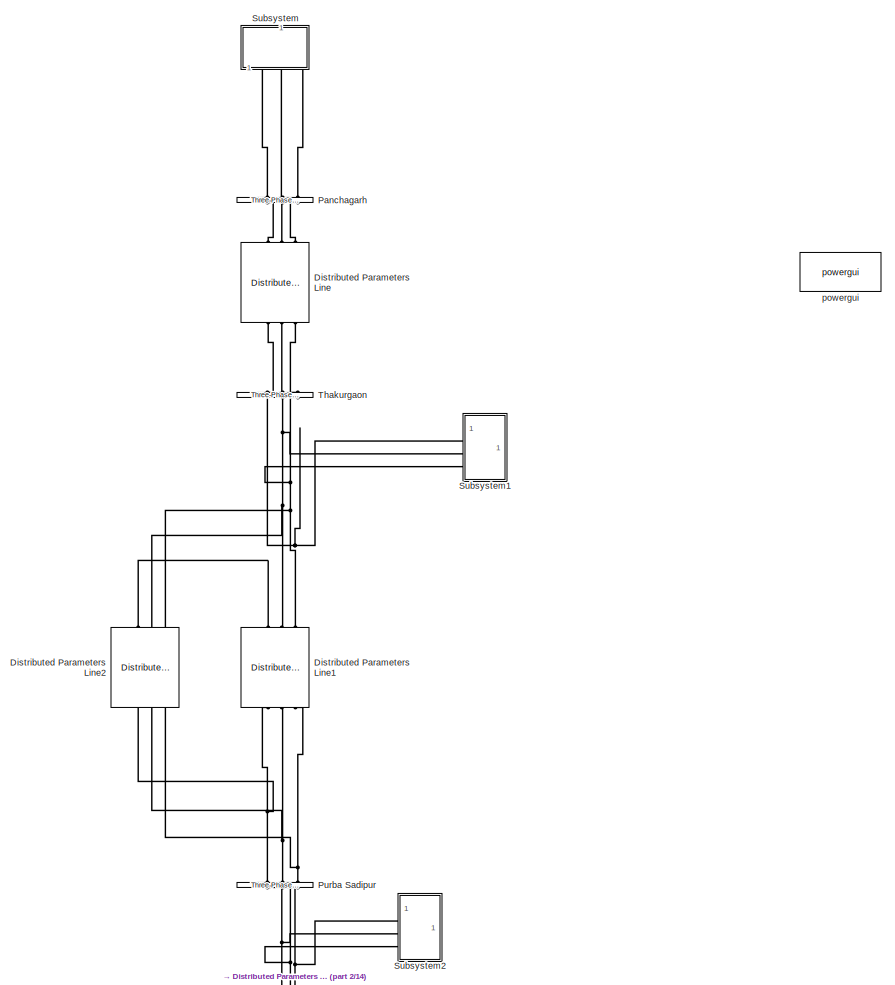
[diagram: root canvas - part 1/14, top center region]
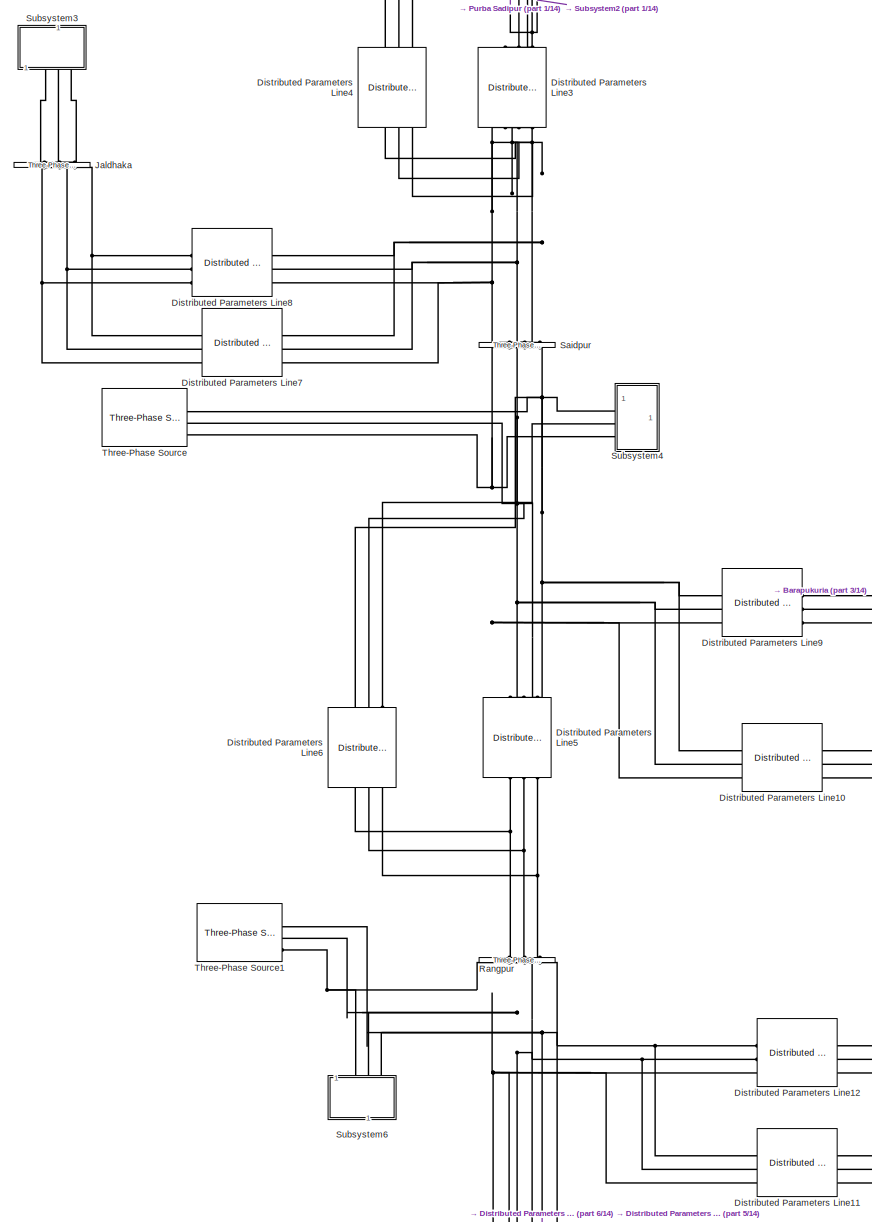
[diagram: root canvas - part 2/14, top center region]
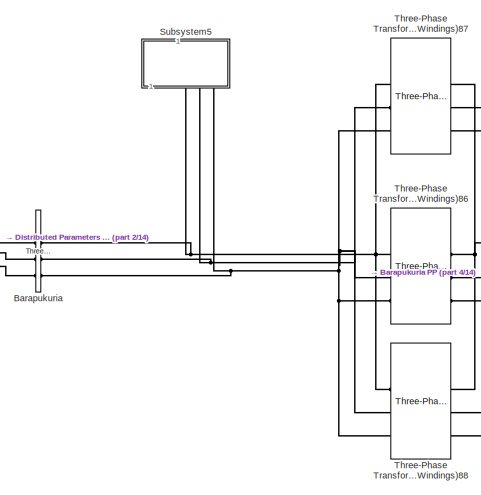
[diagram: root canvas - part 3/14, top center region]
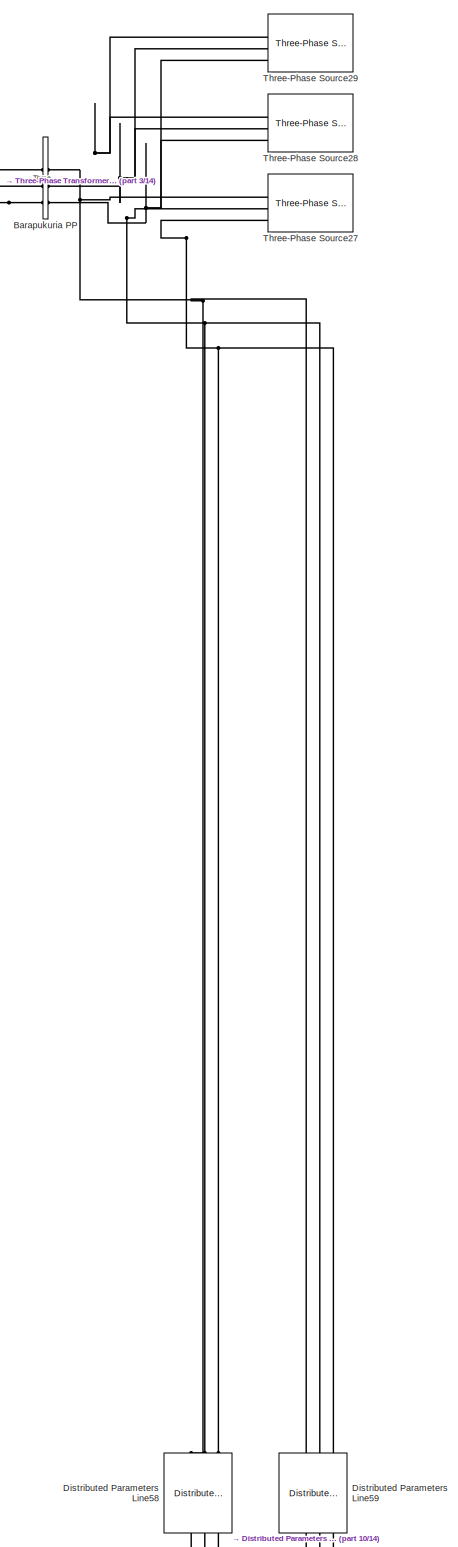
[diagram: root canvas - part 4/14, middle right region]
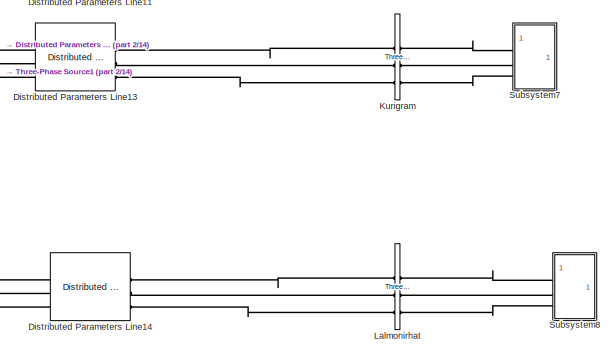
[diagram: root canvas - part 5/14, central region]
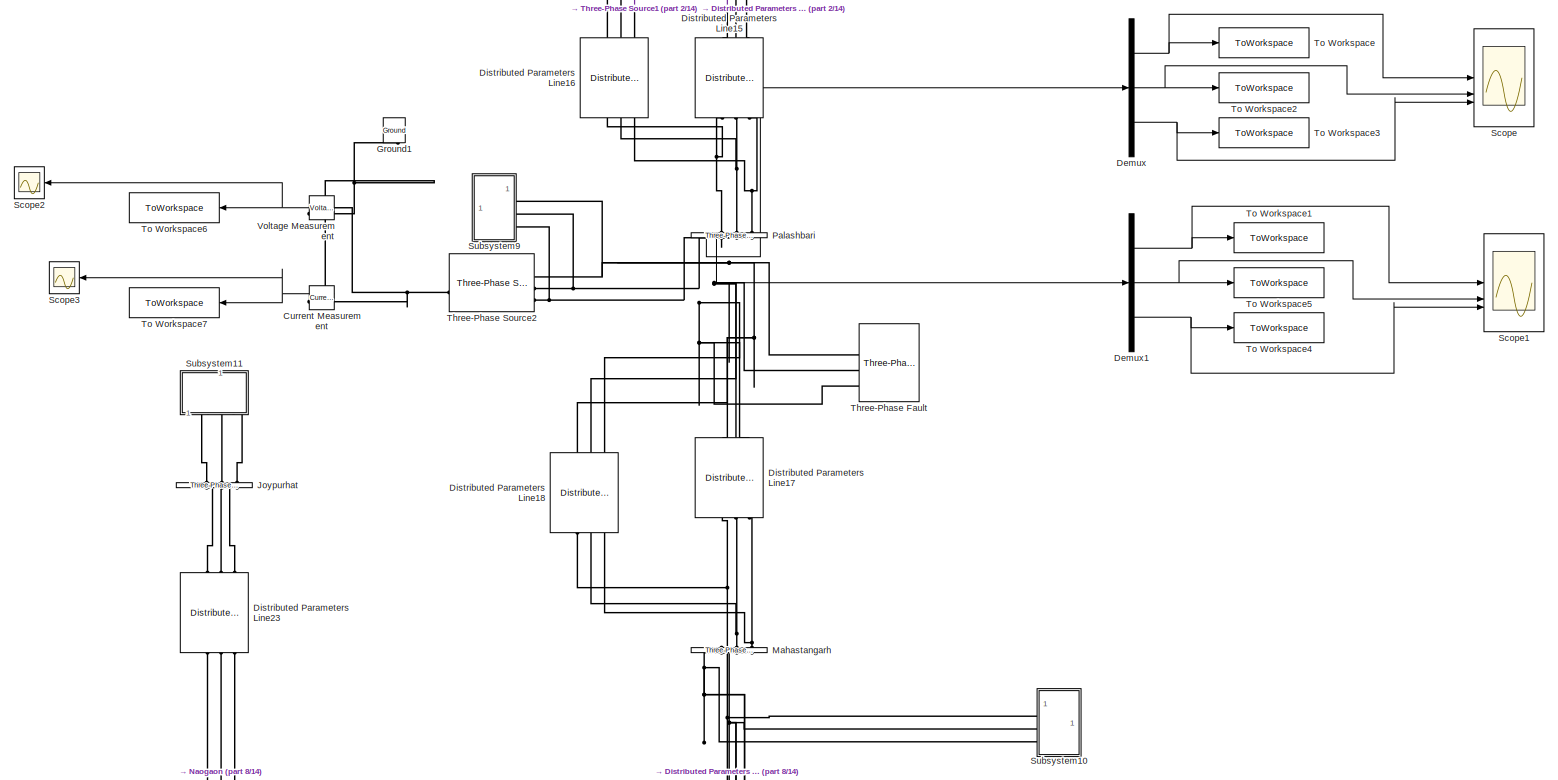
[diagram: root canvas - part 6/14, central region]
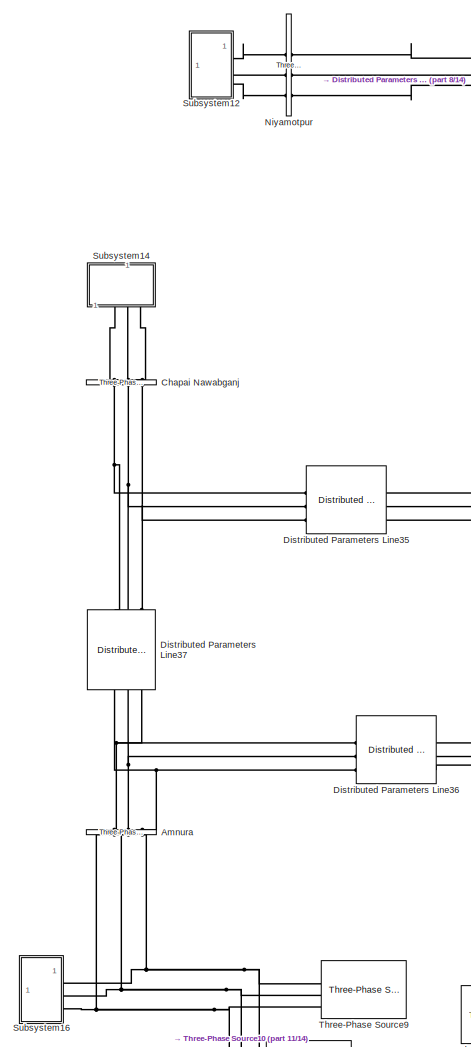
[diagram: root canvas - part 7/14, middle left region]
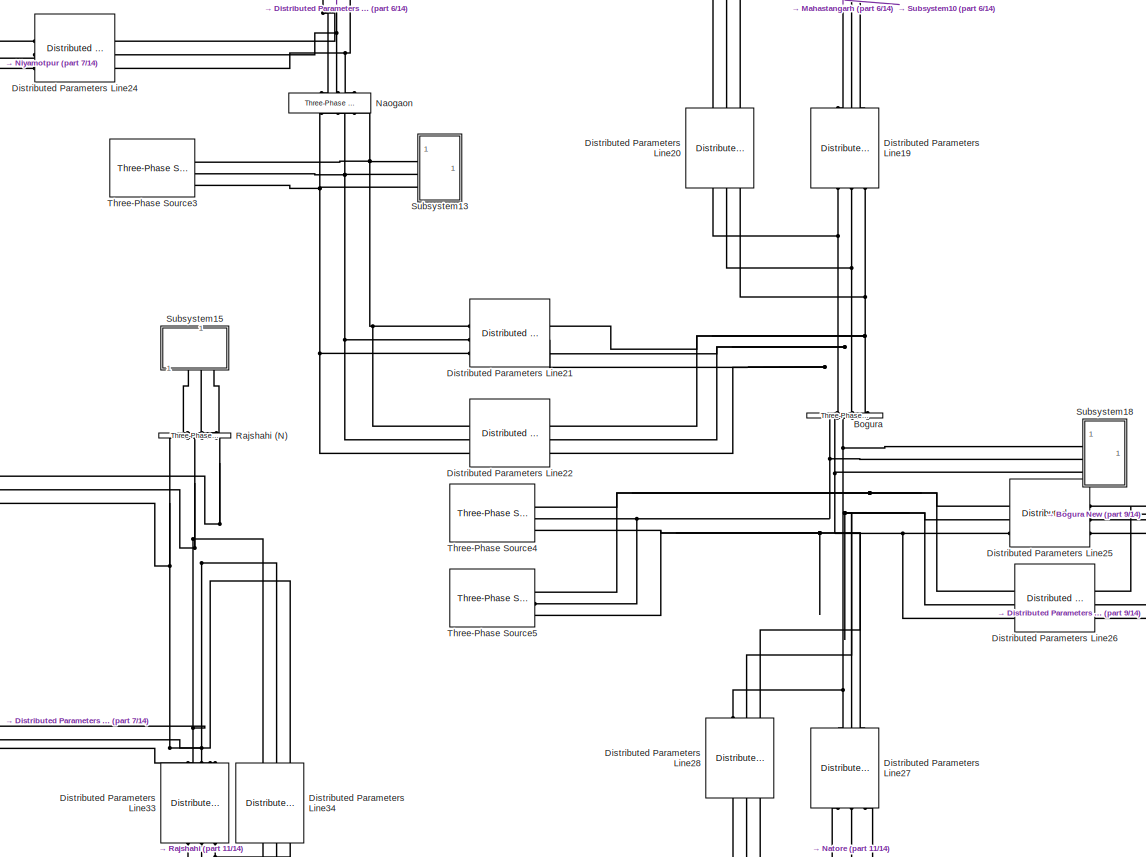
[diagram: root canvas - part 8/14, middle left region]
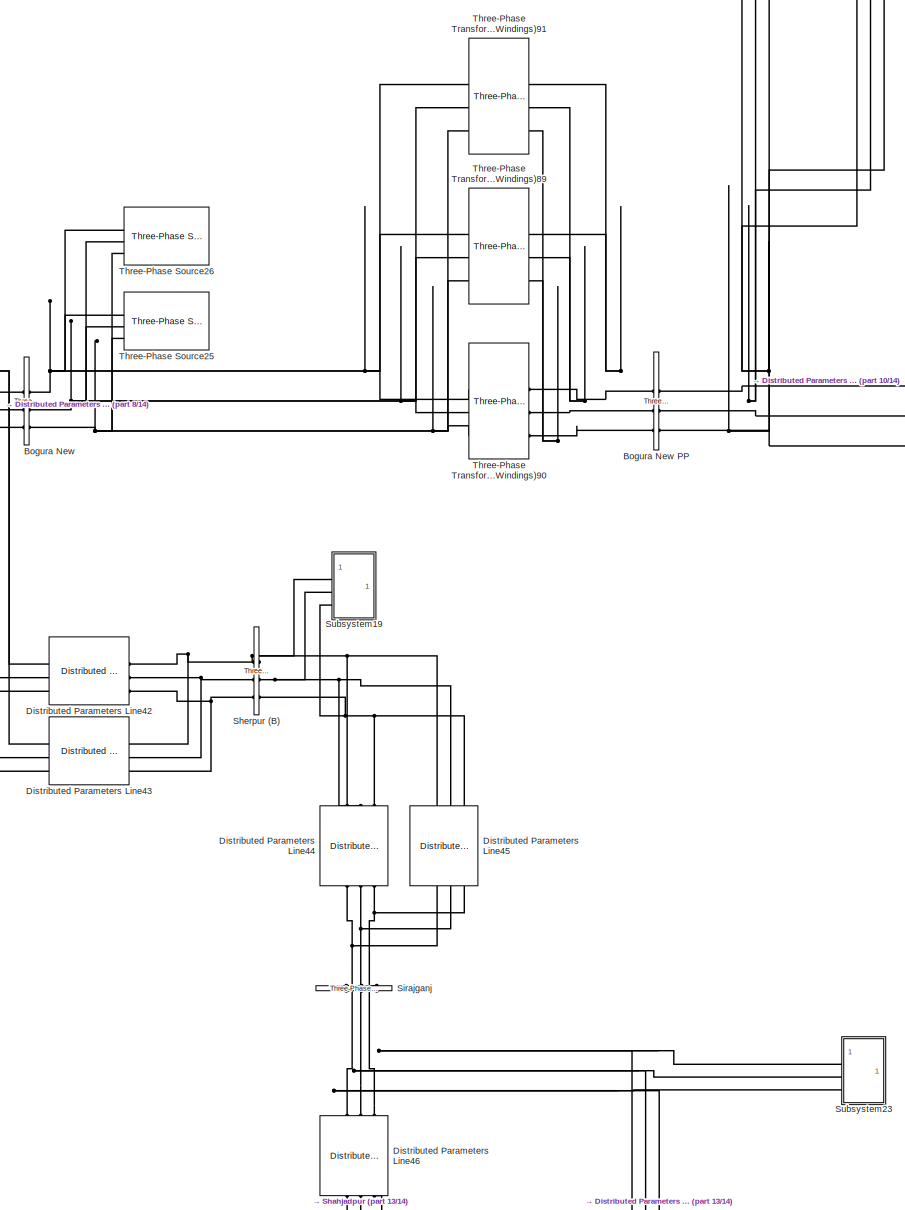
[diagram: root canvas - part 9/14, middle right region]
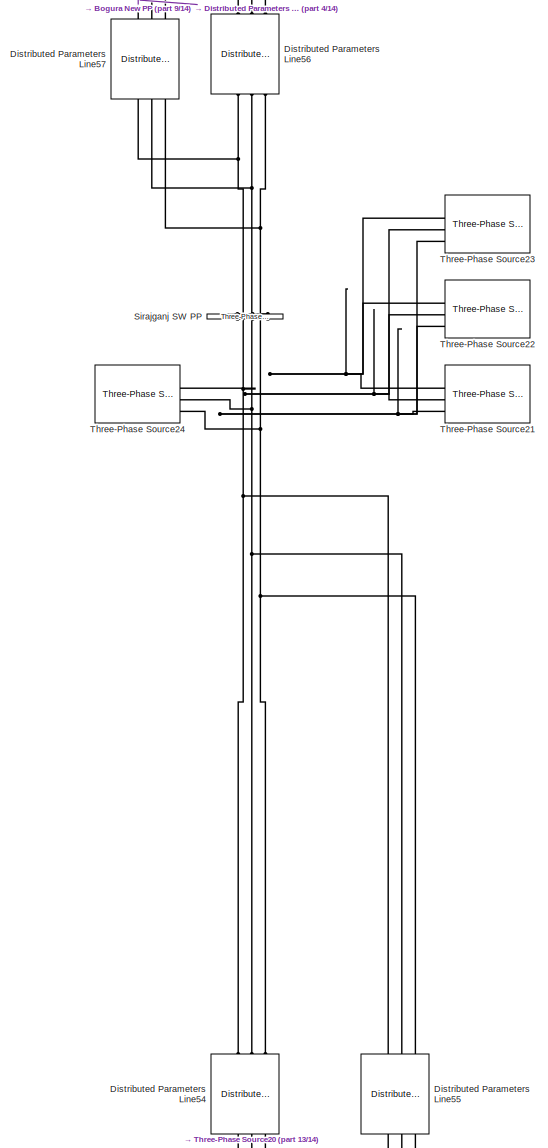
[diagram: root canvas - part 10/14, bottom right region]
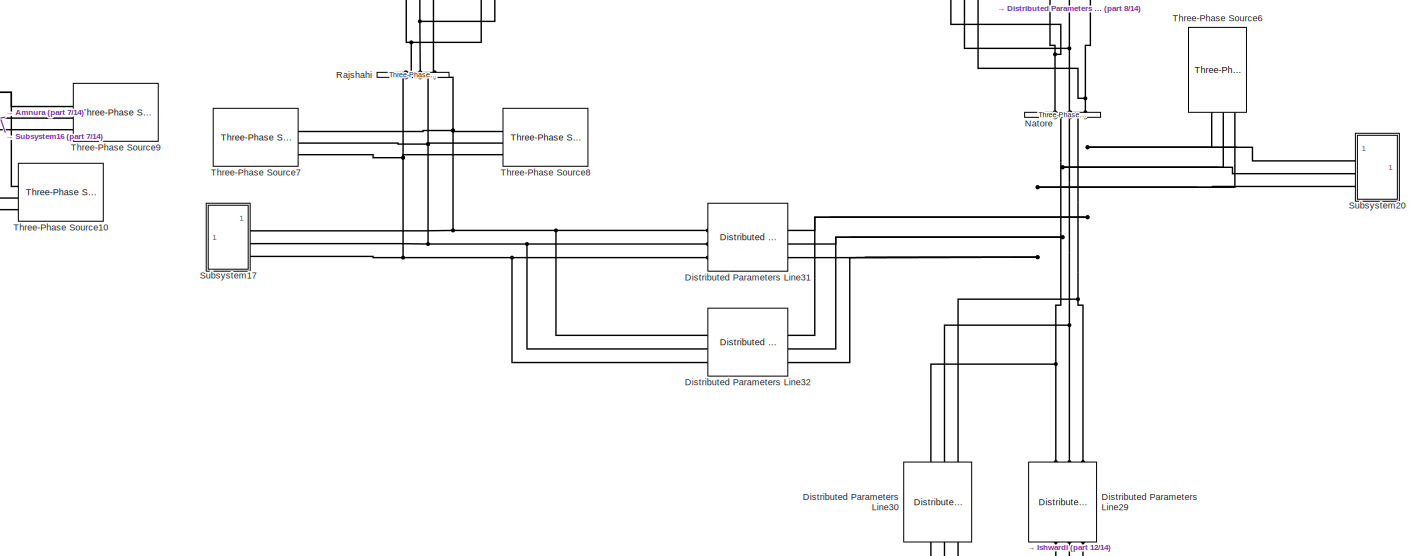
[diagram: root canvas - part 11/14, bottom left region]
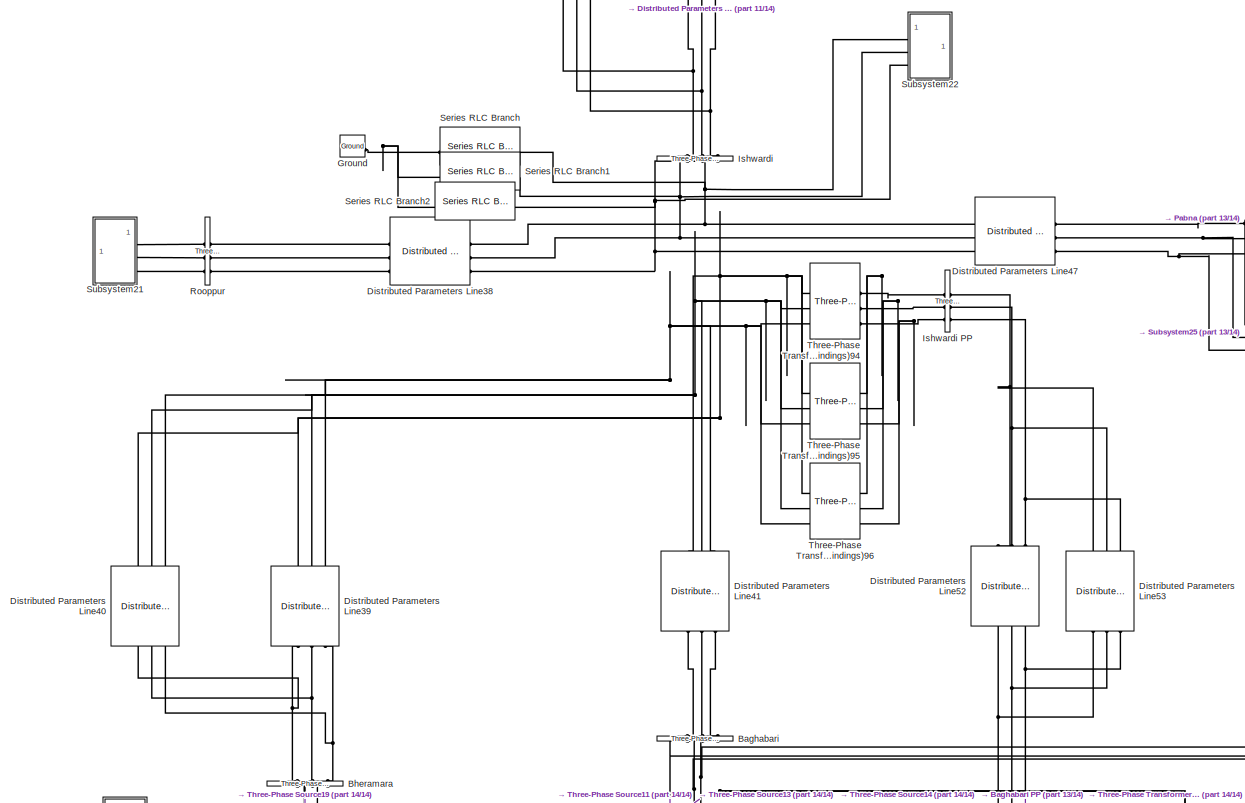
[diagram: root canvas - part 12/14, bottom center region]
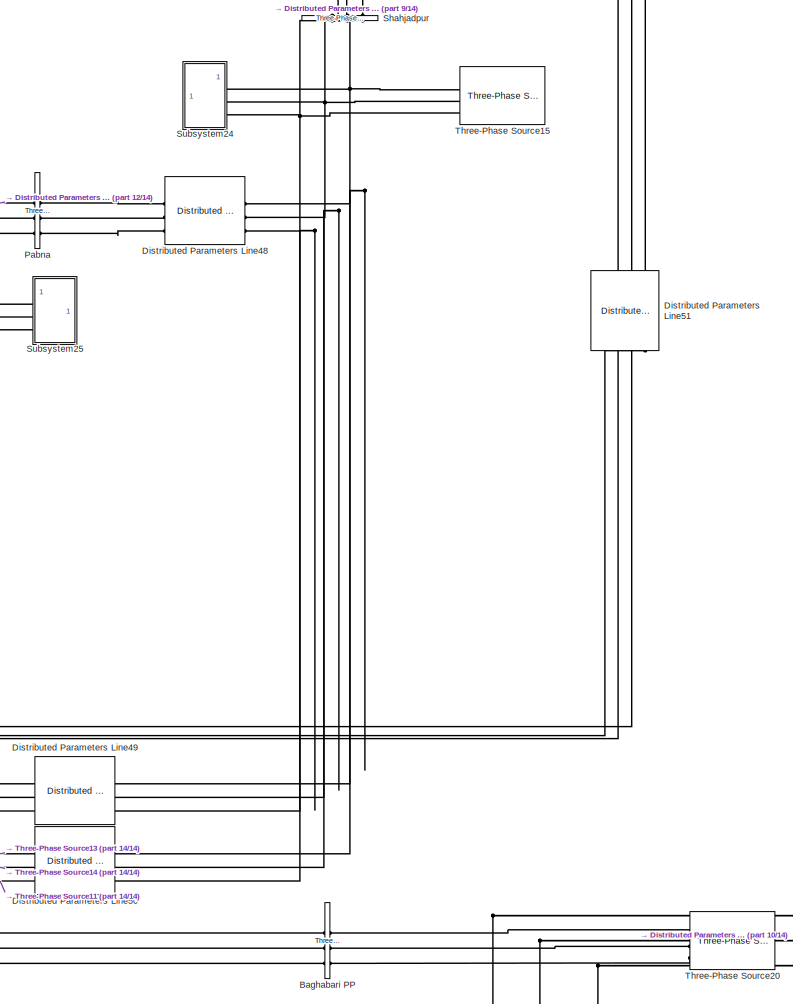
[diagram: root canvas - part 13/14, bottom right region]
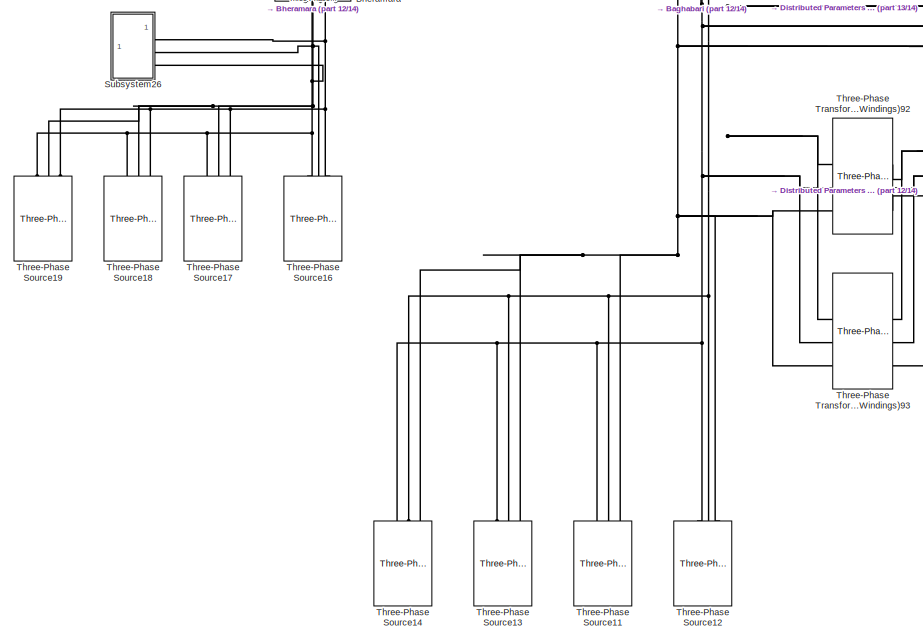
[diagram: root canvas - part 14/14, bottom left region]
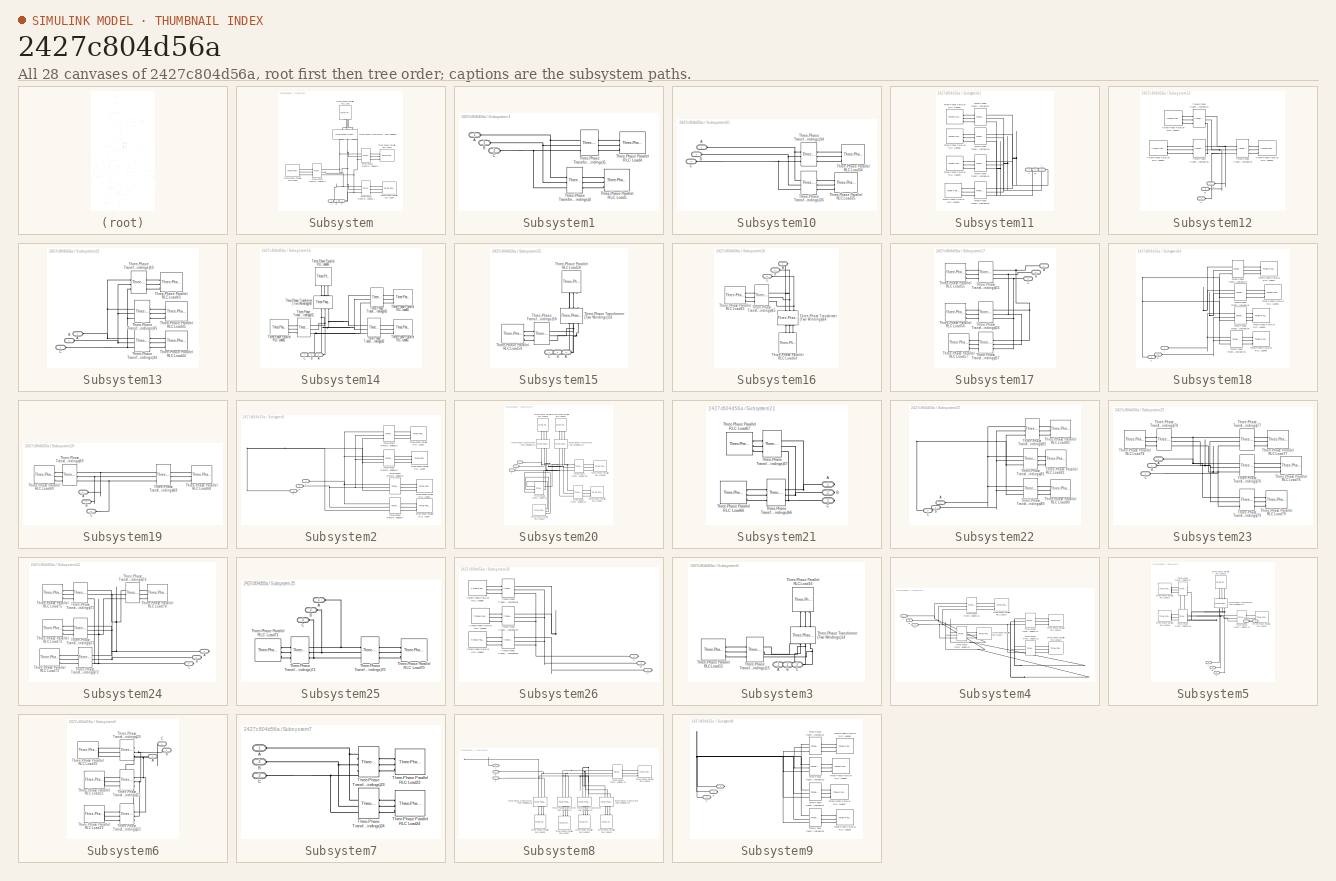
[diagram: thumbnail index - all 28 canvases of the model, root first then tree order]
MODEL slx_2427c804d56a
KIND model
CONFIG AbsTol = auto
CONFIG EnableMultiTasking = off
CONFIG FixedStep = auto
CONFIG MaxStep = auto
CONFIG MinStep = auto
CONFIG RelTol = 1e-3
CONFIG SampleTimeConstraint = Unconstrained
CONFIG SolverName = VariableStepAuto
CONFIG StartTime = 0.0
CONFIG StopTime = 0.05
BLOCK [Reference] Amnura  REF=spsThreePhaseVIMeasurementLib/Three-Phase
V-I Measurement
  LibrarySourceBlock = sps_lib/Sensors and Measurements/Three-Phase\nV-I Measurement
  NameLocation = right
  SourceBlock = spsThreePhaseVIMeasurementLib/Three-Phase\nV-I Measurement
  SourceType = Three-Phase VI Measurement
BLOCK [Reference] Baghabari  REF=spsThreePhaseVIMeasurementLib/Three-Phase
V-I Measurement
  LibrarySourceBlock = sps_lib/Sensors and Measurements/Three-Phase\nV-I Measurement
  NameLocation = left
  SourceBlock = spsThreePhaseVIMeasurementLib/Three-Phase\nV-I Measurement
  SourceType = Three-Phase VI Measurement
BLOCK [Reference] Baghabari PP  REF=spsThreePhaseVIMeasurementLib/Three-Phase
V-I Measurement
  LibrarySourceBlock = sps_lib/Sensors and Measurements/Three-Phase\nV-I Measurement
  SourceBlock = spsThreePhaseVIMeasurementLib/Three-Phase\nV-I Measurement
  SourceType = Three-Phase VI Measurement
BLOCK [Reference] Barapukuria  REF=spsThreePhaseVIMeasurementLib/Three-Phase
V-I Measurement
  LibrarySourceBlock = sps_lib/Sensors and Measurements/Three-Phase\nV-I Measurement
  NameLocation = top
  SourceBlock = spsThreePhaseVIMeasurementLib/Three-Phase\nV-I Measurement
  SourceType = Three-Phase VI Measurement
BLOCK [Reference] Barapukuria PP  REF=spsThreePhaseVIMeasurementLib/Three-Phase
V-I Measurement
  LibrarySourceBlock = sps_lib/Sensors and Measurements/Three-Phase\nV-I Measurement
  NameLocation = top
  SourceBlock = spsThreePhaseVIMeasurementLib/Three-Phase\nV-I Measurement
  SourceType = Three-Phase VI Measurement
BLOCK [Reference] Bheramara  REF=spsThreePhaseVIMeasurementLib/Three-Phase
V-I Measurement
  LibrarySourceBlock = sps_lib/Sensors and Measurements/Three-Phase\nV-I Measurement
  NameLocation = left
  SourceBlock = spsThreePhaseVIMeasurementLib/Three-Phase\nV-I Measurement
  SourceType = Three-Phase VI Measurement
BLOCK [Reference] Bogura  REF=spsThreePhaseVIMeasurementLib/Three-Phase
V-I Measurement
  LibrarySourceBlock = sps_lib/Sensors and Measurements/Three-Phase\nV-I Measurement
  NameLocation = left
  SourceBlock = spsThreePhaseVIMeasurementLib/Three-Phase\nV-I Measurement
  SourceType = Three-Phase VI Measurement
BLOCK [Reference] Bogura New  REF=spsThreePhaseVIMeasurementLib/Three-Phase
V-I Measurement
  LibrarySourceBlock = sps_lib/Sensors and Measurements/Three-Phase\nV-I Measurement
  SourceBlock = spsThreePhaseVIMeasurementLib/Three-Phase\nV-I Measurement
  SourceType = Three-Phase VI Measurement
BLOCK [Reference] Bogura New PP  REF=spsThreePhaseVIMeasurementLib/Three-Phase
V-I Measurement
  LibrarySourceBlock = sps_lib/Sensors and Measurements/Three-Phase\nV-I Measurement
  SourceBlock = spsThreePhaseVIMeasurementLib/Three-Phase\nV-I Measurement
  SourceType = Three-Phase VI Measurement
BLOCK [Reference] Chapai Nawabganj  REF=spsThreePhaseVIMeasurementLib/Three-Phase
V-I Measurement
  LibrarySourceBlock = sps_lib/Sensors and Measurements/Three-Phase\nV-I Measurement
  NameLocation = left
  SourceBlock = spsThreePhaseVIMeasurementLib/Three-Phase\nV-I Measurement
  SourceType = Three-Phase VI Measurement
BLOCK [Reference] Current Measurement  REF=spsCurrentMeasurementLib/Current Measurement
  LibrarySourceBlock = sps_lib/Sensors and Measurements/Current Measurement
  NameLocation = top
  SourceBlock = spsCurrentMeasurementLib/Current Measurement
  SourceType = Current Measurement
  UserDataPersistent = on
BLOCK [Demux] Demux
  Outputs = 3
BLOCK [Demux] Demux1
  Outputs = 3
BLOCK [Reference] Distributed Parameters Line  REF=spsDistributedParametersLineLib/Distributed Parameters Line
  LibrarySourceBlock = sps_lib/Power Grid Elements/Distributed Parameters Line
  NameLocation = left
  SourceBlock = spsDistributedParametersLineLib/Distributed Parameters Line
  SourceType = Distributed Parameters Line
BLOCK [Reference] Distributed Parameters Line1  REF=spsDistributedParametersLineLib/Distributed Parameters Line
  LibrarySourceBlock = sps_lib/Power Grid Elements/Distributed Parameters Line
  NameLocation = left
  SourceBlock = spsDistributedParametersLineLib/Distributed Parameters Line
  SourceType = Distributed Parameters Line
BLOCK [Reference] Distributed Parameters Line10  REF=spsDistributedParametersLineLib/Distributed Parameters Line
  LibrarySourceBlock = sps_lib/Power Grid Elements/Distributed Parameters Line
  SourceBlock = spsDistributedParametersLineLib/Distributed Parameters Line
  SourceType = Distributed Parameters Line
BLOCK [Reference] Distributed Parameters Line11  REF=spsDistributedParametersLineLib/Distributed Parameters Line
  LibrarySourceBlock = sps_lib/Power Grid Elements/Distributed Parameters Line
  SourceBlock = spsDistributedParametersLineLib/Distributed Parameters Line
  SourceType = Distributed Parameters Line
BLOCK [Reference] Distributed Parameters Line12  REF=spsDistributedParametersLineLib/Distributed Parameters Line
  LibrarySourceBlock = sps_lib/Power Grid Elements/Distributed Parameters Line
  SourceBlock = spsDistributedParametersLineLib/Distributed Parameters Line
  SourceType = Distributed Parameters Line
BLOCK [Reference] Distributed Parameters Line13  REF=spsDistributedParametersLineLib/Distributed Parameters Line
  LibrarySourceBlock = sps_lib/Power Grid Elements/Distributed Parameters Line
  SourceBlock = spsDistributedParametersLineLib/Distributed Parameters Line
  SourceType = Distributed Parameters Line
BLOCK [Reference] Distributed Parameters Line14  REF=spsDistributedParametersLineLib/Distributed Parameters Line
  LibrarySourceBlock = sps_lib/Power Grid Elements/Distributed Parameters Line
  SourceBlock = spsDistributedParametersLineLib/Distributed Parameters Line
  SourceType = Distributed Parameters Line
BLOCK [Reference] Distributed Parameters Line15  REF=spsDistributedParametersLineLib/Distributed Parameters Line
  LibrarySourceBlock = sps_lib/Power Grid Elements/Distributed Parameters Line
  NameLocation = left
  SourceBlock = spsDistributedParametersLineLib/Distributed Parameters Line
  SourceType = Distributed Parameters Line
BLOCK [Reference] Distributed Parameters Line16  REF=spsDistributedParametersLineLib/Distributed Parameters Line
  LibrarySourceBlock = sps_lib/Power Grid Elements/Distributed Parameters Line
  NameLocation = left
  SourceBlock = spsDistributedParametersLineLib/Distributed Parameters Line
  SourceType = Distributed Parameters Line
BLOCK [Reference] Distributed Parameters Line17  REF=spsDistributedParametersLineLib/Distributed Parameters Line
  LibrarySourceBlock = sps_lib/Power Grid Elements/Distributed Parameters Line
  NameLocation = left
  SourceBlock = spsDistributedParametersLineLib/Distributed Parameters Line
  SourceType = Distributed Parameters Line
BLOCK [Reference] Distributed Parameters Line18  REF=spsDistributedParametersLineLib/Distributed Parameters Line
  LibrarySourceBlock = sps_lib/Power Grid Elements/Distributed Parameters Line
  NameLocation = left
  SourceBlock = spsDistributedParametersLineLib/Distributed Parameters Line
  SourceType = Distributed Parameters Line
BLOCK [Reference] Distributed Parameters Line19  REF=spsDistributedParametersLineLib/Distributed Parameters Line
  LibrarySourceBlock = sps_lib/Power Grid Elements/Distributed Parameters Line
  NameLocation = left
  SourceBlock = spsDistributedParametersLineLib/Distributed Parameters Line
  SourceType = Distributed Parameters Line
BLOCK [Reference] Distributed Parameters Line2  REF=spsDistributedParametersLineLib/Distributed Parameters Line
  LibrarySourceBlock = sps_lib/Power Grid Elements/Distributed Parameters Line
  NameLocation = left
  SourceBlock = spsDistributedParametersLineLib/Distributed Parameters Line
  SourceType = Distributed Parameters Line
BLOCK [Reference] Distributed Parameters Line20  REF=spsDistributedParametersLineLib/Distributed Parameters Line
  LibrarySourceBlock = sps_lib/Power Grid Elements/Distributed Parameters Line
  NameLocation = left
  SourceBlock = spsDistributedParametersLineLib/Distributed Parameters Line
  SourceType = Distributed Parameters Line
BLOCK [Reference] Distributed Parameters Line21  REF=spsDistributedParametersLineLib/Distributed Parameters Line
  LibrarySourceBlock = sps_lib/Power Grid Elements/Distributed Parameters Line
  SourceBlock = spsDistributedParametersLineLib/Distributed Parameters Line
  SourceType = Distributed Parameters Line
BLOCK [Reference] Distributed Parameters Line22  REF=spsDistributedParametersLineLib/Distributed Parameters Line
  LibrarySourceBlock = sps_lib/Power Grid Elements/Distributed Parameters Line
  SourceBlock = spsDistributedParametersLineLib/Distributed Parameters Line
  SourceType = Distributed Parameters Line
BLOCK [Reference] Distributed Parameters Line23  REF=spsDistributedParametersLineLib/Distributed Parameters Line
  LibrarySourceBlock = sps_lib/Power Grid Elements/Distributed Parameters Line
  NameLocation = left
  SourceBlock = spsDistributedParametersLineLib/Distributed Parameters Line
  SourceType = Distributed Parameters Line
BLOCK [Reference] Distributed Parameters Line24  REF=spsDistributedParametersLineLib/Distributed Parameters Line
  LibrarySourceBlock = sps_lib/Power Grid Elements/Distributed Parameters Line
  SourceBlock = spsDistributedParametersLineLib/Distributed Parameters Line
  SourceType = Distributed Parameters Line
BLOCK [Reference] Distributed Parameters Line25  REF=spsDistributedParametersLineLib/Distributed Parameters Line
  LibrarySourceBlock = sps_lib/Power Grid Elements/Distributed Parameters Line
  SourceBlock = spsDistributedParametersLineLib/Distributed Parameters Line
  SourceType = Distributed Parameters Line
BLOCK [Reference] Distributed Parameters Line26  REF=spsDistributedParametersLineLib/Distributed Parameters Line
  LibrarySourceBlock = sps_lib/Power Grid Elements/Distributed Parameters Line
  SourceBlock = spsDistributedParametersLineLib/Distributed Parameters Line
  SourceType = Distributed Parameters Line
BLOCK [Reference] Distributed Parameters Line27  REF=spsDistributedParametersLineLib/Distributed Parameters Line
  LibrarySourceBlock = sps_lib/Power Grid Elements/Distributed Parameters Line
  NameLocation = left
  SourceBlock = spsDistributedParametersLineLib/Distributed Parameters Line
  SourceType = Distributed Parameters Line
BLOCK [Reference] Distributed Parameters Line28  REF=spsDistributedParametersLineLib/Distributed Parameters Line
  LibrarySourceBlock = sps_lib/Power Grid Elements/Distributed Parameters Line
  NameLocation = left
  SourceBlock = spsDistributedParametersLineLib/Distributed Parameters Line
  SourceType = Distributed Parameters Line
BLOCK [Reference] Distributed Parameters Line29  REF=spsDistributedParametersLineLib/Distributed Parameters Line
  LibrarySourceBlock = sps_lib/Power Grid Elements/Distributed Parameters Line
  NameLocation = left
  SourceBlock = spsDistributedParametersLineLib/Distributed Parameters Line
  SourceType = Distributed Parameters Line
BLOCK [Reference] Distributed Parameters Line3  REF=spsDistributedParametersLineLib/Distributed Parameters Line
  LibrarySourceBlock = sps_lib/Power Grid Elements/Distributed Parameters Line
  NameLocation = left
  SourceBlock = spsDistributedParametersLineLib/Distributed Parameters Line
  SourceType = Distributed Parameters Line
BLOCK [Reference] Distributed Parameters Line30  REF=spsDistributedParametersLineLib/Distributed Parameters Line
  LibrarySourceBlock = sps_lib/Power Grid Elements/Distributed Parameters Line
  NameLocation = left
  SourceBlock = spsDistributedParametersLineLib/Distributed Parameters Line
  SourceType = Distributed Parameters Line
BLOCK [Reference] Distributed Parameters Line31  REF=spsDistributedParametersLineLib/Distributed Parameters Line
  LibrarySourceBlock = sps_lib/Power Grid Elements/Distributed Parameters Line
  SourceBlock = spsDistributedParametersLineLib/Distributed Parameters Line
  SourceType = Distributed Parameters Line
BLOCK [Reference] Distributed Parameters Line32  REF=spsDistributedParametersLineLib/Distributed Parameters Line
  LibrarySourceBlock = sps_lib/Power Grid Elements/Distributed Parameters Line
  SourceBlock = spsDistributedParametersLineLib/Distributed Parameters Line
  SourceType = Distributed Parameters Line
BLOCK [Reference] Distributed Parameters Line33  REF=spsDistributedParametersLineLib/Distributed Parameters Line
  LibrarySourceBlock = sps_lib/Power Grid Elements/Distributed Parameters Line
  NameLocation = left
  SourceBlock = spsDistributedParametersLineLib/Distributed Parameters Line
  SourceType = Distributed Parameters Line
BLOCK [Reference] Distributed Parameters Line34  REF=spsDistributedParametersLineLib/Distributed Parameters Line
  LibrarySourceBlock = sps_lib/Power Grid Elements/Distributed Parameters Line
  NameLocation = left
  SourceBlock = spsDistributedParametersLineLib/Distributed Parameters Line
  SourceType = Distributed Parameters Line
BLOCK [Reference] Distributed Parameters Line35  REF=spsDistributedParametersLineLib/Distributed Parameters Line
  LibrarySourceBlock = sps_lib/Power Grid Elements/Distributed Parameters Line
  SourceBlock = spsDistributedParametersLineLib/Distributed Parameters Line
  SourceType = Distributed Parameters Line
BLOCK [Reference] Distributed Parameters Line36  REF=spsDistributedParametersLineLib/Distributed Parameters Line
  LibrarySourceBlock = sps_lib/Power Grid Elements/Distributed Parameters Line
  SourceBlock = spsDistributedParametersLineLib/Distributed Parameters Line
  SourceType = Distributed Parameters Line
BLOCK [Reference] Distributed Parameters Line37  REF=spsDistributedParametersLineLib/Distributed Parameters Line
  LibrarySourceBlock = sps_lib/Power Grid Elements/Distributed Parameters Line
  NameLocation = left
  SourceBlock = spsDistributedParametersLineLib/Distributed Parameters Line
  SourceType = Distributed Parameters Line
BLOCK [Reference] Distributed Parameters Line38  REF=spsDistributedParametersLineLib/Distributed Parameters Line
  LibrarySourceBlock = sps_lib/Power Grid Elements/Distributed Parameters Line
  SourceBlock = spsDistributedParametersLineLib/Distributed Parameters Line
  SourceType = Distributed Parameters Line
BLOCK [Reference] Distributed Parameters Line39  REF=spsDistributedParametersLineLib/Distributed Parameters Line
  LibrarySourceBlock = sps_lib/Power Grid Elements/Distributed Parameters Line
  NameLocation = left
  SourceBlock = spsDistributedParametersLineLib/Distributed Parameters Line
  SourceType = Distributed Parameters Line
BLOCK [Reference] Distributed Parameters Line4  REF=spsDistributedParametersLineLib/Distributed Parameters Line
  LibrarySourceBlock = sps_lib/Power Grid Elements/Distributed Parameters Line
  NameLocation = left
  SourceBlock = spsDistributedParametersLineLib/Distributed Parameters Line
  SourceType = Distributed Parameters Line
BLOCK [Reference] Distributed Parameters Line40  REF=spsDistributedParametersLineLib/Distributed Parameters Line
  LibrarySourceBlock = sps_lib/Power Grid Elements/Distributed Parameters Line
  NameLocation = left
  SourceBlock = spsDistributedParametersLineLib/Distributed Parameters Line
  SourceType = Distributed Parameters Line
BLOCK [Reference] Distributed Parameters Line41  REF=spsDistributedParametersLineLib/Distributed Parameters Line
  LibrarySourceBlock = sps_lib/Power Grid Elements/Distributed Parameters Line
  NameLocation = left
  SourceBlock = spsDistributedParametersLineLib/Distributed Parameters Line
  SourceType = Distributed Parameters Line
BLOCK [Reference] Distributed Parameters Line42  REF=spsDistributedParametersLineLib/Distributed Parameters Line
  LibrarySourceBlock = sps_lib/Power Grid Elements/Distributed Parameters Line
  SourceBlock = spsDistributedParametersLineLib/Distributed Parameters Line
  SourceType = Distributed Parameters Line
BLOCK [Reference] Distributed Parameters Line43  REF=spsDistributedParametersLineLib/Distributed Parameters Line
  LibrarySourceBlock = sps_lib/Power Grid Elements/Distributed Parameters Line
  SourceBlock = spsDistributedParametersLineLib/Distributed Parameters Line
  SourceType = Distributed Parameters Line
BLOCK [Reference] Distributed Parameters Line44  REF=spsDistributedParametersLineLib/Distributed Parameters Line
  LibrarySourceBlock = sps_lib/Power Grid Elements/Distributed Parameters Line
  NameLocation = left
  SourceBlock = spsDistributedParametersLineLib/Distributed Parameters Line
  SourceType = Distributed Parameters Line
BLOCK [Reference] Distributed Parameters Line45  REF=spsDistributedParametersLineLib/Distributed Parameters Line
  LibrarySourceBlock = sps_lib/Power Grid Elements/Distributed Parameters Line
  NameLocation = left
  SourceBlock = spsDistributedParametersLineLib/Distributed Parameters Line
  SourceType = Distributed Parameters Line
BLOCK [Reference] Distributed Parameters Line46  REF=spsDistributedParametersLineLib/Distributed Parameters Line
  LibrarySourceBlock = sps_lib/Power Grid Elements/Distributed Parameters Line
  NameLocation = left
  SourceBlock = spsDistributedParametersLineLib/Distributed Parameters Line
  SourceType = Distributed Parameters Line
BLOCK [Reference] Distributed Parameters Line47  REF=spsDistributedParametersLineLib/Distributed Parameters Line
  LibrarySourceBlock = sps_lib/Power Grid Elements/Distributed Parameters Line
  SourceBlock = spsDistributedParametersLineLib/Distributed Parameters Line
  SourceType = Distributed Parameters Line
BLOCK [Reference] Distributed Parameters Line48  REF=spsDistributedParametersLineLib/Distributed Parameters Line
  LibrarySourceBlock = sps_lib/Power Grid Elements/Distributed Parameters Line
  SourceBlock = spsDistributedParametersLineLib/Distributed Parameters Line
  SourceType = Distributed Parameters Line
BLOCK [Reference] Distributed Parameters Line49  REF=spsDistributedParametersLineLib/Distributed Parameters Line
  LibrarySourceBlock = sps_lib/Power Grid Elements/Distributed Parameters Line
  SourceBlock = spsDistributedParametersLineLib/Distributed Parameters Line
  SourceType = Distributed Parameters Line
BLOCK [Reference] Distributed Parameters Line5  REF=spsDistributedParametersLineLib/Distributed Parameters Line
  LibrarySourceBlock = sps_lib/Power Grid Elements/Distributed Parameters Line
  NameLocation = left
  SourceBlock = spsDistributedParametersLineLib/Distributed Parameters Line
  SourceType = Distributed Parameters Line
BLOCK [Reference] Distributed Parameters Line50  REF=spsDistributedParametersLineLib/Distributed Parameters Line
  LibrarySourceBlock = sps_lib/Power Grid Elements/Distributed Parameters Line
  SourceBlock = spsDistributedParametersLineLib/Distributed Parameters Line
  SourceType = Distributed Parameters Line
BLOCK [Reference] Distributed Parameters Line51  REF=spsDistributedParametersLineLib/Distributed Parameters Line
  LibrarySourceBlock = sps_lib/Power Grid Elements/Distributed Parameters Line
  NameLocation = left
  SourceBlock = spsDistributedParametersLineLib/Distributed Parameters Line
  SourceType = Distributed Parameters Line
BLOCK [Reference] Distributed Parameters Line52  REF=spsDistributedParametersLineLib/Distributed Parameters Line
  LibrarySourceBlock = sps_lib/Power Grid Elements/Distributed Parameters Line
  NameLocation = left
  SourceBlock = spsDistributedParametersLineLib/Distributed Parameters Line
  SourceType = Distributed Parameters Line
BLOCK [Reference] Distributed Parameters Line53  REF=spsDistributedParametersLineLib/Distributed Parameters Line
  LibrarySourceBlock = sps_lib/Power Grid Elements/Distributed Parameters Line
  NameLocation = left
  SourceBlock = spsDistributedParametersLineLib/Distributed Parameters Line
  SourceType = Distributed Parameters Line
BLOCK [Reference] Distributed Parameters Line54  REF=spsDistributedParametersLineLib/Distributed Parameters Line
  LibrarySourceBlock = sps_lib/Power Grid Elements/Distributed Parameters Line
  NameLocation = left
  SourceBlock = spsDistributedParametersLineLib/Distributed Parameters Line
  SourceType = Distributed Parameters Line
BLOCK [Reference] Distributed Parameters Line55  REF=spsDistributedParametersLineLib/Distributed Parameters Line
  LibrarySourceBlock = sps_lib/Power Grid Elements/Distributed Parameters Line
  NameLocation = left
  SourceBlock = spsDistributedParametersLineLib/Distributed Parameters Line
  SourceType = Distributed Parameters Line
BLOCK [Reference] Distributed Parameters Line56  REF=spsDistributedParametersLineLib/Distributed Parameters Line
  LibrarySourceBlock = sps_lib/Power Grid Elements/Distributed Parameters Line
  NameLocation = left
  SourceBlock = spsDistributedParametersLineLib/Distributed Parameters Line
  SourceType = Distributed Parameters Line
BLOCK [Reference] Distributed Parameters Line57  REF=spsDistributedParametersLineLib/Distributed Parameters Line
  LibrarySourceBlock = sps_lib/Power Grid Elements/Distributed Parameters Line
  NameLocation = left
  SourceBlock = spsDistributedParametersLineLib/Distributed Parameters Line
  SourceType = Distributed Parameters Line
BLOCK [Reference] Distributed Parameters Line58  REF=spsDistributedParametersLineLib/Distributed Parameters Line
  LibrarySourceBlock = sps_lib/Power Grid Elements/Distributed Parameters Line
  NameLocation = left
  SourceBlock = spsDistributedParametersLineLib/Distributed Parameters Line
  SourceType = Distributed Parameters Line
BLOCK [Reference] Distributed Parameters Line59  REF=spsDistributedParametersLineLib/Distributed Parameters Line
  LibrarySourceBlock = sps_lib/Power Grid Elements/Distributed Parameters Line
  NameLocation = left
  SourceBlock = spsDistributedParametersLineLib/Distributed Parameters Line
  SourceType = Distributed Parameters Line
BLOCK [Reference] Distributed Parameters Line6  REF=spsDistributedParametersLineLib/Distributed Parameters Line
  LibrarySourceBlock = sps_lib/Power Grid Elements/Distributed Parameters Line
  NameLocation = left
  SourceBlock = spsDistributedParametersLineLib/Distributed Parameters Line
  SourceType = Distributed Parameters Line
BLOCK [Reference] Distributed Parameters Line7  REF=spsDistributedParametersLineLib/Distributed Parameters Line
  LibrarySourceBlock = sps_lib/Power Grid Elements/Distributed Parameters Line
  SourceBlock = spsDistributedParametersLineLib/Distributed Parameters Line
  SourceType = Distributed Parameters Line
BLOCK [Reference] Distributed Parameters Line8  REF=spsDistributedParametersLineLib/Distributed Parameters Line
  LibrarySourceBlock = sps_lib/Power Grid Elements/Distributed Parameters Line
  SourceBlock = spsDistributedParametersLineLib/Distributed Parameters Line
  SourceType = Distributed Parameters Line
BLOCK [Reference] Distributed Parameters Line9  REF=spsDistributedParametersLineLib/Distributed Parameters Line
  LibrarySourceBlock = sps_lib/Power Grid Elements/Distributed Parameters Line
  SourceBlock = spsDistributedParametersLineLib/Distributed Parameters Line
  SourceType = Distributed Parameters Line
BLOCK [Reference] Ground  REF=spsGroundLib/Ground
  LibrarySourceBlock = sps_lib/Utilities/Ground
  SourceBlock = spsGroundLib/Ground
  SourceType = Ground
BLOCK [Reference] Ground1  REF=spsGroundLib/Ground
  LibrarySourceBlock = sps_lib/Utilities/Ground
  NameLocation = left
  SourceBlock = spsGroundLib/Ground
  SourceType = Ground
BLOCK [Reference] Ishwardi  REF=spsThreePhaseVIMeasurementLib/Three-Phase
V-I Measurement
  LibrarySourceBlock = sps_lib/Sensors and Measurements/Three-Phase\nV-I Measurement
  NameLocation = left
  SourceBlock = spsThreePhaseVIMeasurementLib/Three-Phase\nV-I Measurement
  SourceType = Three-Phase VI Measurement
BLOCK [Reference] Ishwardi PP  REF=spsThreePhaseVIMeasurementLib/Three-Phase
V-I Measurement
  LibrarySourceBlock = sps_lib/Sensors and Measurements/Three-Phase\nV-I Measurement
  SourceBlock = spsThreePhaseVIMeasurementLib/Three-Phase\nV-I Measurement
  SourceType = Three-Phase VI Measurement
BLOCK [Reference] Jaldhaka  REF=spsThreePhaseVIMeasurementLib/Three-Phase
V-I Measurement
  LibrarySourceBlock = sps_lib/Sensors and Measurements/Three-Phase\nV-I Measurement
  NameLocation = left
  SourceBlock = spsThreePhaseVIMeasurementLib/Three-Phase\nV-I Measurement
  SourceType = Three-Phase VI Measurement
BLOCK [Reference] Joypurhat  REF=spsThreePhaseVIMeasurementLib/Three-Phase
V-I Measurement
  LibrarySourceBlock = sps_lib/Sensors and Measurements/Three-Phase\nV-I Measurement
  NameLocation = left
  SourceBlock = spsThreePhaseVIMeasurementLib/Three-Phase\nV-I Measurement
  SourceType = Three-Phase VI Measurement
BLOCK [Reference] Kurigram  REF=spsThreePhaseVIMeasurementLib/Three-Phase
V-I Measurement
  LibrarySourceBlock = sps_lib/Sensors and Measurements/Three-Phase\nV-I Measurement
  SourceBlock = spsThreePhaseVIMeasurementLib/Three-Phase\nV-I Measurement
  SourceType = Three-Phase VI Measurement
BLOCK [Reference] Lalmonirhat  REF=spsThreePhaseVIMeasurementLib/Three-Phase
V-I Measurement
  LibrarySourceBlock = sps_lib/Sensors and Measurements/Three-Phase\nV-I Measurement
  SourceBlock = spsThreePhaseVIMeasurementLib/Three-Phase\nV-I Measurement
  SourceType = Three-Phase VI Measurement
BLOCK [Reference] Mahastangarh  REF=spsThreePhaseVIMeasurementLib/Three-Phase
V-I Measurement
  LibrarySourceBlock = sps_lib/Sensors and Measurements/Three-Phase\nV-I Measurement
  NameLocation = left
  SourceBlock = spsThreePhaseVIMeasurementLib/Three-Phase\nV-I Measurement
  SourceType = Three-Phase VI Measurement
BLOCK [Reference] Naogaon  REF=spsThreePhaseVIMeasurementLib/Three-Phase
V-I Measurement
  LibrarySourceBlock = sps_lib/Sensors and Measurements/Three-Phase\nV-I Measurement
  NameLocation = left
  SourceBlock = spsThreePhaseVIMeasurementLib/Three-Phase\nV-I Measurement
  SourceType = Three-Phase VI Measurement
BLOCK [Reference] Natore  REF=spsThreePhaseVIMeasurementLib/Three-Phase
V-I Measurement
  LibrarySourceBlock = sps_lib/Sensors and Measurements/Three-Phase\nV-I Measurement
  NameLocation = left
  SourceBlock = spsThreePhaseVIMeasurementLib/Three-Phase\nV-I Measurement
  SourceType = Three-Phase VI Measurement
BLOCK [Reference] Niyamotpur  REF=spsThreePhaseVIMeasurementLib/Three-Phase
V-I Measurement
  LibrarySourceBlock = sps_lib/Sensors and Measurements/Three-Phase\nV-I Measurement
  SourceBlock = spsThreePhaseVIMeasurementLib/Three-Phase\nV-I Measurement
  SourceType = Three-Phase VI Measurement
BLOCK [Reference] Pabna  REF=spsThreePhaseVIMeasurementLib/Three-Phase
V-I Measurement
  LibrarySourceBlock = sps_lib/Sensors and Measurements/Three-Phase\nV-I Measurement
  SourceBlock = spsThreePhaseVIMeasurementLib/Three-Phase\nV-I Measurement
  SourceType = Three-Phase VI Measurement
BLOCK [Reference] Palashbari  REF=spsThreePhaseVIMeasurementLib/Three-Phase
V-I Measurement
  LibrarySourceBlock = sps_lib/Sensors and Measurements/Three-Phase\nV-I Measurement
  NameLocation = left
  SourceBlock = spsThreePhaseVIMeasurementLib/Three-Phase\nV-I Measurement
  SourceType = Three-Phase VI Measurement
BLOCK [Reference] Panchagarh  REF=spsThreePhaseVIMeasurementLib/Three-Phase
V-I Measurement
  LibrarySourceBlock = sps_lib/Sensors and Measurements/Three-Phase\nV-I Measurement
  NameLocation = left
  SourceBlock = spsThreePhaseVIMeasurementLib/Three-Phase\nV-I Measurement
  SourceType = Three-Phase VI Measurement
BLOCK [Reference] Purba Sadipur  REF=spsThreePhaseVIMeasurementLib/Three-Phase
V-I Measurement
  LibrarySourceBlock = sps_lib/Sensors and Measurements/Three-Phase\nV-I Measurement
  NameLocation = left
  SourceBlock = spsThreePhaseVIMeasurementLib/Three-Phase\nV-I Measurement
  SourceType = Three-Phase VI Measurement
BLOCK [Reference] Rajshahi  REF=spsThreePhaseVIMeasurementLib/Three-Phase
V-I Measurement
  LibrarySourceBlock = sps_lib/Sensors and Measurements/Three-Phase\nV-I Measurement
  NameLocation = left
  SourceBlock = spsThreePhaseVIMeasurementLib/Three-Phase\nV-I Measurement
  SourceType = Three-Phase VI Measurement
BLOCK [Reference] Rajshahi (N)  REF=spsThreePhaseVIMeasurementLib/Three-Phase
V-I Measurement
  LibrarySourceBlock = sps_lib/Sensors and Measurements/Three-Phase\nV-I Measurement
  NameLocation = left
  SourceBlock = spsThreePhaseVIMeasurementLib/Three-Phase\nV-I Measurement
  SourceType = Three-Phase VI Measurement
BLOCK [Reference] Rangpur  REF=spsThreePhaseVIMeasurementLib/Three-Phase
V-I Measurement
  LibrarySourceBlock = sps_lib/Sensors and Measurements/Three-Phase\nV-I Measurement
  NameLocation = left
  SourceBlock = spsThreePhaseVIMeasurementLib/Three-Phase\nV-I Measurement
  SourceType = Three-Phase VI Measurement
BLOCK [Reference] Rooppur  REF=spsThreePhaseVIMeasurementLib/Three-Phase
V-I Measurement
  LibrarySourceBlock = sps_lib/Sensors and Measurements/Three-Phase\nV-I Measurement
  SourceBlock = spsThreePhaseVIMeasurementLib/Three-Phase\nV-I Measurement
  SourceType = Three-Phase VI Measurement
BLOCK [Reference] Saidpur  REF=spsThreePhaseVIMeasurementLib/Three-Phase
V-I Measurement
  LibrarySourceBlock = sps_lib/Sensors and Measurements/Three-Phase\nV-I Measurement
  NameLocation = right
  SourceBlock = spsThreePhaseVIMeasurementLib/Three-Phase\nV-I Measurement
  SourceType = Three-Phase VI Measurement
BLOCK [Scope] Scope
  Floating = off
  NumInputPorts = 3
  ScopeSpecificationString = Simulink.scopes.TimeScopeBlockCfg('CurrentConfiguration', extmgr.ConfigurationSet(extmgr.Configuration('Core','General UI',true),extmgr.Configuration('Core','Source UI',true),extmgr.Configuration('Sources','WiredSimulink',true),extmgr.Configuration('Visuals','Time Domain',true,'SerializedDisplays',{struct('MinYLimReal','-10','MaxYLimReal','10','YLabelReal','','MinYLimMag','0','MaxYLimMag','10','Le...<+2732ch>
BLOCK [Scope] Scope1
  Floating = off
  NumInputPorts = 3
  ScopeSpecificationString = Simulink.scopes.TimeScopeBlockCfg('CurrentConfiguration', extmgr.ConfigurationSet(extmgr.Configuration('Core','General UI',true),extmgr.Configuration('Core','Source UI',true),extmgr.Configuration('Sources','WiredSimulink',true,'DataLoggingVariableName','ScopeData1'),extmgr.Configuration('Visuals','Time Domain',true,'SerializedDisplays',{struct('MinYLimReal','-10','MaxYLimReal','10','YLabelReal',''...<+2771ch>
BLOCK [Scope] Scope2
  Floating = off
  NameLocation = top
  NumInputPorts = 1
  ScopeSpecificationString = Simulink.scopes.TimeScopeBlockCfg('CurrentConfiguration', extmgr.ConfigurationSet(extmgr.Configuration('Core','General UI',true),extmgr.Configuration('Core','Source UI',true),extmgr.Configuration('Sources','WiredSimulink',true,'DataLoggingVariableName','ScopeData2'),extmgr.Configuration('Visuals','Time Domain',true),extmgr.Configuration('Tools','Plot Navigation',true),extmgr.Configuration('Tools',...<+40ch>
BLOCK [Scope] Scope3
  Floating = off
  NameLocation = top
  NumInputPorts = 1
  ScopeSpecificationString = Simulink.scopes.TimeScopeBlockCfg('CurrentConfiguration', extmgr.ConfigurationSet(extmgr.Configuration('Core','General UI',true),extmgr.Configuration('Core','Source UI',true),extmgr.Configuration('Sources','WiredSimulink',true,'DataLoggingVariableName','ScopeData3'),extmgr.Configuration('Visuals','Time Domain',true),extmgr.Configuration('Tools','Plot Navigation',true),extmgr.Configuration('Tools',...<+40ch>
BLOCK [Reference] Series RLC Branch  REF=spsSeriesRLCBranchLib/Series RLC Branch
  LibrarySourceBlock = sps_lib/Passives/Series RLC Branch
  NameLocation = top
  SourceBlock = spsSeriesRLCBranchLib/Series RLC Branch
  SourceType = Series RLC Branch
BLOCK [Reference] Series RLC Branch1  REF=spsSeriesRLCBranchLib/Series RLC Branch
  LibrarySourceBlock = sps_lib/Passives/Series RLC Branch
  NameLocation = top
  SourceBlock = spsSeriesRLCBranchLib/Series RLC Branch
  SourceType = Series RLC Branch
BLOCK [Reference] Series RLC Branch2  REF=spsSeriesRLCBranchLib/Series RLC Branch
  LibrarySourceBlock = sps_lib/Passives/Series RLC Branch
  NameLocation = top
  SourceBlock = spsSeriesRLCBranchLib/Series RLC Branch
  SourceType = Series RLC Branch
BLOCK [Reference] Shahjadpur  REF=spsThreePhaseVIMeasurementLib/Three-Phase
V-I Measurement
  LibrarySourceBlock = sps_lib/Sensors and Measurements/Three-Phase\nV-I Measurement
  NameLocation = left
  SourceBlock = spsThreePhaseVIMeasurementLib/Three-Phase\nV-I Measurement
  SourceType = Three-Phase VI Measurement
BLOCK [Reference] Sherpur (B)  REF=spsThreePhaseVIMeasurementLib/Three-Phase
V-I Measurement
  LibrarySourceBlock = sps_lib/Sensors and Measurements/Three-Phase\nV-I Measurement
  SourceBlock = spsThreePhaseVIMeasurementLib/Three-Phase\nV-I Measurement
  SourceType = Three-Phase VI Measurement
BLOCK [Reference] Sirajganj  REF=spsThreePhaseVIMeasurementLib/Three-Phase
V-I Measurement
  LibrarySourceBlock = sps_lib/Sensors and Measurements/Three-Phase\nV-I Measurement
  NameLocation = left
  SourceBlock = spsThreePhaseVIMeasurementLib/Three-Phase\nV-I Measurement
  SourceType = Three-Phase VI Measurement
BLOCK [Reference] Sirajganj SW PP  REF=spsThreePhaseVIMeasurementLib/Three-Phase
V-I Measurement
  LibrarySourceBlock = sps_lib/Sensors and Measurements/Three-Phase\nV-I Measurement
  NameLocation = left
  SourceBlock = spsThreePhaseVIMeasurementLib/Three-Phase\nV-I Measurement
  SourceType = Three-Phase VI Measurement
BLOCK [SubSystem] Subsystem
  NameLocation = right
BLOCK [PMIOPort] Subsystem/A
  Side = Left
BLOCK [PMIOPort] Subsystem/B
  Port = 2
  Side = Left
BLOCK [PMIOPort] Subsystem/C
  Port = 3
  Side = Left
BLOCK [Reference] Subsystem/Three-Phase Parallel RLC Load  REF=spsThreePhaseParallelRLCLoadLib/Three-Phase
Parallel RLC Load
  AttributesFormatString = \n
  LibrarySourceBlock = sps_lib/Passives/Three-Phase\nParallel RLC Load
  NameLocation = top
  SourceBlock = spsThreePhaseParallelRLCLoadLib/Three-Phase\nParallel RLC Load
  SourceType = Three-Phase Parallel RLC Load
BLOCK [Reference] Subsystem/Three-Phase Parallel RLC Load1  REF=spsThreePhaseParallelRLCLoadLib/Three-Phase
Parallel RLC Load
  AttributesFormatString = \n
  LibrarySourceBlock = sps_lib/Passives/Three-Phase\nParallel RLC Load
  NameLocation = right
  SourceBlock = spsThreePhaseParallelRLCLoadLib/Three-Phase\nParallel RLC Load
  SourceType = Three-Phase Parallel RLC Load
BLOCK [Reference] Subsystem/Three-Phase Parallel RLC Load2  REF=spsThreePhaseParallelRLCLoadLib/Three-Phase
Parallel RLC Load
  AttributesFormatString = \n
  LibrarySourceBlock = sps_lib/Passives/Three-Phase\nParallel RLC Load
  NameLocation = left
  SourceBlock = spsThreePhaseParallelRLCLoadLib/Three-Phase\nParallel RLC Load
  SourceType = Three-Phase Parallel RLC Load
BLOCK [Reference] Subsystem/Three-Phase Parallel RLC Load3  REF=spsThreePhaseParallelRLCLoadLib/Three-Phase
Parallel RLC Load
  AttributesFormatString = \n
  LibrarySourceBlock = sps_lib/Passives/Three-Phase\nParallel RLC Load
  NameLocation = right
  SourceBlock = spsThreePhaseParallelRLCLoadLib/Three-Phase\nParallel RLC Load
  SourceType = Three-Phase Parallel RLC Load
BLOCK [Reference] Subsystem/Three-Phase Transformer (Two Windings)  REF=spsThreePhaseTransformerTwoWindingsLib/Three-Phase
Transformer
(Two Windings)
  LibrarySourceBlock = sps_lib/Power Grid Elements/Three-Phase\nTransformer\n(Two Windings)
  NameLocation = right
  SourceBlock = spsThreePhaseTransformerTwoWindingsLib/Three-Phase\nTransformer\n(Two Windings)
  SourceType = Three-Phase Transformer (Two Windings)
BLOCK [Reference] Subsystem/Three-Phase Transformer (Two Windings)1  REF=spsThreePhaseTransformerTwoWindingsLib/Three-Phase
Transformer
(Two Windings)
  LibrarySourceBlock = sps_lib/Power Grid Elements/Three-Phase\nTransformer\n(Two Windings)
  SourceBlock = spsThreePhaseTransformerTwoWindingsLib/Three-Phase\nTransformer\n(Two Windings)
  SourceType = Three-Phase Transformer (Two Windings)
BLOCK [Reference] Subsystem/Three-Phase Transformer (Two Windings)2  REF=spsThreePhaseTransformerTwoWindingsLib/Three-Phase
Transformer
(Two Windings)
  LibrarySourceBlock = sps_lib/Power Grid Elements/Three-Phase\nTransformer\n(Two Windings)
  SourceBlock = spsThreePhaseTransformerTwoWindingsLib/Three-Phase\nTransformer\n(Two Windings)
  SourceType = Three-Phase Transformer (Two Windings)
BLOCK [Reference] Subsystem/Three-Phase Transformer (Two Windings)3  REF=spsThreePhaseTransformerTwoWindingsLib/Three-Phase
Transformer
(Two Windings)
  LibrarySourceBlock = sps_lib/Power Grid Elements/Three-Phase\nTransformer\n(Two Windings)
  SourceBlock = spsThreePhaseTransformerTwoWindingsLib/Three-Phase\nTransformer\n(Two Windings)
  SourceType = Three-Phase Transformer (Two Windings)
BLOCK [SubSystem] Subsystem1
BLOCK [PMIOPort] Subsystem1/A
  Side = Left
BLOCK [PMIOPort] Subsystem1/B
  Port = 2
  Side = Left
BLOCK [PMIOPort] Subsystem1/C
  Port = 3
  Side = Left
BLOCK [Reference] Subsystem1/Three-Phase Parallel RLC Load4  REF=spsThreePhaseParallelRLCLoadLib/Three-Phase
Parallel RLC Load
  AttributesFormatString = \n
  LibrarySourceBlock = sps_lib/Passives/Three-Phase\nParallel RLC Load
  NameLocation = right
  SourceBlock = spsThreePhaseParallelRLCLoadLib/Three-Phase\nParallel RLC Load
  SourceType = Three-Phase Parallel RLC Load
BLOCK [Reference] Subsystem1/Three-Phase Parallel RLC Load5  REF=spsThreePhaseParallelRLCLoadLib/Three-Phase
Parallel RLC Load
  AttributesFormatString = \n
  LibrarySourceBlock = sps_lib/Passives/Three-Phase\nParallel RLC Load
  NameLocation = right
  SourceBlock = spsThreePhaseParallelRLCLoadLib/Three-Phase\nParallel RLC Load
  SourceType = Three-Phase Parallel RLC Load
BLOCK [Reference] Subsystem1/Three-Phase Transformer (Two Windings)4  REF=spsThreePhaseTransformerTwoWindingsLib/Three-Phase
Transformer
(Two Windings)
  LibrarySourceBlock = sps_lib/Power Grid Elements/Three-Phase\nTransformer\n(Two Windings)
  SourceBlock = spsThreePhaseTransformerTwoWindingsLib/Three-Phase\nTransformer\n(Two Windings)
  SourceType = Three-Phase Transformer (Two Windings)
BLOCK [Reference] Subsystem1/Three-Phase Transformer (Two Windings)5  REF=spsThreePhaseTransformerTwoWindingsLib/Three-Phase
Transformer
(Two Windings)
  LibrarySourceBlock = sps_lib/Power Grid Elements/Three-Phase\nTransformer\n(Two Windings)
  SourceBlock = spsThreePhaseTransformerTwoWindingsLib/Three-Phase\nTransformer\n(Two Windings)
  SourceType = Three-Phase Transformer (Two Windings)
BLOCK [SubSystem] Subsystem10
BLOCK [PMIOPort] Subsystem10/A
  Side = Left
BLOCK [PMIOPort] Subsystem10/B
  Port = 2
  Side = Left
BLOCK [PMIOPort] Subsystem10/C
  Port = 3
  Side = Left
BLOCK [Reference] Subsystem10/Three-Phase Parallel RLC Load34  REF=spsThreePhaseParallelRLCLoadLib/Three-Phase
Parallel RLC Load
  AttributesFormatString = \n
  LibrarySourceBlock = sps_lib/Passives/Three-Phase\nParallel RLC Load
  NameLocation = right
  SourceBlock = spsThreePhaseParallelRLCLoadLib/Three-Phase\nParallel RLC Load
  SourceType = Three-Phase Parallel RLC Load
BLOCK [Reference] Subsystem10/Three-Phase Parallel RLC Load35  REF=spsThreePhaseParallelRLCLoadLib/Three-Phase
Parallel RLC Load
  AttributesFormatString = \n
  LibrarySourceBlock = sps_lib/Passives/Three-Phase\nParallel RLC Load
  NameLocation = right
  SourceBlock = spsThreePhaseParallelRLCLoadLib/Three-Phase\nParallel RLC Load
  SourceType = Three-Phase Parallel RLC Load
BLOCK [Reference] Subsystem10/Three-Phase Transformer (Two Windings)34  REF=spsThreePhaseTransformerTwoWindingsLib/Three-Phase
Transformer
(Two Windings)
  LibrarySourceBlock = sps_lib/Power Grid Elements/Three-Phase\nTransformer\n(Two Windings)
  SourceBlock = spsThreePhaseTransformerTwoWindingsLib/Three-Phase\nTransformer\n(Two Windings)
  SourceType = Three-Phase Transformer (Two Windings)
BLOCK [Reference] Subsystem10/Three-Phase Transformer (Two Windings)35  REF=spsThreePhaseTransformerTwoWindingsLib/Three-Phase
Transformer
(Two Windings)
  LibrarySourceBlock = sps_lib/Power Grid Elements/Three-Phase\nTransformer\n(Two Windings)
  SourceBlock = spsThreePhaseTransformerTwoWindingsLib/Three-Phase\nTransformer\n(Two Windings)
  SourceType = Three-Phase Transformer (Two Windings)
BLOCK [SubSystem] Subsystem11
  NameLocation = right
BLOCK [PMIOPort] Subsystem11/A
  Port = 3
  Side = Left
BLOCK [PMIOPort] Subsystem11/B
  Port = 2
  Side = Left
BLOCK [PMIOPort] Subsystem11/C
  Side = Left
BLOCK [Reference] Subsystem11/Three-Phase Parallel RLC Load36  REF=spsThreePhaseParallelRLCLoadLib/Three-Phase
Parallel RLC Load
  AttributesFormatString = \n
  LibrarySourceBlock = sps_lib/Passives/Three-Phase\nParallel RLC Load
  NameLocation = left
  SourceBlock = spsThreePhaseParallelRLCLoadLib/Three-Phase\nParallel RLC Load
  SourceType = Three-Phase Parallel RLC Load
BLOCK [Reference] Subsystem11/Three-Phase Parallel RLC Load37  REF=spsThreePhaseParallelRLCLoadLib/Three-Phase
Parallel RLC Load
  AttributesFormatString = \n
  LibrarySourceBlock = sps_lib/Passives/Three-Phase\nParallel RLC Load
  NameLocation = left
  SourceBlock = spsThreePhaseParallelRLCLoadLib/Three-Phase\nParallel RLC Load
  SourceType = Three-Phase Parallel RLC Load
BLOCK [Reference] Subsystem11/Three-Phase Parallel RLC Load38  REF=spsThreePhaseParallelRLCLoadLib/Three-Phase
Parallel RLC Load
  AttributesFormatString = \n
  LibrarySourceBlock = sps_lib/Passives/Three-Phase\nParallel RLC Load
  NameLocation = left
  SourceBlock = spsThreePhaseParallelRLCLoadLib/Three-Phase\nParallel RLC Load
  SourceType = Three-Phase Parallel RLC Load
BLOCK [Reference] Subsystem11/Three-Phase Parallel RLC Load39  REF=spsThreePhaseParallelRLCLoadLib/Three-Phase
Parallel RLC Load
  AttributesFormatString = \n
  LibrarySourceBlock = sps_lib/Passives/Three-Phase\nParallel RLC Load
  NameLocation = left
  SourceBlock = spsThreePhaseParallelRLCLoadLib/Three-Phase\nParallel RLC Load
  SourceType = Three-Phase Parallel RLC Load
BLOCK [Reference] Subsystem11/Three-Phase Transformer (Two Windings)36  REF=spsThreePhaseTransformerTwoWindingsLib/Three-Phase
Transformer
(Two Windings)
  LibrarySourceBlock = sps_lib/Power Grid Elements/Three-Phase\nTransformer\n(Two Windings)
  SourceBlock = spsThreePhaseTransformerTwoWindingsLib/Three-Phase\nTransformer\n(Two Windings)
  SourceType = Three-Phase Transformer (Two Windings)
BLOCK [Reference] Subsystem11/Three-Phase Transformer (Two Windings)37  REF=spsThreePhaseTransformerTwoWindingsLib/Three-Phase
Transformer
(Two Windings)
  LibrarySourceBlock = sps_lib/Power Grid Elements/Three-Phase\nTransformer\n(Two Windings)
  SourceBlock = spsThreePhaseTransformerTwoWindingsLib/Three-Phase\nTransformer\n(Two Windings)
  SourceType = Three-Phase Transformer (Two Windings)
BLOCK [Reference] Subsystem11/Three-Phase Transformer (Two Windings)38  REF=spsThreePhaseTransformerTwoWindingsLib/Three-Phase
Transformer
(Two Windings)
  LibrarySourceBlock = sps_lib/Power Grid Elements/Three-Phase\nTransformer\n(Two Windings)
  SourceBlock = spsThreePhaseTransformerTwoWindingsLib/Three-Phase\nTransformer\n(Two Windings)
  SourceType = Three-Phase Transformer (Two Windings)
BLOCK [Reference] Subsystem11/Three-Phase Transformer (Two Windings)39  REF=spsThreePhaseTransformerTwoWindingsLib/Three-Phase
Transformer
(Two Windings)
  LibrarySourceBlock = sps_lib/Power Grid Elements/Three-Phase\nTransformer\n(Two Windings)
  SourceBlock = spsThreePhaseTransformerTwoWindingsLib/Three-Phase\nTransformer\n(Two Windings)
  SourceType = Three-Phase Transformer (Two Windings)
BLOCK [SubSystem] Subsystem12
  NameLocation = top
BLOCK [PMIOPort] Subsystem12/A
  Side = Left
BLOCK [PMIOPort] Subsystem12/B
  Port = 2
  Side = Left
BLOCK [PMIOPort] Subsystem12/C
  Port = 3
  Side = Left
BLOCK [Reference] Subsystem12/Three-Phase Parallel RLC Load40  REF=spsThreePhaseParallelRLCLoadLib/Three-Phase
Parallel RLC Load
  AttributesFormatString = \n
  LibrarySourceBlock = sps_lib/Passives/Three-Phase\nParallel RLC Load
  NameLocation = left
  SourceBlock = spsThreePhaseParallelRLCLoadLib/Three-Phase\nParallel RLC Load
  SourceType = Three-Phase Parallel RLC Load
BLOCK [Reference] Subsystem12/Three-Phase Parallel RLC Load41  REF=spsThreePhaseParallelRLCLoadLib/Three-Phase
Parallel RLC Load
  AttributesFormatString = \n
  LibrarySourceBlock = sps_lib/Passives/Three-Phase\nParallel RLC Load
  SourceBlock = spsThreePhaseParallelRLCLoadLib/Three-Phase\nParallel RLC Load
  SourceType = Three-Phase Parallel RLC Load
BLOCK [Reference] Subsystem12/Three-Phase Parallel RLC Load42  REF=spsThreePhaseParallelRLCLoadLib/Three-Phase
Parallel RLC Load
  AttributesFormatString = \n
  LibrarySourceBlock = sps_lib/Passives/Three-Phase\nParallel RLC Load
  NameLocation = right
  SourceBlock = spsThreePhaseParallelRLCLoadLib/Three-Phase\nParallel RLC Load
  SourceType = Three-Phase Parallel RLC Load
BLOCK [Reference] Subsystem12/Three-Phase Transformer (Two Windings)40  REF=spsThreePhaseTransformerTwoWindingsLib/Three-Phase
Transformer
(Two Windings)
  LibrarySourceBlock = sps_lib/Power Grid Elements/Three-Phase\nTransformer\n(Two Windings)
  SourceBlock = spsThreePhaseTransformerTwoWindingsLib/Three-Phase\nTransformer\n(Two Windings)
  SourceType = Three-Phase Transformer (Two Windings)
BLOCK [Reference] Subsystem12/Three-Phase Transformer (Two Windings)41  REF=spsThreePhaseTransformerTwoWindingsLib/Three-Phase
Transformer
(Two Windings)
  LibrarySourceBlock = sps_lib/Power Grid Elements/Three-Phase\nTransformer\n(Two Windings)
  SourceBlock = spsThreePhaseTransformerTwoWindingsLib/Three-Phase\nTransformer\n(Two Windings)
  SourceType = Three-Phase Transformer (Two Windings)
BLOCK [Reference] Subsystem12/Three-Phase Transformer (Two Windings)42  REF=spsThreePhaseTransformerTwoWindingsLib/Three-Phase
Transformer
(Two Windings)
  LibrarySourceBlock = sps_lib/Power Grid Elements/Three-Phase\nTransformer\n(Two Windings)
  SourceBlock = spsThreePhaseTransformerTwoWindingsLib/Three-Phase\nTransformer\n(Two Windings)
  SourceType = Three-Phase Transformer (Two Windings)
BLOCK [SubSystem] Subsystem13
BLOCK [PMIOPort] Subsystem13/A
  Side = Left
BLOCK [PMIOPort] Subsystem13/B
  Port = 2
  Side = Left
BLOCK [PMIOPort] Subsystem13/C
  Port = 3
  Side = Left
BLOCK [Reference] Subsystem13/Three-Phase Parallel RLC Load43  REF=spsThreePhaseParallelRLCLoadLib/Three-Phase
Parallel RLC Load
  AttributesFormatString = \n
  LibrarySourceBlock = sps_lib/Passives/Three-Phase\nParallel RLC Load
  NameLocation = right
  SourceBlock = spsThreePhaseParallelRLCLoadLib/Three-Phase\nParallel RLC Load
  SourceType = Three-Phase Parallel RLC Load
BLOCK [Reference] Subsystem13/Three-Phase Parallel RLC Load44  REF=spsThreePhaseParallelRLCLoadLib/Three-Phase
Parallel RLC Load
  AttributesFormatString = \n
  LibrarySourceBlock = sps_lib/Passives/Three-Phase\nParallel RLC Load
  NameLocation = right
  SourceBlock = spsThreePhaseParallelRLCLoadLib/Three-Phase\nParallel RLC Load
  SourceType = Three-Phase Parallel RLC Load
BLOCK [Reference] Subsystem13/Three-Phase Parallel RLC Load45  REF=spsThreePhaseParallelRLCLoadLib/Three-Phase
Parallel RLC Load
  AttributesFormatString = \n
  LibrarySourceBlock = sps_lib/Passives/Three-Phase\nParallel RLC Load
  NameLocation = right
  SourceBlock = spsThreePhaseParallelRLCLoadLib/Three-Phase\nParallel RLC Load
  SourceType = Three-Phase Parallel RLC Load
BLOCK [Reference] Subsystem13/Three-Phase Transformer (Two Windings)43  REF=spsThreePhaseTransformerTwoWindingsLib/Three-Phase
Transformer
(Two Windings)
  LibrarySourceBlock = sps_lib/Power Grid Elements/Three-Phase\nTransformer\n(Two Windings)
  SourceBlock = spsThreePhaseTransformerTwoWindingsLib/Three-Phase\nTransformer\n(Two Windings)
  SourceType = Three-Phase Transformer (Two Windings)
BLOCK [Reference] Subsystem13/Three-Phase Transformer (Two Windings)44  REF=spsThreePhaseTransformerTwoWindingsLib/Three-Phase
Transformer
(Two Windings)
  LibrarySourceBlock = sps_lib/Power Grid Elements/Three-Phase\nTransformer\n(Two Windings)
  SourceBlock = spsThreePhaseTransformerTwoWindingsLib/Three-Phase\nTransformer\n(Two Windings)
  SourceType = Three-Phase Transformer (Two Windings)
BLOCK [Reference] Subsystem13/Three-Phase Transformer (Two Windings)45  REF=spsThreePhaseTransformerTwoWindingsLib/Three-Phase
Transformer
(Two Windings)
  LibrarySourceBlock = sps_lib/Power Grid Elements/Three-Phase\nTransformer\n(Two Windings)
  SourceBlock = spsThreePhaseTransformerTwoWindingsLib/Three-Phase\nTransformer\n(Two Windings)
  SourceType = Three-Phase Transformer (Two Windings)
BLOCK [SubSystem] Subsystem14
  NameLocation = right
BLOCK [PMIOPort] Subsystem14/A
  Port = 3
  Side = Left
BLOCK [PMIOPort] Subsystem14/B
  Port = 2
  Side = Left
BLOCK [PMIOPort] Subsystem14/C
  Side = Left
BLOCK [Reference] Subsystem14/Three-Phase Parallel RLC Load60  REF=spsThreePhaseParallelRLCLoadLib/Three-Phase
Parallel RLC Load
  AttributesFormatString = \n
  LibrarySourceBlock = sps_lib/Passives/Three-Phase\nParallel RLC Load
  NameLocation = top
  SourceBlock = spsThreePhaseParallelRLCLoadLib/Three-Phase\nParallel RLC Load
  SourceType = Three-Phase Parallel RLC Load
BLOCK [Reference] Subsystem14/Three-Phase Parallel RLC Load61  REF=spsThreePhaseParallelRLCLoadLib/Three-Phase
Parallel RLC Load
  AttributesFormatString = \n
  LibrarySourceBlock = sps_lib/Passives/Three-Phase\nParallel RLC Load
  NameLocation = left
  SourceBlock = spsThreePhaseParallelRLCLoadLib/Three-Phase\nParallel RLC Load
  SourceType = Three-Phase Parallel RLC Load
BLOCK [Reference] Subsystem14/Three-Phase Parallel RLC Load62  REF=spsThreePhaseParallelRLCLoadLib/Three-Phase
Parallel RLC Load
  AttributesFormatString = \n
  LibrarySourceBlock = sps_lib/Passives/Three-Phase\nParallel RLC Load
  NameLocation = right
  SourceBlock = spsThreePhaseParallelRLCLoadLib/Three-Phase\nParallel RLC Load
  SourceType = Three-Phase Parallel RLC Load
BLOCK [Reference] Subsystem14/Three-Phase Parallel RLC Load63  REF=spsThreePhaseParallelRLCLoadLib/Three-Phase
Parallel RLC Load
  AttributesFormatString = \n
  LibrarySourceBlock = sps_lib/Passives/Three-Phase\nParallel RLC Load
  NameLocation = right
  SourceBlock = spsThreePhaseParallelRLCLoadLib/Three-Phase\nParallel RLC Load
  SourceType = Three-Phase Parallel RLC Load
BLOCK [Reference] Subsystem14/Three-Phase Transformer (Two Windings)60  REF=spsThreePhaseTransformerTwoWindingsLib/Three-Phase
Transformer
(Two Windings)
  LibrarySourceBlock = sps_lib/Power Grid Elements/Three-Phase\nTransformer\n(Two Windings)
  NameLocation = left
  SourceBlock = spsThreePhaseTransformerTwoWindingsLib/Three-Phase\nTransformer\n(Two Windings)
  SourceType = Three-Phase Transformer (Two Windings)
BLOCK [Reference] Subsystem14/Three-Phase Transformer (Two Windings)61  REF=spsThreePhaseTransformerTwoWindingsLib/Three-Phase
Transformer
(Two Windings)
  LibrarySourceBlock = sps_lib/Power Grid Elements/Three-Phase\nTransformer\n(Two Windings)
  SourceBlock = spsThreePhaseTransformerTwoWindingsLib/Three-Phase\nTransformer\n(Two Windings)
  SourceType = Three-Phase Transformer (Two Windings)
BLOCK [Reference] Subsystem14/Three-Phase Transformer (Two Windings)62  REF=spsThreePhaseTransformerTwoWindingsLib/Three-Phase
Transformer
(Two Windings)
  LibrarySourceBlock = sps_lib/Power Grid Elements/Three-Phase\nTransformer\n(Two Windings)
  SourceBlock = spsThreePhaseTransformerTwoWindingsLib/Three-Phase\nTransformer\n(Two Windings)
  SourceType = Three-Phase Transformer (Two Windings)
BLOCK [Reference] Subsystem14/Three-Phase Transformer (Two Windings)63  REF=spsThreePhaseTransformerTwoWindingsLib/Three-Phase
Transformer
(Two Windings)
  LibrarySourceBlock = sps_lib/Power Grid Elements/Three-Phase\nTransformer\n(Two Windings)
  SourceBlock = spsThreePhaseTransformerTwoWindingsLib/Three-Phase\nTransformer\n(Two Windings)
  SourceType = Three-Phase Transformer (Two Windings)
BLOCK [SubSystem] Subsystem15
  NameLocation = right
BLOCK [PMIOPort] Subsystem15/A
  Port = 3
  Side = Left
BLOCK [PMIOPort] Subsystem15/B
  Port = 2
  Side = Left
BLOCK [PMIOPort] Subsystem15/C
  Side = Left
BLOCK [Reference] Subsystem15/Three-Phase Parallel RLC Load58  REF=spsThreePhaseParallelRLCLoadLib/Three-Phase
Parallel RLC Load
  AttributesFormatString = \n
  LibrarySourceBlock = sps_lib/Passives/Three-Phase\nParallel RLC Load
  NameLocation = top
  SourceBlock = spsThreePhaseParallelRLCLoadLib/Three-Phase\nParallel RLC Load
  SourceType = Three-Phase Parallel RLC Load
BLOCK [Reference] Subsystem15/Three-Phase Parallel RLC Load59  REF=spsThreePhaseParallelRLCLoadLib/Three-Phase
Parallel RLC Load
  AttributesFormatString = \n
  LibrarySourceBlock = sps_lib/Passives/Three-Phase\nParallel RLC Load
  NameLocation = left
  SourceBlock = spsThreePhaseParallelRLCLoadLib/Three-Phase\nParallel RLC Load
  SourceType = Three-Phase Parallel RLC Load
BLOCK [Reference] Subsystem15/Three-Phase Transformer (Two Windings)58  REF=spsThreePhaseTransformerTwoWindingsLib/Three-Phase
Transformer
(Two Windings)
  LibrarySourceBlock = sps_lib/Power Grid Elements/Three-Phase\nTransformer\n(Two Windings)
  NameLocation = left
  SourceBlock = spsThreePhaseTransformerTwoWindingsLib/Three-Phase\nTransformer\n(Two Windings)
  SourceType = Three-Phase Transformer (Two Windings)
BLOCK [Reference] Subsystem15/Three-Phase Transformer (Two Windings)59  REF=spsThreePhaseTransformerTwoWindingsLib/Three-Phase
Transformer
(Two Windings)
  LibrarySourceBlock = sps_lib/Power Grid Elements/Three-Phase\nTransformer\n(Two Windings)
  SourceBlock = spsThreePhaseTransformerTwoWindingsLib/Three-Phase\nTransformer\n(Two Windings)
  SourceType = Three-Phase Transformer (Two Windings)
BLOCK [SubSystem] Subsystem16
  NameLocation = top
BLOCK [PMIOPort] Subsystem16/A
  Side = Left
BLOCK [PMIOPort] Subsystem16/B
  Port = 2
  Side = Left
BLOCK [PMIOPort] Subsystem16/C
  Port = 3
  Side = Left
BLOCK [Reference] Subsystem16/Three-Phase Parallel RLC Load64  REF=spsThreePhaseParallelRLCLoadLib/Three-Phase
Parallel RLC Load
  AttributesFormatString = \n
  LibrarySourceBlock = sps_lib/Passives/Three-Phase\nParallel RLC Load
  SourceBlock = spsThreePhaseParallelRLCLoadLib/Three-Phase\nParallel RLC Load
  SourceType = Three-Phase Parallel RLC Load
BLOCK [Reference] Subsystem16/Three-Phase Parallel RLC Load65  REF=spsThreePhaseParallelRLCLoadLib/Three-Phase
Parallel RLC Load
  AttributesFormatString = \n
  LibrarySourceBlock = sps_lib/Passives/Three-Phase\nParallel RLC Load
  NameLocation = left
  SourceBlock = spsThreePhaseParallelRLCLoadLib/Three-Phase\nParallel RLC Load
  SourceType = Three-Phase Parallel RLC Load
BLOCK [Reference] Subsystem16/Three-Phase Transformer (Two Windings)64  REF=spsThreePhaseTransformerTwoWindingsLib/Three-Phase
Transformer
(Two Windings)
  LibrarySourceBlock = sps_lib/Power Grid Elements/Three-Phase\nTransformer\n(Two Windings)
  NameLocation = right
  SourceBlock = spsThreePhaseTransformerTwoWindingsLib/Three-Phase\nTransformer\n(Two Windings)
  SourceType = Three-Phase Transformer (Two Windings)
BLOCK [Reference] Subsystem16/Three-Phase Transformer (Two Windings)65  REF=spsThreePhaseTransformerTwoWindingsLib/Three-Phase
Transformer
(Two Windings)
  LibrarySourceBlock = sps_lib/Power Grid Elements/Three-Phase\nTransformer\n(Two Windings)
  SourceBlock = spsThreePhaseTransformerTwoWindingsLib/Three-Phase\nTransformer\n(Two Windings)
  SourceType = Three-Phase Transformer (Two Windings)
BLOCK [SubSystem] Subsystem17
BLOCK [PMIOPort] Subsystem17/A
  Side = Left
BLOCK [PMIOPort] Subsystem17/B
  Port = 2
  Side = Left
BLOCK [PMIOPort] Subsystem17/C
  Port = 3
  Side = Left
BLOCK [Reference] Subsystem17/Three-Phase Parallel RLC Load55  REF=spsThreePhaseParallelRLCLoadLib/Three-Phase
Parallel RLC Load
  AttributesFormatString = \n
  LibrarySourceBlock = sps_lib/Passives/Three-Phase\nParallel RLC Load
  NameLocation = left
  SourceBlock = spsThreePhaseParallelRLCLoadLib/Three-Phase\nParallel RLC Load
  SourceType = Three-Phase Parallel RLC Load
BLOCK [Reference] Subsystem17/Three-Phase Parallel RLC Load56  REF=spsThreePhaseParallelRLCLoadLib/Three-Phase
Parallel RLC Load
  AttributesFormatString = \n
  LibrarySourceBlock = sps_lib/Passives/Three-Phase\nParallel RLC Load
  NameLocation = left
  SourceBlock = spsThreePhaseParallelRLCLoadLib/Three-Phase\nParallel RLC Load
  SourceType = Three-Phase Parallel RLC Load
BLOCK [Reference] Subsystem17/Three-Phase Parallel RLC Load57  REF=spsThreePhaseParallelRLCLoadLib/Three-Phase
Parallel RLC Load
  AttributesFormatString = \n
  LibrarySourceBlock = sps_lib/Passives/Three-Phase\nParallel RLC Load
  NameLocation = left
  SourceBlock = spsThreePhaseParallelRLCLoadLib/Three-Phase\nParallel RLC Load
  SourceType = Three-Phase Parallel RLC Load
BLOCK [Reference] Subsystem17/Three-Phase Transformer (Two Windings)55  REF=spsThreePhaseTransformerTwoWindingsLib/Three-Phase
Transformer
(Two Windings)
  LibrarySourceBlock = sps_lib/Power Grid Elements/Three-Phase\nTransformer\n(Two Windings)
  SourceBlock = spsThreePhaseTransformerTwoWindingsLib/Three-Phase\nTransformer\n(Two Windings)
  SourceType = Three-Phase Transformer (Two Windings)
BLOCK [Reference] Subsystem17/Three-Phase Transformer (Two Windings)56  REF=spsThreePhaseTransformerTwoWindingsLib/Three-Phase
Transformer
(Two Windings)
  LibrarySourceBlock = sps_lib/Power Grid Elements/Three-Phase\nTransformer\n(Two Windings)
  SourceBlock = spsThreePhaseTransformerTwoWindingsLib/Three-Phase\nTransformer\n(Two Windings)
  SourceType = Three-Phase Transformer (Two Windings)
BLOCK [Reference] Subsystem17/Three-Phase Transformer (Two Windings)57  REF=spsThreePhaseTransformerTwoWindingsLib/Three-Phase
Transformer
(Two Windings)
  LibrarySourceBlock = sps_lib/Power Grid Elements/Three-Phase\nTransformer\n(Two Windings)
  SourceBlock = spsThreePhaseTransformerTwoWindingsLib/Three-Phase\nTransformer\n(Two Windings)
  SourceType = Three-Phase Transformer (Two Windings)
BLOCK [SubSystem] Subsystem18
BLOCK [PMIOPort] Subsystem18/A
  Side = Left
BLOCK [PMIOPort] Subsystem18/B
  Port = 2
  Side = Left
BLOCK [PMIOPort] Subsystem18/C
  Port = 3
  Side = Left
BLOCK [Reference] Subsystem18/Three-Phase Parallel RLC Load46  REF=spsThreePhaseParallelRLCLoadLib/Three-Phase
Parallel RLC Load
  AttributesFormatString = \n
  LibrarySourceBlock = sps_lib/Passives/Three-Phase\nParallel RLC Load
  NameLocation = right
  SourceBlock = spsThreePhaseParallelRLCLoadLib/Three-Phase\nParallel RLC Load
  SourceType = Three-Phase Parallel RLC Load
BLOCK [Reference] Subsystem18/Three-Phase Parallel RLC Load47  REF=spsThreePhaseParallelRLCLoadLib/Three-Phase
Parallel RLC Load
  AttributesFormatString = \n
  LibrarySourceBlock = sps_lib/Passives/Three-Phase\nParallel RLC Load
  NameLocation = right
  SourceBlock = spsThreePhaseParallelRLCLoadLib/Three-Phase\nParallel RLC Load
  SourceType = Three-Phase Parallel RLC Load
BLOCK [Reference] Subsystem18/Three-Phase Parallel RLC Load48  REF=spsThreePhaseParallelRLCLoadLib/Three-Phase
Parallel RLC Load
  AttributesFormatString = \n
  LibrarySourceBlock = sps_lib/Passives/Three-Phase\nParallel RLC Load
  NameLocation = right
  SourceBlock = spsThreePhaseParallelRLCLoadLib/Three-Phase\nParallel RLC Load
  SourceType = Three-Phase Parallel RLC Load
BLOCK [Reference] Subsystem18/Three-Phase Parallel RLC Load49  REF=spsThreePhaseParallelRLCLoadLib/Three-Phase
Parallel RLC Load
  AttributesFormatString = \n
  LibrarySourceBlock = sps_lib/Passives/Three-Phase\nParallel RLC Load
  NameLocation = right
  SourceBlock = spsThreePhaseParallelRLCLoadLib/Three-Phase\nParallel RLC Load
  SourceType = Three-Phase Parallel RLC Load
BLOCK [Reference] Subsystem18/Three-Phase Transformer (Two Windings)46  REF=spsThreePhaseTransformerTwoWindingsLib/Three-Phase
Transformer
(Two Windings)
  LibrarySourceBlock = sps_lib/Power Grid Elements/Three-Phase\nTransformer\n(Two Windings)
  SourceBlock = spsThreePhaseTransformerTwoWindingsLib/Three-Phase\nTransformer\n(Two Windings)
  SourceType = Three-Phase Transformer (Two Windings)
BLOCK [Reference] Subsystem18/Three-Phase Transformer (Two Windings)47  REF=spsThreePhaseTransformerTwoWindingsLib/Three-Phase
Transformer
(Two Windings)
  LibrarySourceBlock = sps_lib/Power Grid Elements/Three-Phase\nTransformer\n(Two Windings)
  SourceBlock = spsThreePhaseTransformerTwoWindingsLib/Three-Phase\nTransformer\n(Two Windings)
  SourceType = Three-Phase Transformer (Two Windings)
BLOCK [Reference] Subsystem18/Three-Phase Transformer (Two Windings)48  REF=spsThreePhaseTransformerTwoWindingsLib/Three-Phase
Transformer
(Two Windings)
  LibrarySourceBlock = sps_lib/Power Grid Elements/Three-Phase\nTransformer\n(Two Windings)
  SourceBlock = spsThreePhaseTransformerTwoWindingsLib/Three-Phase\nTransformer\n(Two Windings)
  SourceType = Three-Phase Transformer (Two Windings)
BLOCK [Reference] Subsystem18/Three-Phase Transformer (Two Windings)49  REF=spsThreePhaseTransformerTwoWindingsLib/Three-Phase
Transformer
(Two Windings)
  LibrarySourceBlock = sps_lib/Power Grid Elements/Three-Phase\nTransformer\n(Two Windings)
  SourceBlock = spsThreePhaseTransformerTwoWindingsLib/Three-Phase\nTransformer\n(Two Windings)
  SourceType = Three-Phase Transformer (Two Windings)
BLOCK [SubSystem] Subsystem19
BLOCK [PMIOPort] Subsystem19/A
  Side = Left
BLOCK [PMIOPort] Subsystem19/B
  Port = 2
  Side = Left
BLOCK [PMIOPort] Subsystem19/C
  Port = 3
  Side = Left
BLOCK [Reference] Subsystem19/Three-Phase Parallel RLC Load68  REF=spsThreePhaseParallelRLCLoadLib/Three-Phase
Parallel RLC Load
  AttributesFormatString = \n
  LibrarySourceBlock = sps_lib/Passives/Three-Phase\nParallel RLC Load
  NameLocation = right
  SourceBlock = spsThreePhaseParallelRLCLoadLib/Three-Phase\nParallel RLC Load
  SourceType = Three-Phase Parallel RLC Load
BLOCK [Reference] Subsystem19/Three-Phase Parallel RLC Load69  REF=spsThreePhaseParallelRLCLoadLib/Three-Phase
Parallel RLC Load
  AttributesFormatString = \n
  LibrarySourceBlock = sps_lib/Passives/Three-Phase\nParallel RLC Load
  NameLocation = left
  SourceBlock = spsThreePhaseParallelRLCLoadLib/Three-Phase\nParallel RLC Load
  SourceType = Three-Phase Parallel RLC Load
BLOCK [Reference] Subsystem19/Three-Phase Transformer (Two Windings)68  REF=spsThreePhaseTransformerTwoWindingsLib/Three-Phase
Transformer
(Two Windings)
  LibrarySourceBlock = sps_lib/Power Grid Elements/Three-Phase\nTransformer\n(Two Windings)
  SourceBlock = spsThreePhaseTransformerTwoWindingsLib/Three-Phase\nTransformer\n(Two Windings)
  SourceType = Three-Phase Transformer (Two Windings)
BLOCK [Reference] Subsystem19/Three-Phase Transformer (Two Windings)69  REF=spsThreePhaseTransformerTwoWindingsLib/Three-Phase
Transformer
(Two Windings)
  LibrarySourceBlock = sps_lib/Power Grid Elements/Three-Phase\nTransformer\n(Two Windings)
  SourceBlock = spsThreePhaseTransformerTwoWindingsLib/Three-Phase\nTransformer\n(Two Windings)
  SourceType = Three-Phase Transformer (Two Windings)
BLOCK [SubSystem] Subsystem2
BLOCK [PMIOPort] Subsystem2/A
  Side = Left
BLOCK [PMIOPort] Subsystem2/B
  Port = 2
  Side = Left
BLOCK [PMIOPort] Subsystem2/C
  Port = 3
  Side = Left
BLOCK [Reference] Subsystem2/Three-Phase Parallel RLC Load6  REF=spsThreePhaseParallelRLCLoadLib/Three-Phase
Parallel RLC Load
  AttributesFormatString = \n
  LibrarySourceBlock = sps_lib/Passives/Three-Phase\nParallel RLC Load
  NameLocation = right
  SourceBlock = spsThreePhaseParallelRLCLoadLib/Three-Phase\nParallel RLC Load
  SourceType = Three-Phase Parallel RLC Load
BLOCK [Reference] Subsystem2/Three-Phase Parallel RLC Load7  REF=spsThreePhaseParallelRLCLoadLib/Three-Phase
Parallel RLC Load
  AttributesFormatString = \n
  LibrarySourceBlock = sps_lib/Passives/Three-Phase\nParallel RLC Load
  NameLocation = right
  SourceBlock = spsThreePhaseParallelRLCLoadLib/Three-Phase\nParallel RLC Load
  SourceType = Three-Phase Parallel RLC Load
BLOCK [Reference] Subsystem2/Three-Phase Parallel RLC Load8  REF=spsThreePhaseParallelRLCLoadLib/Three-Phase
Parallel RLC Load
  AttributesFormatString = \n
  LibrarySourceBlock = sps_lib/Passives/Three-Phase\nParallel RLC Load
  NameLocation = right
  SourceBlock = spsThreePhaseParallelRLCLoadLib/Three-Phase\nParallel RLC Load
  SourceType = Three-Phase Parallel RLC Load
BLOCK [Reference] Subsystem2/Three-Phase Parallel RLC Load9  REF=spsThreePhaseParallelRLCLoadLib/Three-Phase
Parallel RLC Load
  AttributesFormatString = \n
  LibrarySourceBlock = sps_lib/Passives/Three-Phase\nParallel RLC Load
  NameLocation = right
  SourceBlock = spsThreePhaseParallelRLCLoadLib/Three-Phase\nParallel RLC Load
  SourceType = Three-Phase Parallel RLC Load
BLOCK [Reference] Subsystem2/Three-Phase Transformer (Two Windings)6  REF=spsThreePhaseTransformerTwoWindingsLib/Three-Phase
Transformer
(Two Windings)
  LibrarySourceBlock = sps_lib/Power Grid Elements/Three-Phase\nTransformer\n(Two Windings)
  SourceBlock = spsThreePhaseTransformerTwoWindingsLib/Three-Phase\nTransformer\n(Two Windings)
  SourceType = Three-Phase Transformer (Two Windings)
BLOCK [Reference] Subsystem2/Three-Phase Transformer (Two Windings)7  REF=spsThreePhaseTransformerTwoWindingsLib/Three-Phase
Transformer
(Two Windings)
  LibrarySourceBlock = sps_lib/Power Grid Elements/Three-Phase\nTransformer\n(Two Windings)
  SourceBlock = spsThreePhaseTransformerTwoWindingsLib/Three-Phase\nTransformer\n(Two Windings)
  SourceType = Three-Phase Transformer (Two Windings)
BLOCK [Reference] Subsystem2/Three-Phase Transformer (Two Windings)8  REF=spsThreePhaseTransformerTwoWindingsLib/Three-Phase
Transformer
(Two Windings)
  LibrarySourceBlock = sps_lib/Power Grid Elements/Three-Phase\nTransformer\n(Two Windings)
  SourceBlock = spsThreePhaseTransformerTwoWindingsLib/Three-Phase\nTransformer\n(Two Windings)
  SourceType = Three-Phase Transformer (Two Windings)
BLOCK [Reference] Subsystem2/Three-Phase Transformer (Two Windings)9  REF=spsThreePhaseTransformerTwoWindingsLib/Three-Phase
Transformer
(Two Windings)
  LibrarySourceBlock = sps_lib/Power Grid Elements/Three-Phase\nTransformer\n(Two Windings)
  SourceBlock = spsThreePhaseTransformerTwoWindingsLib/Three-Phase\nTransformer\n(Two Windings)
  SourceType = Three-Phase Transformer (Two Windings)
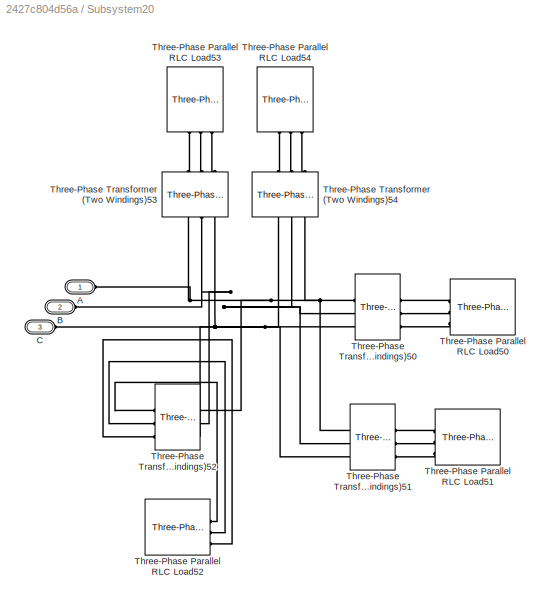
BLOCK [SubSystem] Subsystem20
BLOCK [PMIOPort] Subsystem20/A
  Side = Left
BLOCK [PMIOPort] Subsystem20/B
  Port = 2
  Side = Left
BLOCK [PMIOPort] Subsystem20/C
  Port = 3
  Side = Left
BLOCK [Reference] Subsystem20/Three-Phase Parallel RLC Load50  REF=spsThreePhaseParallelRLCLoadLib/Three-Phase
Parallel RLC Load
  AttributesFormatString = \n
  LibrarySourceBlock = sps_lib/Passives/Three-Phase\nParallel RLC Load
  NameLocation = right
  SourceBlock = spsThreePhaseParallelRLCLoadLib/Three-Phase\nParallel RLC Load
  SourceType = Three-Phase Parallel RLC Load
BLOCK [Reference] Subsystem20/Three-Phase Parallel RLC Load51  REF=spsThreePhaseParallelRLCLoadLib/Three-Phase
Parallel RLC Load
  AttributesFormatString = \n
  LibrarySourceBlock = sps_lib/Passives/Three-Phase\nParallel RLC Load
  NameLocation = right
  SourceBlock = spsThreePhaseParallelRLCLoadLib/Three-Phase\nParallel RLC Load
  SourceType = Three-Phase Parallel RLC Load
BLOCK [Reference] Subsystem20/Three-Phase Parallel RLC Load52  REF=spsThreePhaseParallelRLCLoadLib/Three-Phase
Parallel RLC Load
  AttributesFormatString = \n
  LibrarySourceBlock = sps_lib/Passives/Three-Phase\nParallel RLC Load
  NameLocation = left
  SourceBlock = spsThreePhaseParallelRLCLoadLib/Three-Phase\nParallel RLC Load
  SourceType = Three-Phase Parallel RLC Load
BLOCK [Reference] Subsystem20/Three-Phase Parallel RLC Load53  REF=spsThreePhaseParallelRLCLoadLib/Three-Phase
Parallel RLC Load
  AttributesFormatString = \n
  LibrarySourceBlock = sps_lib/Passives/Three-Phase\nParallel RLC Load
  NameLocation = top
  SourceBlock = spsThreePhaseParallelRLCLoadLib/Three-Phase\nParallel RLC Load
  SourceType = Three-Phase Parallel RLC Load
BLOCK [Reference] Subsystem20/Three-Phase Parallel RLC Load54  REF=spsThreePhaseParallelRLCLoadLib/Three-Phase
Parallel RLC Load
  AttributesFormatString = \n
  LibrarySourceBlock = sps_lib/Passives/Three-Phase\nParallel RLC Load
  NameLocation = top
  SourceBlock = spsThreePhaseParallelRLCLoadLib/Three-Phase\nParallel RLC Load
  SourceType = Three-Phase Parallel RLC Load
BLOCK [Reference] Subsystem20/Three-Phase Transformer (Two Windings)50  REF=spsThreePhaseTransformerTwoWindingsLib/Three-Phase
Transformer
(Two Windings)
  LibrarySourceBlock = sps_lib/Power Grid Elements/Three-Phase\nTransformer\n(Two Windings)
  SourceBlock = spsThreePhaseTransformerTwoWindingsLib/Three-Phase\nTransformer\n(Two Windings)
  SourceType = Three-Phase Transformer (Two Windings)
BLOCK [Reference] Subsystem20/Three-Phase Transformer (Two Windings)51  REF=spsThreePhaseTransformerTwoWindingsLib/Three-Phase
Transformer
(Two Windings)
  LibrarySourceBlock = sps_lib/Power Grid Elements/Three-Phase\nTransformer\n(Two Windings)
  SourceBlock = spsThreePhaseTransformerTwoWindingsLib/Three-Phase\nTransformer\n(Two Windings)
  SourceType = Three-Phase Transformer (Two Windings)
BLOCK [Reference] Subsystem20/Three-Phase Transformer (Two Windings)52  REF=spsThreePhaseTransformerTwoWindingsLib/Three-Phase
Transformer
(Two Windings)
  LibrarySourceBlock = sps_lib/Power Grid Elements/Three-Phase\nTransformer\n(Two Windings)
  SourceBlock = spsThreePhaseTransformerTwoWindingsLib/Three-Phase\nTransformer\n(Two Windings)
  SourceType = Three-Phase Transformer (Two Windings)
BLOCK [Reference] Subsystem20/Three-Phase Transformer (Two Windings)53  REF=spsThreePhaseTransformerTwoWindingsLib/Three-Phase
Transformer
(Two Windings)
  LibrarySourceBlock = sps_lib/Power Grid Elements/Three-Phase\nTransformer\n(Two Windings)
  NameLocation = right
  SourceBlock = spsThreePhaseTransformerTwoWindingsLib/Three-Phase\nTransformer\n(Two Windings)
  SourceType = Three-Phase Transformer (Two Windings)
BLOCK [Reference] Subsystem20/Three-Phase Transformer (Two Windings)54  REF=spsThreePhaseTransformerTwoWindingsLib/Three-Phase
Transformer
(Two Windings)
  LibrarySourceBlock = sps_lib/Power Grid Elements/Three-Phase\nTransformer\n(Two Windings)
  NameLocation = right
  SourceBlock = spsThreePhaseTransformerTwoWindingsLib/Three-Phase\nTransformer\n(Two Windings)
  SourceType = Three-Phase Transformer (Two Windings)
BLOCK [SubSystem] Subsystem21
BLOCK [PMIOPort] Subsystem21/A
  Side = Right
BLOCK [PMIOPort] Subsystem21/B
  Port = 2
  Side = Right
BLOCK [PMIOPort] Subsystem21/C
  Port = 3
  Side = Right
BLOCK [Reference] Subsystem21/Three-Phase Parallel RLC Load66  REF=spsThreePhaseParallelRLCLoadLib/Three-Phase
Parallel RLC Load
  AttributesFormatString = \n
  LibrarySourceBlock = sps_lib/Passives/Three-Phase\nParallel RLC Load
  NameLocation = left
  SourceBlock = spsThreePhaseParallelRLCLoadLib/Three-Phase\nParallel RLC Load
  SourceType = Three-Phase Parallel RLC Load
BLOCK [Reference] Subsystem21/Three-Phase Parallel RLC Load67  REF=spsThreePhaseParallelRLCLoadLib/Three-Phase
Parallel RLC Load
  AttributesFormatString = \n
  LibrarySourceBlock = sps_lib/Passives/Three-Phase\nParallel RLC Load
  NameLocation = left
  SourceBlock = spsThreePhaseParallelRLCLoadLib/Three-Phase\nParallel RLC Load
  SourceType = Three-Phase Parallel RLC Load
BLOCK [Reference] Subsystem21/Three-Phase Transformer (Two Windings)66  REF=spsThreePhaseTransformerTwoWindingsLib/Three-Phase
Transformer
(Two Windings)
  LibrarySourceBlock = sps_lib/Power Grid Elements/Three-Phase\nTransformer\n(Two Windings)
  SourceBlock = spsThreePhaseTransformerTwoWindingsLib/Three-Phase\nTransformer\n(Two Windings)
  SourceType = Three-Phase Transformer (Two Windings)
BLOCK [Reference] Subsystem21/Three-Phase Transformer (Two Windings)67  REF=spsThreePhaseTransformerTwoWindingsLib/Three-Phase
Transformer
(Two Windings)
  LibrarySourceBlock = sps_lib/Power Grid Elements/Three-Phase\nTransformer\n(Two Windings)
  SourceBlock = spsThreePhaseTransformerTwoWindingsLib/Three-Phase\nTransformer\n(Two Windings)
  SourceType = Three-Phase Transformer (Two Windings)
BLOCK [SubSystem] Subsystem22
BLOCK [PMIOPort] Subsystem22/A
  Side = Left
BLOCK [PMIOPort] Subsystem22/B
  Port = 2
  Side = Left
BLOCK [PMIOPort] Subsystem22/C
  Port = 3
  Side = Left
BLOCK [Reference] Subsystem22/Three-Phase Parallel RLC Load80  REF=spsThreePhaseParallelRLCLoadLib/Three-Phase
Parallel RLC Load
  AttributesFormatString = \n
  LibrarySourceBlock = sps_lib/Passives/Three-Phase\nParallel RLC Load
  NameLocation = right
  SourceBlock = spsThreePhaseParallelRLCLoadLib/Three-Phase\nParallel RLC Load
  SourceType = Three-Phase Parallel RLC Load
BLOCK [Reference] Subsystem22/Three-Phase Parallel RLC Load81  REF=spsThreePhaseParallelRLCLoadLib/Three-Phase
Parallel RLC Load
  AttributesFormatString = \n
  LibrarySourceBlock = sps_lib/Passives/Three-Phase\nParallel RLC Load
  NameLocation = right
  SourceBlock = spsThreePhaseParallelRLCLoadLib/Three-Phase\nParallel RLC Load
  SourceType = Three-Phase Parallel RLC Load
BLOCK [Reference] Subsystem22/Three-Phase Parallel RLC Load82  REF=spsThreePhaseParallelRLCLoadLib/Three-Phase
Parallel RLC Load
  AttributesFormatString = \n
  LibrarySourceBlock = sps_lib/Passives/Three-Phase\nParallel RLC Load
  NameLocation = right
  SourceBlock = spsThreePhaseParallelRLCLoadLib/Three-Phase\nParallel RLC Load
  SourceType = Three-Phase Parallel RLC Load
BLOCK [Reference] Subsystem22/Three-Phase Transformer (Two Windings)80  REF=spsThreePhaseTransformerTwoWindingsLib/Three-Phase
Transformer
(Two Windings)
  LibrarySourceBlock = sps_lib/Power Grid Elements/Three-Phase\nTransformer\n(Two Windings)
  SourceBlock = spsThreePhaseTransformerTwoWindingsLib/Three-Phase\nTransformer\n(Two Windings)
  SourceType = Three-Phase Transformer (Two Windings)
BLOCK [Reference] Subsystem22/Three-Phase Transformer (Two Windings)81  REF=spsThreePhaseTransformerTwoWindingsLib/Three-Phase
Transformer
(Two Windings)
  LibrarySourceBlock = sps_lib/Power Grid Elements/Three-Phase\nTransformer\n(Two Windings)
  SourceBlock = spsThreePhaseTransformerTwoWindingsLib/Three-Phase\nTransformer\n(Two Windings)
  SourceType = Three-Phase Transformer (Two Windings)
BLOCK [Reference] Subsystem22/Three-Phase Transformer (Two Windings)82  REF=spsThreePhaseTransformerTwoWindingsLib/Three-Phase
Transformer
(Two Windings)
  LibrarySourceBlock = sps_lib/Power Grid Elements/Three-Phase\nTransformer\n(Two Windings)
  SourceBlock = spsThreePhaseTransformerTwoWindingsLib/Three-Phase\nTransformer\n(Two Windings)
  SourceType = Three-Phase Transformer (Two Windings)
BLOCK [SubSystem] Subsystem23
BLOCK [PMIOPort] Subsystem23/A
  Side = Left
BLOCK [PMIOPort] Subsystem23/B
  Port = 2
  Side = Left
BLOCK [PMIOPort] Subsystem23/C
  Port = 3
  Side = Left
BLOCK [Reference] Subsystem23/Three-Phase Parallel RLC Load76  REF=spsThreePhaseParallelRLCLoadLib/Three-Phase
Parallel RLC Load
  AttributesFormatString = \n
  LibrarySourceBlock = sps_lib/Passives/Three-Phase\nParallel RLC Load
  NameLocation = right
  SourceBlock = spsThreePhaseParallelRLCLoadLib/Three-Phase\nParallel RLC Load
  SourceType = Three-Phase Parallel RLC Load
BLOCK [Reference] Subsystem23/Three-Phase Parallel RLC Load77  REF=spsThreePhaseParallelRLCLoadLib/Three-Phase
Parallel RLC Load
  AttributesFormatString = \n
  LibrarySourceBlock = sps_lib/Passives/Three-Phase\nParallel RLC Load
  NameLocation = right
  SourceBlock = spsThreePhaseParallelRLCLoadLib/Three-Phase\nParallel RLC Load
  SourceType = Three-Phase Parallel RLC Load
BLOCK [Reference] Subsystem23/Three-Phase Parallel RLC Load78  REF=spsThreePhaseParallelRLCLoadLib/Three-Phase
Parallel RLC Load
  AttributesFormatString = \n
  LibrarySourceBlock = sps_lib/Passives/Three-Phase\nParallel RLC Load
  NameLocation = left
  SourceBlock = spsThreePhaseParallelRLCLoadLib/Three-Phase\nParallel RLC Load
  SourceType = Three-Phase Parallel RLC Load
BLOCK [Reference] Subsystem23/Three-Phase Parallel RLC Load79  REF=spsThreePhaseParallelRLCLoadLib/Three-Phase
Parallel RLC Load
  AttributesFormatString = \n
  LibrarySourceBlock = sps_lib/Passives/Three-Phase\nParallel RLC Load
  NameLocation = right
  SourceBlock = spsThreePhaseParallelRLCLoadLib/Three-Phase\nParallel RLC Load
  SourceType = Three-Phase Parallel RLC Load
BLOCK [Reference] Subsystem23/Three-Phase Transformer (Two Windings)76  REF=spsThreePhaseTransformerTwoWindingsLib/Three-Phase
Transformer
(Two Windings)
  LibrarySourceBlock = sps_lib/Power Grid Elements/Three-Phase\nTransformer\n(Two Windings)
  SourceBlock = spsThreePhaseTransformerTwoWindingsLib/Three-Phase\nTransformer\n(Two Windings)
  SourceType = Three-Phase Transformer (Two Windings)
BLOCK [Reference] Subsystem23/Three-Phase Transformer (Two Windings)77  REF=spsThreePhaseTransformerTwoWindingsLib/Three-Phase
Transformer
(Two Windings)
  LibrarySourceBlock = sps_lib/Power Grid Elements/Three-Phase\nTransformer\n(Two Windings)
  SourceBlock = spsThreePhaseTransformerTwoWindingsLib/Three-Phase\nTransformer\n(Two Windings)
  SourceType = Three-Phase Transformer (Two Windings)
BLOCK [Reference] Subsystem23/Three-Phase Transformer (Two Windings)78  REF=spsThreePhaseTransformerTwoWindingsLib/Three-Phase
Transformer
(Two Windings)
  LibrarySourceBlock = sps_lib/Power Grid Elements/Three-Phase\nTransformer\n(Two Windings)
  SourceBlock = spsThreePhaseTransformerTwoWindingsLib/Three-Phase\nTransformer\n(Two Windings)
  SourceType = Three-Phase Transformer (Two Windings)
BLOCK [Reference] Subsystem23/Three-Phase Transformer (Two Windings)79  REF=spsThreePhaseTransformerTwoWindingsLib/Three-Phase
Transformer
(Two Windings)
  LibrarySourceBlock = sps_lib/Power Grid Elements/Three-Phase\nTransformer\n(Two Windings)
  SourceBlock = spsThreePhaseTransformerTwoWindingsLib/Three-Phase\nTransformer\n(Two Windings)
  SourceType = Three-Phase Transformer (Two Windings)
BLOCK [SubSystem] Subsystem24
BLOCK [PMIOPort] Subsystem24/A
  Side = Right
BLOCK [PMIOPort] Subsystem24/B
  Port = 2
  Side = Right
BLOCK [PMIOPort] Subsystem24/C
  Port = 3
  Side = Right
BLOCK [Reference] Subsystem24/Three-Phase Parallel RLC Load72  REF=spsThreePhaseParallelRLCLoadLib/Three-Phase
Parallel RLC Load
  AttributesFormatString = \n
  LibrarySourceBlock = sps_lib/Passives/Three-Phase\nParallel RLC Load
  NameLocation = left
  SourceBlock = spsThreePhaseParallelRLCLoadLib/Three-Phase\nParallel RLC Load
  SourceType = Three-Phase Parallel RLC Load
BLOCK [Reference] Subsystem24/Three-Phase Parallel RLC Load73  REF=spsThreePhaseParallelRLCLoadLib/Three-Phase
Parallel RLC Load
  AttributesFormatString = \n
  LibrarySourceBlock = sps_lib/Passives/Three-Phase\nParallel RLC Load
  NameLocation = left
  SourceBlock = spsThreePhaseParallelRLCLoadLib/Three-Phase\nParallel RLC Load
  SourceType = Three-Phase Parallel RLC Load
BLOCK [Reference] Subsystem24/Three-Phase Parallel RLC Load74  REF=spsThreePhaseParallelRLCLoadLib/Three-Phase
Parallel RLC Load
  AttributesFormatString = \n
  LibrarySourceBlock = sps_lib/Passives/Three-Phase\nParallel RLC Load
  NameLocation = right
  SourceBlock = spsThreePhaseParallelRLCLoadLib/Three-Phase\nParallel RLC Load
  SourceType = Three-Phase Parallel RLC Load
BLOCK [Reference] Subsystem24/Three-Phase Parallel RLC Load75  REF=spsThreePhaseParallelRLCLoadLib/Three-Phase
Parallel RLC Load
  AttributesFormatString = \n
  LibrarySourceBlock = sps_lib/Passives/Three-Phase\nParallel RLC Load
  NameLocation = left
  SourceBlock = spsThreePhaseParallelRLCLoadLib/Three-Phase\nParallel RLC Load
  SourceType = Three-Phase Parallel RLC Load
BLOCK [Reference] Subsystem24/Three-Phase Transformer (Two Windings)72  REF=spsThreePhaseTransformerTwoWindingsLib/Three-Phase
Transformer
(Two Windings)
  LibrarySourceBlock = sps_lib/Power Grid Elements/Three-Phase\nTransformer\n(Two Windings)
  SourceBlock = spsThreePhaseTransformerTwoWindingsLib/Three-Phase\nTransformer\n(Two Windings)
  SourceType = Three-Phase Transformer (Two Windings)
BLOCK [Reference] Subsystem24/Three-Phase Transformer (Two Windings)73  REF=spsThreePhaseTransformerTwoWindingsLib/Three-Phase
Transformer
(Two Windings)
  LibrarySourceBlock = sps_lib/Power Grid Elements/Three-Phase\nTransformer\n(Two Windings)
  SourceBlock = spsThreePhaseTransformerTwoWindingsLib/Three-Phase\nTransformer\n(Two Windings)
  SourceType = Three-Phase Transformer (Two Windings)
BLOCK [Reference] Subsystem24/Three-Phase Transformer (Two Windings)74  REF=spsThreePhaseTransformerTwoWindingsLib/Three-Phase
Transformer
(Two Windings)
  LibrarySourceBlock = sps_lib/Power Grid Elements/Three-Phase\nTransformer\n(Two Windings)
  SourceBlock = spsThreePhaseTransformerTwoWindingsLib/Three-Phase\nTransformer\n(Two Windings)
  SourceType = Three-Phase Transformer (Two Windings)
BLOCK [Reference] Subsystem24/Three-Phase Transformer (Two Windings)75  REF=spsThreePhaseTransformerTwoWindingsLib/Three-Phase
Transformer
(Two Windings)
  LibrarySourceBlock = sps_lib/Power Grid Elements/Three-Phase\nTransformer\n(Two Windings)
  SourceBlock = spsThreePhaseTransformerTwoWindingsLib/Three-Phase\nTransformer\n(Two Windings)
  SourceType = Three-Phase Transformer (Two Windings)
BLOCK [SubSystem] Subsystem25
BLOCK [PMIOPort] Subsystem25/A
  Side = Left
BLOCK [PMIOPort] Subsystem25/B
  Port = 2
  Side = Left
BLOCK [PMIOPort] Subsystem25/C
  Port = 3
  Side = Left
BLOCK [Reference] Subsystem25/Three-Phase Parallel RLC Load70  REF=spsThreePhaseParallelRLCLoadLib/Three-Phase
Parallel RLC Load
  AttributesFormatString = \n
  LibrarySourceBlock = sps_lib/Passives/Three-Phase\nParallel RLC Load
  NameLocation = right
  SourceBlock = spsThreePhaseParallelRLCLoadLib/Three-Phase\nParallel RLC Load
  SourceType = Three-Phase Parallel RLC Load
BLOCK [Reference] Subsystem25/Three-Phase Parallel RLC Load71  REF=spsThreePhaseParallelRLCLoadLib/Three-Phase
Parallel RLC Load
  AttributesFormatString = \n
  LibrarySourceBlock = sps_lib/Passives/Three-Phase\nParallel RLC Load
  NameLocation = left
  SourceBlock = spsThreePhaseParallelRLCLoadLib/Three-Phase\nParallel RLC Load
  SourceType = Three-Phase Parallel RLC Load
BLOCK [Reference] Subsystem25/Three-Phase Transformer (Two Windings)70  REF=spsThreePhaseTransformerTwoWindingsLib/Three-Phase
Transformer
(Two Windings)
  LibrarySourceBlock = sps_lib/Power Grid Elements/Three-Phase\nTransformer\n(Two Windings)
  SourceBlock = spsThreePhaseTransformerTwoWindingsLib/Three-Phase\nTransformer\n(Two Windings)
  SourceType = Three-Phase Transformer (Two Windings)
BLOCK [Reference] Subsystem25/Three-Phase Transformer (Two Windings)71  REF=spsThreePhaseTransformerTwoWindingsLib/Three-Phase
Transformer
(Two Windings)
  LibrarySourceBlock = sps_lib/Power Grid Elements/Three-Phase\nTransformer\n(Two Windings)
  SourceBlock = spsThreePhaseTransformerTwoWindingsLib/Three-Phase\nTransformer\n(Two Windings)
  SourceType = Three-Phase Transformer (Two Windings)
BLOCK [SubSystem] Subsystem26
BLOCK [PMIOPort] Subsystem26/A
  Port = 3
  Side = Right
BLOCK [PMIOPort] Subsystem26/B
  Port = 2
  Side = Right
BLOCK [PMIOPort] Subsystem26/C
  Side = Right
BLOCK [Reference] Subsystem26/Three-Phase Parallel RLC Load83  REF=spsThreePhaseParallelRLCLoadLib/Three-Phase
Parallel RLC Load
  AttributesFormatString = \n
  LibrarySourceBlock = sps_lib/Passives/Three-Phase\nParallel RLC Load
  NameLocation = left
  SourceBlock = spsThreePhaseParallelRLCLoadLib/Three-Phase\nParallel RLC Load
  SourceType = Three-Phase Parallel RLC Load
BLOCK [Reference] Subsystem26/Three-Phase Parallel RLC Load84  REF=spsThreePhaseParallelRLCLoadLib/Three-Phase
Parallel RLC Load
  AttributesFormatString = \n
  LibrarySourceBlock = sps_lib/Passives/Three-Phase\nParallel RLC Load
  NameLocation = left
  SourceBlock = spsThreePhaseParallelRLCLoadLib/Three-Phase\nParallel RLC Load
  SourceType = Three-Phase Parallel RLC Load
BLOCK [Reference] Subsystem26/Three-Phase Parallel RLC Load85  REF=spsThreePhaseParallelRLCLoadLib/Three-Phase
Parallel RLC Load
  AttributesFormatString = \n
  LibrarySourceBlock = sps_lib/Passives/Three-Phase\nParallel RLC Load
  NameLocation = left
  SourceBlock = spsThreePhaseParallelRLCLoadLib/Three-Phase\nParallel RLC Load
  SourceType = Three-Phase Parallel RLC Load
BLOCK [Reference] Subsystem26/Three-Phase Transformer (Two Windings)83  REF=spsThreePhaseTransformerTwoWindingsLib/Three-Phase
Transformer
(Two Windings)
  LibrarySourceBlock = sps_lib/Power Grid Elements/Three-Phase\nTransformer\n(Two Windings)
  SourceBlock = spsThreePhaseTransformerTwoWindingsLib/Three-Phase\nTransformer\n(Two Windings)
  SourceType = Three-Phase Transformer (Two Windings)
BLOCK [Reference] Subsystem26/Three-Phase Transformer (Two Windings)84  REF=spsThreePhaseTransformerTwoWindingsLib/Three-Phase
Transformer
(Two Windings)
  LibrarySourceBlock = sps_lib/Power Grid Elements/Three-Phase\nTransformer\n(Two Windings)
  SourceBlock = spsThreePhaseTransformerTwoWindingsLib/Three-Phase\nTransformer\n(Two Windings)
  SourceType = Three-Phase Transformer (Two Windings)
BLOCK [Reference] Subsystem26/Three-Phase Transformer (Two Windings)85  REF=spsThreePhaseTransformerTwoWindingsLib/Three-Phase
Transformer
(Two Windings)
  LibrarySourceBlock = sps_lib/Power Grid Elements/Three-Phase\nTransformer\n(Two Windings)
  SourceBlock = spsThreePhaseTransformerTwoWindingsLib/Three-Phase\nTransformer\n(Two Windings)
  SourceType = Three-Phase Transformer (Two Windings)
BLOCK [SubSystem] Subsystem3
  NameLocation = right
BLOCK [PMIOPort] Subsystem3/A
  Side = Left
BLOCK [PMIOPort] Subsystem3/B
  Port = 2
  Side = Left
BLOCK [PMIOPort] Subsystem3/C
  Port = 3
  Side = Left
BLOCK [Reference] Subsystem3/Three-Phase Parallel RLC Load15  REF=spsThreePhaseParallelRLCLoadLib/Three-Phase
Parallel RLC Load
  AttributesFormatString = \n
  LibrarySourceBlock = sps_lib/Passives/Three-Phase\nParallel RLC Load
  NameLocation = left
  SourceBlock = spsThreePhaseParallelRLCLoadLib/Three-Phase\nParallel RLC Load
  SourceType = Three-Phase Parallel RLC Load
BLOCK [Reference] Subsystem3/Three-Phase Parallel RLC Load16  REF=spsThreePhaseParallelRLCLoadLib/Three-Phase
Parallel RLC Load
  AttributesFormatString = \n
  LibrarySourceBlock = sps_lib/Passives/Three-Phase\nParallel RLC Load
  NameLocation = top
  SourceBlock = spsThreePhaseParallelRLCLoadLib/Three-Phase\nParallel RLC Load
  SourceType = Three-Phase Parallel RLC Load
BLOCK [Reference] Subsystem3/Three-Phase Transformer (Two Windings)14  REF=spsThreePhaseTransformerTwoWindingsLib/Three-Phase
Transformer
(Two Windings)
  LibrarySourceBlock = sps_lib/Power Grid Elements/Three-Phase\nTransformer\n(Two Windings)
  NameLocation = left
  SourceBlock = spsThreePhaseTransformerTwoWindingsLib/Three-Phase\nTransformer\n(Two Windings)
  SourceType = Three-Phase Transformer (Two Windings)
BLOCK [Reference] Subsystem3/Three-Phase Transformer (Two Windings)15  REF=spsThreePhaseTransformerTwoWindingsLib/Three-Phase
Transformer
(Two Windings)
  LibrarySourceBlock = sps_lib/Power Grid Elements/Three-Phase\nTransformer\n(Two Windings)
  NameLocation = top
  SourceBlock = spsThreePhaseTransformerTwoWindingsLib/Three-Phase\nTransformer\n(Two Windings)
  SourceType = Three-Phase Transformer (Two Windings)
BLOCK [SubSystem] Subsystem4
BLOCK [PMIOPort] Subsystem4/A
  Side = Left
BLOCK [PMIOPort] Subsystem4/B
  Port = 2
  Side = Left
BLOCK [PMIOPort] Subsystem4/C
  Port = 3
  Side = Left
BLOCK [Reference] Subsystem4/Three-Phase Parallel RLC Load10  REF=spsThreePhaseParallelRLCLoadLib/Three-Phase
Parallel RLC Load
  AttributesFormatString = \n
  LibrarySourceBlock = sps_lib/Passives/Three-Phase\nParallel RLC Load
  NameLocation = right
  SourceBlock = spsThreePhaseParallelRLCLoadLib/Three-Phase\nParallel RLC Load
  SourceType = Three-Phase Parallel RLC Load
BLOCK [Reference] Subsystem4/Three-Phase Parallel RLC Load11  REF=spsThreePhaseParallelRLCLoadLib/Three-Phase
Parallel RLC Load
  AttributesFormatString = \n
  LibrarySourceBlock = sps_lib/Passives/Three-Phase\nParallel RLC Load
  NameLocation = right
  SourceBlock = spsThreePhaseParallelRLCLoadLib/Three-Phase\nParallel RLC Load
  SourceType = Three-Phase Parallel RLC Load
BLOCK [Reference] Subsystem4/Three-Phase Parallel RLC Load12  REF=spsThreePhaseParallelRLCLoadLib/Three-Phase
Parallel RLC Load
  AttributesFormatString = \n
  LibrarySourceBlock = sps_lib/Passives/Three-Phase\nParallel RLC Load
  NameLocation = right
  SourceBlock = spsThreePhaseParallelRLCLoadLib/Three-Phase\nParallel RLC Load
  SourceType = Three-Phase Parallel RLC Load
BLOCK [Reference] Subsystem4/Three-Phase Parallel RLC Load13  REF=spsThreePhaseParallelRLCLoadLib/Three-Phase
Parallel RLC Load
  AttributesFormatString = \n
  LibrarySourceBlock = sps_lib/Passives/Three-Phase\nParallel RLC Load
  NameLocation = right
  SourceBlock = spsThreePhaseParallelRLCLoadLib/Three-Phase\nParallel RLC Load
  SourceType = Three-Phase Parallel RLC Load
BLOCK [Reference] Subsystem4/Three-Phase Transformer (Two Windings)10  REF=spsThreePhaseTransformerTwoWindingsLib/Three-Phase
Transformer
(Two Windings)
  LibrarySourceBlock = sps_lib/Power Grid Elements/Three-Phase\nTransformer\n(Two Windings)
  SourceBlock = spsThreePhaseTransformerTwoWindingsLib/Three-Phase\nTransformer\n(Two Windings)
  SourceType = Three-Phase Transformer (Two Windings)
BLOCK [Reference] Subsystem4/Three-Phase Transformer (Two Windings)11  REF=spsThreePhaseTransformerTwoWindingsLib/Three-Phase
Transformer
(Two Windings)
  LibrarySourceBlock = sps_lib/Power Grid Elements/Three-Phase\nTransformer\n(Two Windings)
  SourceBlock = spsThreePhaseTransformerTwoWindingsLib/Three-Phase\nTransformer\n(Two Windings)
  SourceType = Three-Phase Transformer (Two Windings)
BLOCK [Reference] Subsystem4/Three-Phase Transformer (Two Windings)12  REF=spsThreePhaseTransformerTwoWindingsLib/Three-Phase
Transformer
(Two Windings)
  LibrarySourceBlock = sps_lib/Power Grid Elements/Three-Phase\nTransformer\n(Two Windings)
  SourceBlock = spsThreePhaseTransformerTwoWindingsLib/Three-Phase\nTransformer\n(Two Windings)
  SourceType = Three-Phase Transformer (Two Windings)
BLOCK [Reference] Subsystem4/Three-Phase Transformer (Two Windings)13  REF=spsThreePhaseTransformerTwoWindingsLib/Three-Phase
Transformer
(Two Windings)
  LibrarySourceBlock = sps_lib/Power Grid Elements/Three-Phase\nTransformer\n(Two Windings)
  SourceBlock = spsThreePhaseTransformerTwoWindingsLib/Three-Phase\nTransformer\n(Two Windings)
  SourceType = Three-Phase Transformer (Two Windings)
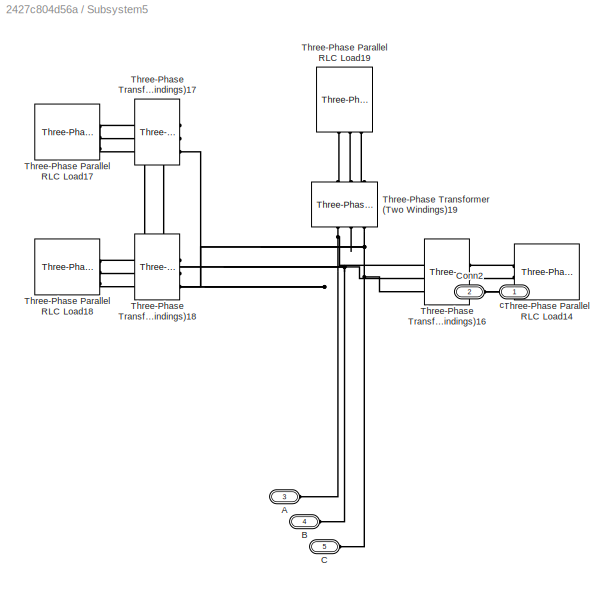
BLOCK [SubSystem] Subsystem5
  NameLocation = right
BLOCK [PMIOPort] Subsystem5/A
  Port = 3
  Side = Left
BLOCK [PMIOPort] Subsystem5/B
  Port = 4
  Side = Left
BLOCK [PMIOPort] Subsystem5/C
  Port = 5
  Side = Left
BLOCK [PMIOPort] Subsystem5/Conn2
  Port = 2
  Side = Left
BLOCK [Reference] Subsystem5/Three-Phase Parallel RLC Load14  REF=spsThreePhaseParallelRLCLoadLib/Three-Phase
Parallel RLC Load
  AttributesFormatString = \n
  LibrarySourceBlock = sps_lib/Passives/Three-Phase\nParallel RLC Load
  NameLocation = right
  SourceBlock = spsThreePhaseParallelRLCLoadLib/Three-Phase\nParallel RLC Load
  SourceType = Three-Phase Parallel RLC Load
BLOCK [Reference] Subsystem5/Three-Phase Parallel RLC Load17  REF=spsThreePhaseParallelRLCLoadLib/Three-Phase
Parallel RLC Load
  AttributesFormatString = \n
  LibrarySourceBlock = sps_lib/Passives/Three-Phase\nParallel RLC Load
  NameLocation = left
  SourceBlock = spsThreePhaseParallelRLCLoadLib/Three-Phase\nParallel RLC Load
  SourceType = Three-Phase Parallel RLC Load
BLOCK [Reference] Subsystem5/Three-Phase Parallel RLC Load18  REF=spsThreePhaseParallelRLCLoadLib/Three-Phase
Parallel RLC Load
  AttributesFormatString = \n
  LibrarySourceBlock = sps_lib/Passives/Three-Phase\nParallel RLC Load
  NameLocation = left
  SourceBlock = spsThreePhaseParallelRLCLoadLib/Three-Phase\nParallel RLC Load
  SourceType = Three-Phase Parallel RLC Load
BLOCK [Reference] Subsystem5/Three-Phase Parallel RLC Load19  REF=spsThreePhaseParallelRLCLoadLib/Three-Phase
Parallel RLC Load
  AttributesFormatString = \n
  LibrarySourceBlock = sps_lib/Passives/Three-Phase\nParallel RLC Load
  NameLocation = top
  SourceBlock = spsThreePhaseParallelRLCLoadLib/Three-Phase\nParallel RLC Load
  SourceType = Three-Phase Parallel RLC Load
BLOCK [Reference] Subsystem5/Three-Phase Transformer (Two Windings)16  REF=spsThreePhaseTransformerTwoWindingsLib/Three-Phase
Transformer
(Two Windings)
  LibrarySourceBlock = sps_lib/Power Grid Elements/Three-Phase\nTransformer\n(Two Windings)
  SourceBlock = spsThreePhaseTransformerTwoWindingsLib/Three-Phase\nTransformer\n(Two Windings)
  SourceType = Three-Phase Transformer (Two Windings)
BLOCK [Reference] Subsystem5/Three-Phase Transformer (Two Windings)17  REF=spsThreePhaseTransformerTwoWindingsLib/Three-Phase
Transformer
(Two Windings)
  LibrarySourceBlock = sps_lib/Power Grid Elements/Three-Phase\nTransformer\n(Two Windings)
  NameLocation = top
  SourceBlock = spsThreePhaseTransformerTwoWindingsLib/Three-Phase\nTransformer\n(Two Windings)
  SourceType = Three-Phase Transformer (Two Windings)
BLOCK [Reference] Subsystem5/Three-Phase Transformer (Two Windings)18  REF=spsThreePhaseTransformerTwoWindingsLib/Three-Phase
Transformer
(Two Windings)
  LibrarySourceBlock = sps_lib/Power Grid Elements/Three-Phase\nTransformer\n(Two Windings)
  NameLocation = top
  SourceBlock = spsThreePhaseTransformerTwoWindingsLib/Three-Phase\nTransformer\n(Two Windings)
  SourceType = Three-Phase Transformer (Two Windings)
BLOCK [Reference] Subsystem5/Three-Phase Transformer (Two Windings)19  REF=spsThreePhaseTransformerTwoWindingsLib/Three-Phase
Transformer
(Two Windings)
  LibrarySourceBlock = sps_lib/Power Grid Elements/Three-Phase\nTransformer\n(Two Windings)
  NameLocation = right
  SourceBlock = spsThreePhaseTransformerTwoWindingsLib/Three-Phase\nTransformer\n(Two Windings)
  SourceType = Three-Phase Transformer (Two Windings)
BLOCK [PMIOPort] Subsystem5/c
  Side = Right
BLOCK [SubSystem] Subsystem6
  NameLocation = left
BLOCK [PMIOPort] Subsystem6/A
  Port = 3
  Side = Left
BLOCK [PMIOPort] Subsystem6/B
  Port = 2
  Side = Left
BLOCK [PMIOPort] Subsystem6/C
  Side = Left
BLOCK [Reference] Subsystem6/Three-Phase Parallel RLC Load20  REF=spsThreePhaseParallelRLCLoadLib/Three-Phase
Parallel RLC Load
  AttributesFormatString = \n
  LibrarySourceBlock = sps_lib/Passives/Three-Phase\nParallel RLC Load
  NameLocation = left
  SourceBlock = spsThreePhaseParallelRLCLoadLib/Three-Phase\nParallel RLC Load
  SourceType = Three-Phase Parallel RLC Load
BLOCK [Reference] Subsystem6/Three-Phase Parallel RLC Load21  REF=spsThreePhaseParallelRLCLoadLib/Three-Phase
Parallel RLC Load
  AttributesFormatString = \n
  LibrarySourceBlock = sps_lib/Passives/Three-Phase\nParallel RLC Load
  NameLocation = left
  SourceBlock = spsThreePhaseParallelRLCLoadLib/Three-Phase\nParallel RLC Load
  SourceType = Three-Phase Parallel RLC Load
BLOCK [Reference] Subsystem6/Three-Phase Parallel RLC Load22  REF=spsThreePhaseParallelRLCLoadLib/Three-Phase
Parallel RLC Load
  AttributesFormatString = \n
  LibrarySourceBlock = sps_lib/Passives/Three-Phase\nParallel RLC Load
  NameLocation = left
  SourceBlock = spsThreePhaseParallelRLCLoadLib/Three-Phase\nParallel RLC Load
  SourceType = Three-Phase Parallel RLC Load
BLOCK [Reference] Subsystem6/Three-Phase Transformer (Two Windings)20  REF=spsThreePhaseTransformerTwoWindingsLib/Three-Phase
Transformer
(Two Windings)
  LibrarySourceBlock = sps_lib/Power Grid Elements/Three-Phase\nTransformer\n(Two Windings)
  NameLocation = top
  SourceBlock = spsThreePhaseTransformerTwoWindingsLib/Three-Phase\nTransformer\n(Two Windings)
  SourceType = Three-Phase Transformer (Two Windings)
BLOCK [Reference] Subsystem6/Three-Phase Transformer (Two Windings)21  REF=spsThreePhaseTransformerTwoWindingsLib/Three-Phase
Transformer
(Two Windings)
  LibrarySourceBlock = sps_lib/Power Grid Elements/Three-Phase\nTransformer\n(Two Windings)
  NameLocation = top
  SourceBlock = spsThreePhaseTransformerTwoWindingsLib/Three-Phase\nTransformer\n(Two Windings)
  SourceType = Three-Phase Transformer (Two Windings)
BLOCK [Reference] Subsystem6/Three-Phase Transformer (Two Windings)22  REF=spsThreePhaseTransformerTwoWindingsLib/Three-Phase
Transformer
(Two Windings)
  LibrarySourceBlock = sps_lib/Power Grid Elements/Three-Phase\nTransformer\n(Two Windings)
  NameLocation = top
  SourceBlock = spsThreePhaseTransformerTwoWindingsLib/Three-Phase\nTransformer\n(Two Windings)
  SourceType = Three-Phase Transformer (Two Windings)
BLOCK [SubSystem] Subsystem7
BLOCK [PMIOPort] Subsystem7/A
  Side = Left
BLOCK [PMIOPort] Subsystem7/B
  Port = 2
  Side = Left
BLOCK [PMIOPort] Subsystem7/C
  Port = 3
  Side = Left
BLOCK [Reference] Subsystem7/Three-Phase Parallel RLC Load23  REF=spsThreePhaseParallelRLCLoadLib/Three-Phase
Parallel RLC Load
  AttributesFormatString = \n
  LibrarySourceBlock = sps_lib/Passives/Three-Phase\nParallel RLC Load
  NameLocation = right
  SourceBlock = spsThreePhaseParallelRLCLoadLib/Three-Phase\nParallel RLC Load
  SourceType = Three-Phase Parallel RLC Load
BLOCK [Reference] Subsystem7/Three-Phase Parallel RLC Load24  REF=spsThreePhaseParallelRLCLoadLib/Three-Phase
Parallel RLC Load
  AttributesFormatString = \n
  LibrarySourceBlock = sps_lib/Passives/Three-Phase\nParallel RLC Load
  NameLocation = right
  SourceBlock = spsThreePhaseParallelRLCLoadLib/Three-Phase\nParallel RLC Load
  SourceType = Three-Phase Parallel RLC Load
BLOCK [Reference] Subsystem7/Three-Phase Transformer (Two Windings)23  REF=spsThreePhaseTransformerTwoWindingsLib/Three-Phase
Transformer
(Two Windings)
  LibrarySourceBlock = sps_lib/Power Grid Elements/Three-Phase\nTransformer\n(Two Windings)
  SourceBlock = spsThreePhaseTransformerTwoWindingsLib/Three-Phase\nTransformer\n(Two Windings)
  SourceType = Three-Phase Transformer (Two Windings)
BLOCK [Reference] Subsystem7/Three-Phase Transformer (Two Windings)24  REF=spsThreePhaseTransformerTwoWindingsLib/Three-Phase
Transformer
(Two Windings)
  LibrarySourceBlock = sps_lib/Power Grid Elements/Three-Phase\nTransformer\n(Two Windings)
  SourceBlock = spsThreePhaseTransformerTwoWindingsLib/Three-Phase\nTransformer\n(Two Windings)
  SourceType = Three-Phase Transformer (Two Windings)
BLOCK [SubSystem] Subsystem8
BLOCK [PMIOPort] Subsystem8/A
  Side = Left
BLOCK [PMIOPort] Subsystem8/B
  Port = 2
  Side = Left
BLOCK [PMIOPort] Subsystem8/C
  Port = 3
  Side = Left
BLOCK [Reference] Subsystem8/Three-Phase Parallel RLC Load25  REF=spsThreePhaseParallelRLCLoadLib/Three-Phase
Parallel RLC Load
  AttributesFormatString = \n
  LibrarySourceBlock = sps_lib/Passives/Three-Phase\nParallel RLC Load
  NameLocation = right
  SourceBlock = spsThreePhaseParallelRLCLoadLib/Three-Phase\nParallel RLC Load
  SourceType = Three-Phase Parallel RLC Load
BLOCK [Reference] Subsystem8/Three-Phase Parallel RLC Load26  REF=spsThreePhaseParallelRLCLoadLib/Three-Phase
Parallel RLC Load
  AttributesFormatString = \n
  LibrarySourceBlock = sps_lib/Passives/Three-Phase\nParallel RLC Load
  SourceBlock = spsThreePhaseParallelRLCLoadLib/Three-Phase\nParallel RLC Load
  SourceType = Three-Phase Parallel RLC Load
BLOCK [Reference] Subsystem8/Three-Phase Parallel RLC Load27  REF=spsThreePhaseParallelRLCLoadLib/Three-Phase
Parallel RLC Load
  AttributesFormatString = \n
  LibrarySourceBlock = sps_lib/Passives/Three-Phase\nParallel RLC Load
  SourceBlock = spsThreePhaseParallelRLCLoadLib/Three-Phase\nParallel RLC Load
  SourceType = Three-Phase Parallel RLC Load
BLOCK [Reference] Subsystem8/Three-Phase Parallel RLC Load28  REF=spsThreePhaseParallelRLCLoadLib/Three-Phase
Parallel RLC Load
  AttributesFormatString = \n
  LibrarySourceBlock = sps_lib/Passives/Three-Phase\nParallel RLC Load
  SourceBlock = spsThreePhaseParallelRLCLoadLib/Three-Phase\nParallel RLC Load
  SourceType = Three-Phase Parallel RLC Load
BLOCK [Reference] Subsystem8/Three-Phase Parallel RLC Load29  REF=spsThreePhaseParallelRLCLoadLib/Three-Phase
Parallel RLC Load
  AttributesFormatString = \n
  LibrarySourceBlock = sps_lib/Passives/Three-Phase\nParallel RLC Load
  SourceBlock = spsThreePhaseParallelRLCLoadLib/Three-Phase\nParallel RLC Load
  SourceType = Three-Phase Parallel RLC Load
BLOCK [Reference] Subsystem8/Three-Phase Transformer (Two Windings)25  REF=spsThreePhaseTransformerTwoWindingsLib/Three-Phase
Transformer
(Two Windings)
  LibrarySourceBlock = sps_lib/Power Grid Elements/Three-Phase\nTransformer\n(Two Windings)
  SourceBlock = spsThreePhaseTransformerTwoWindingsLib/Three-Phase\nTransformer\n(Two Windings)
  SourceType = Three-Phase Transformer (Two Windings)
BLOCK [Reference] Subsystem8/Three-Phase Transformer (Two Windings)26  REF=spsThreePhaseTransformerTwoWindingsLib/Three-Phase
Transformer
(Two Windings)
  LibrarySourceBlock = sps_lib/Power Grid Elements/Three-Phase\nTransformer\n(Two Windings)
  NameLocation = left
  SourceBlock = spsThreePhaseTransformerTwoWindingsLib/Three-Phase\nTransformer\n(Two Windings)
  SourceType = Three-Phase Transformer (Two Windings)
BLOCK [Reference] Subsystem8/Three-Phase Transformer (Two Windings)27  REF=spsThreePhaseTransformerTwoWindingsLib/Three-Phase
Transformer
(Two Windings)
  LibrarySourceBlock = sps_lib/Power Grid Elements/Three-Phase\nTransformer\n(Two Windings)
  NameLocation = left
  SourceBlock = spsThreePhaseTransformerTwoWindingsLib/Three-Phase\nTransformer\n(Two Windings)
  SourceType = Three-Phase Transformer (Two Windings)
BLOCK [Reference] Subsystem8/Three-Phase Transformer (Two Windings)28  REF=spsThreePhaseTransformerTwoWindingsLib/Three-Phase
Transformer
(Two Windings)
  LibrarySourceBlock = sps_lib/Power Grid Elements/Three-Phase\nTransformer\n(Two Windings)
  NameLocation = left
  SourceBlock = spsThreePhaseTransformerTwoWindingsLib/Three-Phase\nTransformer\n(Two Windings)
  SourceType = Three-Phase Transformer (Two Windings)
BLOCK [Reference] Subsystem8/Three-Phase Transformer (Two Windings)29  REF=spsThreePhaseTransformerTwoWindingsLib/Three-Phase
Transformer
(Two Windings)
  LibrarySourceBlock = sps_lib/Power Grid Elements/Three-Phase\nTransformer\n(Two Windings)
  NameLocation = left
  SourceBlock = spsThreePhaseTransformerTwoWindingsLib/Three-Phase\nTransformer\n(Two Windings)
  SourceType = Three-Phase Transformer (Two Windings)
BLOCK [SubSystem] Subsystem9
BLOCK [PMIOPort] Subsystem9/A
  Side = Left
BLOCK [PMIOPort] Subsystem9/B
  Port = 2
  Side = Left
BLOCK [PMIOPort] Subsystem9/C
  Port = 3
  Side = Left
BLOCK [Reference] Subsystem9/Three-Phase Parallel RLC Load30  REF=spsThreePhaseParallelRLCLoadLib/Three-Phase
Parallel RLC Load
  AttributesFormatString = \n
  LibrarySourceBlock = sps_lib/Passives/Three-Phase\nParallel RLC Load
  NameLocation = right
  SourceBlock = spsThreePhaseParallelRLCLoadLib/Three-Phase\nParallel RLC Load
  SourceType = Three-Phase Parallel RLC Load
BLOCK [Reference] Subsystem9/Three-Phase Parallel RLC Load31  REF=spsThreePhaseParallelRLCLoadLib/Three-Phase
Parallel RLC Load
  AttributesFormatString = \n
  LibrarySourceBlock = sps_lib/Passives/Three-Phase\nParallel RLC Load
  NameLocation = right
  SourceBlock = spsThreePhaseParallelRLCLoadLib/Three-Phase\nParallel RLC Load
  SourceType = Three-Phase Parallel RLC Load
BLOCK [Reference] Subsystem9/Three-Phase Parallel RLC Load32  REF=spsThreePhaseParallelRLCLoadLib/Three-Phase
Parallel RLC Load
  AttributesFormatString = \n
  LibrarySourceBlock = sps_lib/Passives/Three-Phase\nParallel RLC Load
  NameLocation = right
  SourceBlock = spsThreePhaseParallelRLCLoadLib/Three-Phase\nParallel RLC Load
  SourceType = Three-Phase Parallel RLC Load
BLOCK [Reference] Subsystem9/Three-Phase Parallel RLC Load33  REF=spsThreePhaseParallelRLCLoadLib/Three-Phase
Parallel RLC Load
  AttributesFormatString = \n
  LibrarySourceBlock = sps_lib/Passives/Three-Phase\nParallel RLC Load
  NameLocation = right
  SourceBlock = spsThreePhaseParallelRLCLoadLib/Three-Phase\nParallel RLC Load
  SourceType = Three-Phase Parallel RLC Load
BLOCK [Reference] Subsystem9/Three-Phase Transformer (Two Windings)30  REF=spsThreePhaseTransformerTwoWindingsLib/Three-Phase
Transformer
(Two Windings)
  LibrarySourceBlock = sps_lib/Power Grid Elements/Three-Phase\nTransformer\n(Two Windings)
  SourceBlock = spsThreePhaseTransformerTwoWindingsLib/Three-Phase\nTransformer\n(Two Windings)
  SourceType = Three-Phase Transformer (Two Windings)
BLOCK [Reference] Subsystem9/Three-Phase Transformer (Two Windings)31  REF=spsThreePhaseTransformerTwoWindingsLib/Three-Phase
Transformer
(Two Windings)
  LibrarySourceBlock = sps_lib/Power Grid Elements/Three-Phase\nTransformer\n(Two Windings)
  SourceBlock = spsThreePhaseTransformerTwoWindingsLib/Three-Phase\nTransformer\n(Two Windings)
  SourceType = Three-Phase Transformer (Two Windings)
BLOCK [Reference] Subsystem9/Three-Phase Transformer (Two Windings)32  REF=spsThreePhaseTransformerTwoWindingsLib/Three-Phase
Transformer
(Two Windings)
  LibrarySourceBlock = sps_lib/Power Grid Elements/Three-Phase\nTransformer\n(Two Windings)
  SourceBlock = spsThreePhaseTransformerTwoWindingsLib/Three-Phase\nTransformer\n(Two Windings)
  SourceType = Three-Phase Transformer (Two Windings)
BLOCK [Reference] Subsystem9/Three-Phase Transformer (Two Windings)33  REF=spsThreePhaseTransformerTwoWindingsLib/Three-Phase
Transformer
(Two Windings)
  LibrarySourceBlock = sps_lib/Power Grid Elements/Three-Phase\nTransformer\n(Two Windings)
  SourceBlock = spsThreePhaseTransformerTwoWindingsLib/Three-Phase\nTransformer\n(Two Windings)
  SourceType = Three-Phase Transformer (Two Windings)
BLOCK [Reference] Thakurgaon  REF=spsThreePhaseVIMeasurementLib/Three-Phase
V-I Measurement
  LibrarySourceBlock = sps_lib/Sensors and Measurements/Three-Phase\nV-I Measurement
  NameLocation = left
  SourceBlock = spsThreePhaseVIMeasurementLib/Three-Phase\nV-I Measurement
  SourceType = Three-Phase VI Measurement
BLOCK [Reference] Three-Phase Fault  REF=spsThreePhaseFaultLib/Three-Phase Fault
  LibrarySourceBlock = sps_lib/Power Grid Elements/Three-Phase Fault
  SourceBlock = spsThreePhaseFaultLib/Three-Phase Fault
  SourceType = Three-Phase Fault
BLOCK [Reference] Three-Phase Source  REF=spsThreePhaseSourceLib/Three-Phase Source
  LibrarySourceBlock = sps_lib/Sources/Three-Phase Source
  SourceBlock = spsThreePhaseSourceLib/Three-Phase Source
  SourceType = Three-Phase Source
BLOCK [Reference] Three-Phase Source1  REF=spsThreePhaseSourceLib/Three-Phase Source
  LibrarySourceBlock = sps_lib/Sources/Three-Phase Source
  SourceBlock = spsThreePhaseSourceLib/Three-Phase Source
  SourceType = Three-Phase Source
BLOCK [Reference] Three-Phase Source10  REF=spsThreePhaseSourceLib/Three-Phase Source
  LibrarySourceBlock = sps_lib/Sources/Three-Phase Source
  SourceBlock = spsThreePhaseSourceLib/Three-Phase Source
  SourceType = Three-Phase Source
BLOCK [Reference] Three-Phase Source11  REF=spsThreePhaseSourceLib/Three-Phase Source
  LibrarySourceBlock = sps_lib/Sources/Three-Phase Source
  NameLocation = left
  SourceBlock = spsThreePhaseSourceLib/Three-Phase Source
  SourceType = Three-Phase Source
BLOCK [Reference] Three-Phase Source12  REF=spsThreePhaseSourceLib/Three-Phase Source
  LibrarySourceBlock = sps_lib/Sources/Three-Phase Source
  NameLocation = left
  SourceBlock = spsThreePhaseSourceLib/Three-Phase Source
  SourceType = Three-Phase Source
BLOCK [Reference] Three-Phase Source13  REF=spsThreePhaseSourceLib/Three-Phase Source
  LibrarySourceBlock = sps_lib/Sources/Three-Phase Source
  NameLocation = left
  SourceBlock = spsThreePhaseSourceLib/Three-Phase Source
  SourceType = Three-Phase Source
BLOCK [Reference] Three-Phase Source14  REF=spsThreePhaseSourceLib/Three-Phase Source
  LibrarySourceBlock = sps_lib/Sources/Three-Phase Source
  NameLocation = left
  SourceBlock = spsThreePhaseSourceLib/Three-Phase Source
  SourceType = Three-Phase Source
BLOCK [Reference] Three-Phase Source15  REF=spsThreePhaseSourceLib/Three-Phase Source
  LibrarySourceBlock = sps_lib/Sources/Three-Phase Source
  SourceBlock = spsThreePhaseSourceLib/Three-Phase Source
  SourceType = Three-Phase Source
BLOCK [Reference] Three-Phase Source16  REF=spsThreePhaseSourceLib/Three-Phase Source
  LibrarySourceBlock = sps_lib/Sources/Three-Phase Source
  NameLocation = left
  SourceBlock = spsThreePhaseSourceLib/Three-Phase Source
  SourceType = Three-Phase Source
BLOCK [Reference] Three-Phase Source17  REF=spsThreePhaseSourceLib/Three-Phase Source
  LibrarySourceBlock = sps_lib/Sources/Three-Phase Source
  NameLocation = left
  SourceBlock = spsThreePhaseSourceLib/Three-Phase Source
  SourceType = Three-Phase Source
BLOCK [Reference] Three-Phase Source18  REF=spsThreePhaseSourceLib/Three-Phase Source
  LibrarySourceBlock = sps_lib/Sources/Three-Phase Source
  NameLocation = left
  SourceBlock = spsThreePhaseSourceLib/Three-Phase Source
  SourceType = Three-Phase Source
BLOCK [Reference] Three-Phase Source19  REF=spsThreePhaseSourceLib/Three-Phase Source
  LibrarySourceBlock = sps_lib/Sources/Three-Phase Source
  NameLocation = left
  SourceBlock = spsThreePhaseSourceLib/Three-Phase Source
  SourceType = Three-Phase Source
BLOCK [Reference] Three-Phase Source2  REF=spsThreePhaseSourceLib/Three-Phase Source
  LibrarySourceBlock = sps_lib/Sources/Three-Phase Source
  SourceBlock = spsThreePhaseSourceLib/Three-Phase Source
  SourceType = Three-Phase Source
BLOCK [Reference] Three-Phase Source20  REF=spsThreePhaseSourceLib/Three-Phase Source
  LibrarySourceBlock = sps_lib/Sources/Three-Phase Source
  SourceBlock = spsThreePhaseSourceLib/Three-Phase Source
  SourceType = Three-Phase Source
BLOCK [Reference] Three-Phase Source21  REF=spsThreePhaseSourceLib/Three-Phase Source
  LibrarySourceBlock = sps_lib/Sources/Three-Phase Source
  SourceBlock = spsThreePhaseSourceLib/Three-Phase Source
  SourceType = Three-Phase Source
BLOCK [Reference] Three-Phase Source22  REF=spsThreePhaseSourceLib/Three-Phase Source
  LibrarySourceBlock = sps_lib/Sources/Three-Phase Source
  SourceBlock = spsThreePhaseSourceLib/Three-Phase Source
  SourceType = Three-Phase Source
BLOCK [Reference] Three-Phase Source23  REF=spsThreePhaseSourceLib/Three-Phase Source
  LibrarySourceBlock = sps_lib/Sources/Three-Phase Source
  SourceBlock = spsThreePhaseSourceLib/Three-Phase Source
  SourceType = Three-Phase Source
BLOCK [Reference] Three-Phase Source24  REF=spsThreePhaseSourceLib/Three-Phase Source
  LibrarySourceBlock = sps_lib/Sources/Three-Phase Source
  SourceBlock = spsThreePhaseSourceLib/Three-Phase Source
  SourceType = Three-Phase Source
BLOCK [Reference] Three-Phase Source25  REF=spsThreePhaseSourceLib/Three-Phase Source
  LibrarySourceBlock = sps_lib/Sources/Three-Phase Source
  SourceBlock = spsThreePhaseSourceLib/Three-Phase Source
  SourceType = Three-Phase Source
BLOCK [Reference] Three-Phase Source26  REF=spsThreePhaseSourceLib/Three-Phase Source
  LibrarySourceBlock = sps_lib/Sources/Three-Phase Source
  SourceBlock = spsThreePhaseSourceLib/Three-Phase Source
  SourceType = Three-Phase Source
BLOCK [Reference] Three-Phase Source27  REF=spsThreePhaseSourceLib/Three-Phase Source
  LibrarySourceBlock = sps_lib/Sources/Three-Phase Source
  SourceBlock = spsThreePhaseSourceLib/Three-Phase Source
  SourceType = Three-Phase Source
BLOCK [Reference] Three-Phase Source28  REF=spsThreePhaseSourceLib/Three-Phase Source
  LibrarySourceBlock = sps_lib/Sources/Three-Phase Source
  SourceBlock = spsThreePhaseSourceLib/Three-Phase Source
  SourceType = Three-Phase Source
BLOCK [Reference] Three-Phase Source29  REF=spsThreePhaseSourceLib/Three-Phase Source
  LibrarySourceBlock = sps_lib/Sources/Three-Phase Source
  SourceBlock = spsThreePhaseSourceLib/Three-Phase Source
  SourceType = Three-Phase Source
BLOCK [Reference] Three-Phase Source3  REF=spsThreePhaseSourceLib/Three-Phase Source
  LibrarySourceBlock = sps_lib/Sources/Three-Phase Source
  SourceBlock = spsThreePhaseSourceLib/Three-Phase Source
  SourceType = Three-Phase Source
BLOCK [Reference] Three-Phase Source4  REF=spsThreePhaseSourceLib/Three-Phase Source
  LibrarySourceBlock = sps_lib/Sources/Three-Phase Source
  SourceBlock = spsThreePhaseSourceLib/Three-Phase Source
  SourceType = Three-Phase Source
BLOCK [Reference] Three-Phase Source5  REF=spsThreePhaseSourceLib/Three-Phase Source
  LibrarySourceBlock = sps_lib/Sources/Three-Phase Source
  SourceBlock = spsThreePhaseSourceLib/Three-Phase Source
  SourceType = Three-Phase Source
BLOCK [Reference] Three-Phase Source6  REF=spsThreePhaseSourceLib/Three-Phase Source
  LibrarySourceBlock = sps_lib/Sources/Three-Phase Source
  NameLocation = left
  SourceBlock = spsThreePhaseSourceLib/Three-Phase Source
  SourceType = Three-Phase Source
BLOCK [Reference] Three-Phase Source7  REF=spsThreePhaseSourceLib/Three-Phase Source
  LibrarySourceBlock = sps_lib/Sources/Three-Phase Source
  SourceBlock = spsThreePhaseSourceLib/Three-Phase Source
  SourceType = Three-Phase Source
BLOCK [Reference] Three-Phase Source8  REF=spsThreePhaseSourceLib/Three-Phase Source
  LibrarySourceBlock = sps_lib/Sources/Three-Phase Source
  SourceBlock = spsThreePhaseSourceLib/Three-Phase Source
  SourceType = Three-Phase Source
BLOCK [Reference] Three-Phase Source9  REF=spsThreePhaseSourceLib/Three-Phase Source
  LibrarySourceBlock = sps_lib/Sources/Three-Phase Source
  SourceBlock = spsThreePhaseSourceLib/Three-Phase Source
  SourceType = Three-Phase Source
BLOCK [Reference] Three-Phase Transformer (Two Windings)86  REF=spsThreePhaseTransformerTwoWindingsLib/Three-Phase
Transformer
(Two Windings)
  LibrarySourceBlock = sps_lib/Power Grid Elements/Three-Phase\nTransformer\n(Two Windings)
  SourceBlock = spsThreePhaseTransformerTwoWindingsLib/Three-Phase\nTransformer\n(Two Windings)
  SourceType = Three-Phase Transformer (Two Windings)
BLOCK [Reference] Three-Phase Transformer (Two Windings)87  REF=spsThreePhaseTransformerTwoWindingsLib/Three-Phase
Transformer
(Two Windings)
  LibrarySourceBlock = sps_lib/Power Grid Elements/Three-Phase\nTransformer\n(Two Windings)
  SourceBlock = spsThreePhaseTransformerTwoWindingsLib/Three-Phase\nTransformer\n(Two Windings)
  SourceType = Three-Phase Transformer (Two Windings)
BLOCK [Reference] Three-Phase Transformer (Two Windings)88  REF=spsThreePhaseTransformerTwoWindingsLib/Three-Phase
Transformer
(Two Windings)
  LibrarySourceBlock = sps_lib/Power Grid Elements/Three-Phase\nTransformer\n(Two Windings)
  SourceBlock = spsThreePhaseTransformerTwoWindingsLib/Three-Phase\nTransformer\n(Two Windings)
  SourceType = Three-Phase Transformer (Two Windings)
BLOCK [Reference] Three-Phase Transformer (Two Windings)89  REF=spsThreePhaseTransformerTwoWindingsLib/Three-Phase
Transformer
(Two Windings)
  LibrarySourceBlock = sps_lib/Power Grid Elements/Three-Phase\nTransformer\n(Two Windings)
  SourceBlock = spsThreePhaseTransformerTwoWindingsLib/Three-Phase\nTransformer\n(Two Windings)
  SourceType = Three-Phase Transformer (Two Windings)
BLOCK [Reference] Three-Phase Transformer (Two Windings)90  REF=spsThreePhaseTransformerTwoWindingsLib/Three-Phase
Transformer
(Two Windings)
  LibrarySourceBlock = sps_lib/Power Grid Elements/Three-Phase\nTransformer\n(Two Windings)
  SourceBlock = spsThreePhaseTransformerTwoWindingsLib/Three-Phase\nTransformer\n(Two Windings)
  SourceType = Three-Phase Transformer (Two Windings)
BLOCK [Reference] Three-Phase Transformer (Two Windings)91  REF=spsThreePhaseTransformerTwoWindingsLib/Three-Phase
Transformer
(Two Windings)
  LibrarySourceBlock = sps_lib/Power Grid Elements/Three-Phase\nTransformer\n(Two Windings)
  SourceBlock = spsThreePhaseTransformerTwoWindingsLib/Three-Phase\nTransformer\n(Two Windings)
  SourceType = Three-Phase Transformer (Two Windings)
BLOCK [Reference] Three-Phase Transformer (Two Windings)92  REF=spsThreePhaseTransformerTwoWindingsLib/Three-Phase
Transformer
(Two Windings)
  LibrarySourceBlock = sps_lib/Power Grid Elements/Three-Phase\nTransformer\n(Two Windings)
  SourceBlock = spsThreePhaseTransformerTwoWindingsLib/Three-Phase\nTransformer\n(Two Windings)
  SourceType = Three-Phase Transformer (Two Windings)
BLOCK [Reference] Three-Phase Transformer (Two Windings)93  REF=spsThreePhaseTransformerTwoWindingsLib/Three-Phase
Transformer
(Two Windings)
  LibrarySourceBlock = sps_lib/Power Grid Elements/Three-Phase\nTransformer\n(Two Windings)
  SourceBlock = spsThreePhaseTransformerTwoWindingsLib/Three-Phase\nTransformer\n(Two Windings)
  SourceType = Three-Phase Transformer (Two Windings)
BLOCK [Reference] Three-Phase Transformer (Two Windings)94  REF=spsThreePhaseTransformerTwoWindingsLib/Three-Phase
Transformer
(Two Windings)
  LibrarySourceBlock = sps_lib/Power Grid Elements/Three-Phase\nTransformer\n(Two Windings)
  SourceBlock = spsThreePhaseTransformerTwoWindingsLib/Three-Phase\nTransformer\n(Two Windings)
  SourceType = Three-Phase Transformer (Two Windings)
BLOCK [Reference] Three-Phase Transformer (Two Windings)95  REF=spsThreePhaseTransformerTwoWindingsLib/Three-Phase
Transformer
(Two Windings)
  LibrarySourceBlock = sps_lib/Power Grid Elements/Three-Phase\nTransformer\n(Two Windings)
  SourceBlock = spsThreePhaseTransformerTwoWindingsLib/Three-Phase\nTransformer\n(Two Windings)
  SourceType = Three-Phase Transformer (Two Windings)
BLOCK [Reference] Three-Phase Transformer (Two Windings)96  REF=spsThreePhaseTransformerTwoWindingsLib/Three-Phase
Transformer
(Two Windings)
  LibrarySourceBlock = sps_lib/Power Grid Elements/Three-Phase\nTransformer\n(Two Windings)
  SourceBlock = spsThreePhaseTransformerTwoWindingsLib/Three-Phase\nTransformer\n(Two Windings)
  SourceType = Three-Phase Transformer (Two Windings)
BLOCK [ToWorkspace] To Workspace
  FixptAsFi = on
  MaxDataPoints = inf
  SampleTime = -1
  SaveFormat = Timeseries
  VariableName = voltage1
BLOCK [ToWorkspace] To Workspace1
  FixptAsFi = on
  MaxDataPoints = inf
  SampleTime = -1
  SaveFormat = Timeseries
  VariableName = current1
BLOCK [ToWorkspace] To Workspace2
  FixptAsFi = on
  MaxDataPoints = inf
  SampleTime = -1
  SaveFormat = Timeseries
  VariableName = voltage2
BLOCK [ToWorkspace] To Workspace3
  FixptAsFi = on
  MaxDataPoints = inf
  SampleTime = -1
  SaveFormat = Timeseries
  VariableName = voltage3
BLOCK [ToWorkspace] To Workspace4
  FixptAsFi = on
  MaxDataPoints = inf
  SampleTime = -1
  SaveFormat = Timeseries
  VariableName = current3
BLOCK [ToWorkspace] To Workspace5
  FixptAsFi = on
  MaxDataPoints = inf
  SampleTime = -1
  SaveFormat = Timeseries
  VariableName = current2
BLOCK [ToWorkspace] To Workspace6
  FixptAsFi = on
  MaxDataPoints = inf
  NameLocation = top
  SampleTime = -1
  SaveFormat = Timeseries
  VariableName = voltage4
BLOCK [ToWorkspace] To Workspace7
  FixptAsFi = on
  MaxDataPoints = inf
  NameLocation = top
  SampleTime = -1
  SaveFormat = Timeseries
  VariableName = current4
BLOCK [Reference] Voltage Measurement  REF=spsVoltageMeasurementLib/Voltage Measurement
  LibrarySourceBlock = sps_lib/Sensors and Measurements/Voltage Measurement
  NameLocation = top
  SourceBlock = spsVoltageMeasurementLib/Voltage Measurement
  SourceType = Voltage Measurement
  UserDataPersistent = on
BLOCK [Reference] powergui  REF=spspowerguiLib/powergui
  LibrarySourceBlock = sps_lib/powergui
  Priority = 1
  SourceBlock = spspowerguiLib/powergui
  SourceType = PSB option menu block
NET Current Measurement:1 -> Scope3:1, To Workspace7:1
NET Demux1:1 -> Scope1:1, To Workspace1:1
NET Demux1:2 -> Scope1:2, To Workspace5:1
NET Demux1:3 -> Scope1:3, To Workspace4:1
NET Demux:1 -> Scope:1, To Workspace:1
NET Demux:2 -> Scope:2, To Workspace2:1
NET Demux:3 -> Scope:3, To Workspace3:1
LINE Palashbari:1 -> Demux:1
LINE Palashbari:2 -> Demux1:1
NET Voltage Measurement:1 -> Scope2:1, To Workspace6:1
PNET net1: Amnura:LConn1 -- Distributed Parameters Line36:LConn1 -- Distributed Parameters Line37:RConn3
PNET net2: Amnura:LConn2 -- Distributed Parameters Line36:LConn2 -- Distributed Parameters Line37:RConn2
PNET net3: Amnura:LConn3 -- Distributed Parameters Line36:LConn3 -- Distributed Parameters Line37:RConn1
PNET net4: Amnura:RConn1 -- Subsystem16:LConn3 -- Three-Phase Source10:RConn3 -- Three-Phase Source9:RConn3
PNET net5: Amnura:RConn2 -- Subsystem16:LConn2 -- Three-Phase Source10:RConn2 -- Three-Phase Source9:RConn2
PNET net6: Amnura:RConn3 -- Subsystem16:LConn1 -- Three-Phase Source10:RConn1 -- Three-Phase Source9:RConn1
PNET net7: Baghabari PP:LConn1 -- Distributed Parameters Line52:RConn1 -- Distributed Parameters Line53:RConn1 -- Three-Phase Transformer (Two Windings)92:LConn1 -- Three-Phase Transformer (Two Windings)93:LConn1
PNET net8: Baghabari PP:LConn2 -- Distributed Parameters Line52:RConn2 -- Distributed Parameters Line53:RConn2 -- Three-Phase Transformer (Two Windings)92:LConn2 -- Three-Phase Transformer (Two Windings)93:LConn2
PNET net9: Baghabari PP:LConn3 -- Distributed Parameters Line52:RConn3 -- Distributed Parameters Line53:RConn3 -- Three-Phase Transformer (Two Windings)92:LConn3 -- Three-Phase Transformer (Two Windings)93:LConn3
PNET net10: Baghabari PP:RConn1 -- Distributed Parameters Line54:RConn1 -- Distributed Parameters Line55:RConn1 -- Three-Phase Source20:RConn1
PNET net11: Baghabari PP:RConn2 -- Distributed Parameters Line54:RConn2 -- Distributed Parameters Line55:RConn2 -- Three-Phase Source20:RConn2
PNET net12: Baghabari PP:RConn3 -- Distributed Parameters Line54:RConn3 -- Distributed Parameters Line55:RConn3 -- Three-Phase Source20:RConn3
PLINE Baghabari:LConn1 -- Distributed Parameters Line41:RConn1
PLINE Baghabari:LConn2 -- Distributed Parameters Line41:RConn2
PLINE Baghabari:LConn3 -- Distributed Parameters Line41:RConn3
PNET net13: Baghabari:RConn1 -- Distributed Parameters Line49:LConn1 -- Distributed Parameters Line50:LConn1 -- Distributed Parameters Line51:RConn1 -- Three-Phase Source11:RConn1 -- Three-Phase Source12:RConn1 -- Three-Phase Source13:RConn1 -- Three-Phase Source14:RConn1 -- Three-Phase Transformer (Two Windings)92:RConn1 -- Three-Phase Transformer (Two Windings)93:RConn1
PNET net14: Baghabari:RConn2 -- Distributed Parameters Line49:LConn2 -- Distributed Parameters Line50:LConn2 -- Distributed Parameters Line51:RConn2 -- Three-Phase Source11:RConn2 -- Three-Phase Source12:RConn2 -- Three-Phase Source13:RConn2 -- Three-Phase Source14:RConn2 -- Three-Phase Transformer (Two Windings)92:RConn2 -- Three-Phase Transformer (Two Windings)93:RConn2
PNET net15: Baghabari:RConn3 -- Distributed Parameters Line49:LConn3 -- Distributed Parameters Line50:LConn3 -- Distributed Parameters Line51:RConn3 -- Three-Phase Source11:RConn3 -- Three-Phase Source12:RConn3 -- Three-Phase Source13:RConn3 -- Three-Phase Source14:RConn3 -- Three-Phase Transformer (Two Windings)92:RConn3 -- Three-Phase Transformer (Two Windings)93:RConn3
PNET net16: Barapukuria PP:LConn1 -- Three-Phase Transformer (Two Windings)86:LConn1 -- Three-Phase Transformer (Two Windings)87:LConn1 -- Three-Phase Transformer (Two Windings)88:LConn1
PNET net17: Barapukuria PP:LConn2 -- Three-Phase Transformer (Two Windings)86:LConn2 -- Three-Phase Transformer (Two Windings)87:LConn2 -- Three-Phase Transformer (Two Windings)88:LConn2
PNET net18: Barapukuria PP:LConn3 -- Three-Phase Transformer (Two Windings)86:LConn3 -- Three-Phase Transformer (Two Windings)87:LConn3 -- Three-Phase Transformer (Two Windings)88:LConn3
PNET net19: Barapukuria PP:RConn1 -- Distributed Parameters Line58:LConn1 -- Distributed Parameters Line59:LConn1 -- Three-Phase Source27:RConn1 -- Three-Phase Source28:RConn1 -- Three-Phase Source29:RConn1
PNET net20: Barapukuria PP:RConn2 -- Distributed Parameters Line58:LConn2 -- Distributed Parameters Line59:LConn2 -- Three-Phase Source27:RConn2 -- Three-Phase Source28:RConn2 -- Three-Phase Source29:RConn2
PNET net21: Barapukuria PP:RConn3 -- Distributed Parameters Line58:LConn3 -- Distributed Parameters Line59:LConn3 -- Three-Phase Source27:RConn3 -- Three-Phase Source28:RConn3 -- Three-Phase Source29:RConn3
PNET net22: Barapukuria:LConn1 -- Distributed Parameters Line10:RConn1 -- Distributed Parameters Line11:RConn1 -- Distributed Parameters Line12:RConn1 -- Distributed Parameters Line9:RConn1
PNET net23: Barapukuria:LConn2 -- Distributed Parameters Line10:RConn2 -- Distributed Parameters Line11:RConn2 -- Distributed Parameters Line12:RConn2 -- Distributed Parameters Line9:RConn2
PNET net24: Barapukuria:LConn3 -- Distributed Parameters Line10:RConn3 -- Distributed Parameters Line11:RConn3 -- Distributed Parameters Line12:RConn3 -- Distributed Parameters Line9:RConn3
PNET net25: Barapukuria:RConn1 -- Subsystem5:LConn2 -- Three-Phase Transformer (Two Windings)86:RConn1 -- Three-Phase Transformer (Two Windings)87:RConn1 -- Three-Phase Transformer (Two Windings)88:RConn1
PNET net26: Barapukuria:RConn2 -- Subsystem5:LConn3 -- Three-Phase Transformer (Two Windings)86:RConn2 -- Three-Phase Transformer (Two Windings)87:RConn2 -- Three-Phase Transformer (Two Windings)88:RConn2
PNET net27: Barapukuria:RConn3 -- Subsystem5:LConn4 -- Three-Phase Transformer (Two Windings)86:RConn3 -- Three-Phase Transformer (Two Windings)87:RConn3 -- Three-Phase Transformer (Two Windings)88:RConn3
PNET net28: Bheramara:LConn1 -- Distributed Parameters Line39:RConn1 -- Distributed Parameters Line40:RConn1
PNET net29: Bheramara:LConn2 -- Distributed Parameters Line39:RConn2 -- Distributed Parameters Line40:RConn2
PNET net30: Bheramara:LConn3 -- Distributed Parameters Line39:RConn3 -- Distributed Parameters Line40:RConn3
PNET net31: Bheramara:RConn1 -- Subsystem26:RConn3 -- Three-Phase Source16:RConn1 -- Three-Phase Source17:RConn1 -- Three-Phase Source18:RConn1 -- Three-Phase Source19:RConn1
PNET net32: Bheramara:RConn2 -- Subsystem26:RConn2 -- Three-Phase Source16:RConn2 -- Three-Phase Source17:RConn2 -- Three-Phase Source18:RConn2 -- Three-Phase Source19:RConn2
PNET net33: Bheramara:RConn3 -- Subsystem26:RConn1 -- Three-Phase Source16:RConn3 -- Three-Phase Source17:RConn3 -- Three-Phase Source18:RConn3 -- Three-Phase Source19:RConn3
PNET net34: Bogura New PP:LConn1 -- Three-Phase Transformer (Two Windings)89:LConn1 -- Three-Phase Transformer (Two Windings)90:LConn1 -- Three-Phase Transformer (Two Windings)91:LConn1
PNET net35: Bogura New PP:LConn2 -- Three-Phase Transformer (Two Windings)89:LConn2 -- Three-Phase Transformer (Two Windings)90:LConn2 -- Three-Phase Transformer (Two Windings)91:LConn2
PNET net36: Bogura New PP:LConn3 -- Three-Phase Transformer (Two Windings)89:LConn3 -- Three-Phase Transformer (Two Windings)90:LConn3 -- Three-Phase Transformer (Two Windings)91:LConn3
PNET net37: Bogura New PP:RConn1 -- Distributed Parameters Line56:LConn1 -- Distributed Parameters Line57:LConn1 -- Distributed Parameters Line58:RConn1 -- Distributed Parameters Line59:RConn1
PNET net38: Bogura New PP:RConn2 -- Distributed Parameters Line56:LConn2 -- Distributed Parameters Line57:LConn2 -- Distributed Parameters Line58:RConn2 -- Distributed Parameters Line59:RConn2
PNET net39: Bogura New PP:RConn3 -- Distributed Parameters Line56:LConn3 -- Distributed Parameters Line57:LConn3 -- Distributed Parameters Line58:RConn3 -- Distributed Parameters Line59:RConn3
PNET net40: Bogura New:LConn1 -- Distributed Parameters Line25:RConn1 -- Distributed Parameters Line26:RConn1 -- Distributed Parameters Line42:LConn1 -- Distributed Parameters Line43:LConn1
PNET net41: Bogura New:LConn2 -- Distributed Parameters Line25:RConn2 -- Distributed Parameters Line26:RConn2 -- Distributed Parameters Line42:LConn2 -- Distributed Parameters Line43:LConn2
PNET net42: Bogura New:LConn3 -- Distributed Parameters Line25:RConn3 -- Distributed Parameters Line26:RConn3 -- Distributed Parameters Line42:LConn3 -- Distributed Parameters Line43:LConn3
PNET net43: Bogura New:RConn1 -- Three-Phase Source25:RConn1 -- Three-Phase Source26:RConn1 -- Three-Phase Transformer (Two Windings)89:RConn1 -- Three-Phase Transformer (Two Windings)90:RConn1 -- Three-Phase Transformer (Two Windings)91:RConn1
PNET net44: Bogura New:RConn2 -- Three-Phase Source25:RConn2 -- Three-Phase Source26:RConn2 -- Three-Phase Transformer (Two Windings)89:RConn2 -- Three-Phase Transformer (Two Windings)90:RConn2 -- Three-Phase Transformer (Two Windings)91:RConn2
PNET net45: Bogura New:RConn3 -- Three-Phase Source25:RConn3 -- Three-Phase Source26:RConn3 -- Three-Phase Transformer (Two Windings)89:RConn3 -- Three-Phase Transformer (Two Windings)90:RConn3 -- Three-Phase Transformer (Two Windings)91:RConn3
PNET net46: Bogura:LConn1 -- Distributed Parameters Line19:RConn1 -- Distributed Parameters Line20:RConn1 -- Distributed Parameters Line21:RConn1 -- Distributed Parameters Line22:RConn1
PNET net47: Bogura:LConn2 -- Distributed Parameters Line19:RConn2 -- Distributed Parameters Line20:RConn2 -- Distributed Parameters Line21:RConn2 -- Distributed Parameters Line22:RConn2
PNET net48: Bogura:LConn3 -- Distributed Parameters Line19:RConn3 -- Distributed Parameters Line20:RConn3 -- Distributed Parameters Line21:RConn3 -- Distributed Parameters Line22:RConn3
PNET net49: Bogura:RConn1 -- Distributed Parameters Line25:LConn1 -- Distributed Parameters Line26:LConn1 -- Distributed Parameters Line27:LConn1 -- Distributed Parameters Line28:LConn1 -- Subsystem18:LConn1 -- Three-Phase Source4:RConn1 -- Three-Phase Source5:RConn1
PNET net50: Bogura:RConn2 -- Distributed Parameters Line25:LConn2 -- Distributed Parameters Line26:LConn2 -- Distributed Parameters Line27:LConn2 -- Distributed Parameters Line28:LConn2 -- Subsystem18:LConn2 -- Three-Phase Source4:RConn2 -- Three-Phase Source5:RConn2
PNET net51: Bogura:RConn3 -- Distributed Parameters Line25:LConn3 -- Distributed Parameters Line26:LConn3 -- Distributed Parameters Line27:LConn3 -- Distributed Parameters Line28:LConn3 -- Subsystem18:LConn3 -- Three-Phase Source4:RConn3 -- Three-Phase Source5:RConn3
PNET net52: Chapai Nawabganj:LConn1 -- Distributed Parameters Line35:LConn1 -- Distributed Parameters Line37:LConn1
PNET net53: Chapai Nawabganj:LConn2 -- Distributed Parameters Line35:LConn2 -- Distributed Parameters Line37:LConn2
PNET net54: Chapai Nawabganj:LConn3 -- Distributed Parameters Line35:LConn3 -- Distributed Parameters Line37:LConn3
PLINE Chapai Nawabganj:RConn1 -- Subsystem14:LConn3
PLINE Chapai Nawabganj:RConn2 -- Subsystem14:LConn2
PLINE Chapai Nawabganj:RConn3 -- Subsystem14:LConn1
PNET net55: Current Measurement:LConn1 -- Three-Phase Source2:LConn1 -- Voltage Measurement:LConn1
PNET net56: Current Measurement:RConn1 -- Ground1:LConn1 -- Voltage Measurement:LConn2
PNET net57: Distributed Parameters Line10:LConn1 -- Distributed Parameters Line5:LConn1 -- Distributed Parameters Line6:LConn1 -- Distributed Parameters Line9:LConn1 -- Saidpur:RConn1 -- Subsystem4:LConn1 -- Three-Phase Source:RConn1
PNET net58: Distributed Parameters Line10:LConn2 -- Distributed Parameters Line5:LConn2 -- Distributed Parameters Line6:LConn2 -- Distributed Parameters Line9:LConn2 -- Saidpur:RConn2 -- Subsystem4:LConn2 -- Three-Phase Source:RConn2
PNET net59: Distributed Parameters Line10:LConn3 -- Distributed Parameters Line5:LConn3 -- Distributed Parameters Line6:LConn3 -- Distributed Parameters Line9:LConn3 -- Saidpur:RConn3 -- Subsystem4:LConn3 -- Three-Phase Source:RConn3
PNET net60: Distributed Parameters Line11:LConn1 -- Distributed Parameters Line12:LConn1 -- Distributed Parameters Line13:LConn1 -- Distributed Parameters Line14:LConn1 -- Distributed Parameters Line15:LConn1 -- Distributed Parameters Line16:LConn1 -- Rangpur:RConn1 -- Subsystem6:LConn3 -- Three-Phase Source1:RConn1
PNET net61: Distributed Parameters Line11:LConn2 -- Distributed Parameters Line12:LConn2 -- Distributed Parameters Line13:LConn2 -- Distributed Parameters Line14:LConn2 -- Distributed Parameters Line15:LConn2 -- Distributed Parameters Line16:LConn2 -- Rangpur:RConn2 -- Subsystem6:LConn2 -- Three-Phase Source1:RConn2
PNET net62: Distributed Parameters Line11:LConn3 -- Distributed Parameters Line12:LConn3 -- Distributed Parameters Line13:LConn3 -- Distributed Parameters Line14:LConn3 -- Distributed Parameters Line15:LConn3 -- Distributed Parameters Line16:LConn3 -- Rangpur:RConn3 -- Subsystem6:LConn1 -- Three-Phase Source1:RConn3
PLINE Distributed Parameters Line13:RConn1 -- Kurigram:LConn1
PLINE Distributed Parameters Line13:RConn2 -- Kurigram:LConn2
PLINE Distributed Parameters Line13:RConn3 -- Kurigram:LConn3
PLINE Distributed Parameters Line14:RConn1 -- Lalmonirhat:LConn1
PLINE Distributed Parameters Line14:RConn2 -- Lalmonirhat:LConn2
PLINE Distributed Parameters Line14:RConn3 -- Lalmonirhat:LConn3
PNET net63: Distributed Parameters Line15:RConn1 -- Distributed Parameters Line16:RConn1 -- Palashbari:LConn1
PNET net64: Distributed Parameters Line15:RConn2 -- Distributed Parameters Line16:RConn2 -- Palashbari:LConn2
PNET net65: Distributed Parameters Line15:RConn3 -- Distributed Parameters Line16:RConn3 -- Palashbari:LConn3
PNET net66: Distributed Parameters Line17:LConn1 -- Distributed Parameters Line18:LConn1 -- Palashbari:RConn1 -- Subsystem9:LConn1 -- Three-Phase Fault:LConn1 -- Three-Phase Source2:RConn1
PNET net67: Distributed Parameters Line17:LConn2 -- Distributed Parameters Line18:LConn2 -- Palashbari:RConn2 -- Subsystem9:LConn2 -- Three-Phase Fault:LConn2 -- Three-Phase Source2:RConn2
PNET net68: Distributed Parameters Line17:LConn3 -- Distributed Parameters Line18:LConn3 -- Palashbari:RConn3 -- Subsystem9:LConn3 -- Three-Phase Fault:LConn3 -- Three-Phase Source2:RConn3
PNET net69: Distributed Parameters Line17:RConn1 -- Distributed Parameters Line18:RConn1 -- Mahastangarh:LConn1
PNET net70: Distributed Parameters Line17:RConn2 -- Distributed Parameters Line18:RConn2 -- Mahastangarh:LConn2
PNET net71: Distributed Parameters Line17:RConn3 -- Distributed Parameters Line18:RConn3 -- Mahastangarh:LConn3
PNET net72: Distributed Parameters Line19:LConn1 -- Distributed Parameters Line20:LConn1 -- Mahastangarh:RConn1 -- Subsystem10:LConn1
PNET net73: Distributed Parameters Line19:LConn2 -- Distributed Parameters Line20:LConn2 -- Mahastangarh:RConn2 -- Subsystem10:LConn2
PNET net74: Distributed Parameters Line19:LConn3 -- Distributed Parameters Line20:LConn3 -- Mahastangarh:RConn3 -- Subsystem10:LConn3
PNET net75: Distributed Parameters Line1:LConn1 -- Distributed Parameters Line2:LConn1 -- Subsystem1:LConn1 -- Thakurgaon:RConn1
PNET net76: Distributed Parameters Line1:LConn2 -- Distributed Parameters Line2:LConn2 -- Subsystem1:LConn2 -- Thakurgaon:RConn2
PNET net77: Distributed Parameters Line1:LConn3 -- Distributed Parameters Line2:LConn3 -- Subsystem1:LConn3 -- Thakurgaon:RConn3
PNET net78: Distributed Parameters Line1:RConn1 -- Distributed Parameters Line2:RConn1 -- Purba Sadipur:LConn1
PNET net79: Distributed Parameters Line1:RConn2 -- Distributed Parameters Line2:RConn2 -- Purba Sadipur:LConn2
PNET net80: Distributed Parameters Line1:RConn3 -- Distributed Parameters Line2:RConn3 -- Purba Sadipur:LConn3
PNET net81: Distributed Parameters Line21:LConn1 -- Distributed Parameters Line22:LConn1 -- Naogaon:RConn1 -- Subsystem13:LConn1 -- Three-Phase Source3:RConn1
PNET net82: Distributed Parameters Line21:LConn2 -- Distributed Parameters Line22:LConn2 -- Naogaon:RConn2 -- Subsystem13:LConn2 -- Three-Phase Source3:RConn2
PNET net83: Distributed Parameters Line21:LConn3 -- Distributed Parameters Line22:LConn3 -- Naogaon:RConn3 -- Subsystem13:LConn3 -- Three-Phase Source3:RConn3
PLINE Distributed Parameters Line23:LConn1 -- Joypurhat:RConn1
PLINE Distributed Parameters Line23:LConn2 -- Joypurhat:RConn2
PLINE Distributed Parameters Line23:LConn3 -- Joypurhat:RConn3
PNET net84: Distributed Parameters Line23:RConn1 -- Distributed Parameters Line24:RConn1 -- Naogaon:LConn1
PNET net85: Distributed Parameters Line23:RConn2 -- Distributed Parameters Line24:RConn2 -- Naogaon:LConn2
PNET net86: Distributed Parameters Line23:RConn3 -- Distributed Parameters Line24:RConn3 -- Naogaon:LConn3
PLINE Distributed Parameters Line24:LConn1 -- Niyamotpur:LConn1
PLINE Distributed Parameters Line24:LConn2 -- Niyamotpur:LConn2
PLINE Distributed Parameters Line24:LConn3 -- Niyamotpur:LConn3
PNET net87: Distributed Parameters Line27:RConn1 -- Distributed Parameters Line28:RConn1 -- Natore:LConn1
PNET net88: Distributed Parameters Line27:RConn2 -- Distributed Parameters Line28:RConn2 -- Natore:LConn2
PNET net89: Distributed Parameters Line27:RConn3 -- Distributed Parameters Line28:RConn3 -- Natore:LConn3
PNET net90: Distributed Parameters Line29:LConn1 -- Distributed Parameters Line30:LConn1 -- Distributed Parameters Line31:RConn1 -- Distributed Parameters Line32:RConn1 -- Natore:RConn1 -- Subsystem20:LConn1 -- Three-Phase Source6:RConn1
PNET net91: Distributed Parameters Line29:LConn2 -- Distributed Parameters Line30:LConn2 -- Distributed Parameters Line31:RConn2 -- Distributed Parameters Line32:RConn2 -- Natore:RConn2 -- Subsystem20:LConn2 -- Three-Phase Source6:RConn2
PNET net92: Distributed Parameters Line29:LConn3 -- Distributed Parameters Line30:LConn3 -- Distributed Parameters Line31:RConn3 -- Distributed Parameters Line32:RConn3 -- Natore:RConn3 -- Subsystem20:LConn3 -- Three-Phase Source6:RConn3
PNET net93: Distributed Parameters Line29:RConn1 -- Distributed Parameters Line30:RConn1 -- Ishwardi:LConn1
PNET net94: Distributed Parameters Line29:RConn2 -- Distributed Parameters Line30:RConn2 -- Ishwardi:LConn2
PNET net95: Distributed Parameters Line29:RConn3 -- Distributed Parameters Line30:RConn3 -- Ishwardi:LConn3
PNET net96: Distributed Parameters Line31:LConn1 -- Distributed Parameters Line32:LConn1 -- Rajshahi:RConn1 -- Subsystem17:LConn1 -- Three-Phase Source7:RConn1 -- Three-Phase Source8:RConn1
PNET net97: Distributed Parameters Line31:LConn2 -- Distributed Parameters Line32:LConn2 -- Rajshahi:RConn2 -- Subsystem17:LConn2 -- Three-Phase Source7:RConn2 -- Three-Phase Source8:RConn2
PNET net98: Distributed Parameters Line31:LConn3 -- Distributed Parameters Line32:LConn3 -- Rajshahi:RConn3 -- Subsystem17:LConn3 -- Three-Phase Source7:RConn3 -- Three-Phase Source8:RConn3
PNET net99: Distributed Parameters Line33:LConn1 -- Distributed Parameters Line34:LConn1 -- Distributed Parameters Line35:RConn1 -- Distributed Parameters Line36:RConn1 -- Rajshahi (N):RConn1
PNET net100: Distributed Parameters Line33:LConn2 -- Distributed Parameters Line34:LConn2 -- Distributed Parameters Line35:RConn2 -- Distributed Parameters Line36:RConn2 -- Rajshahi (N):RConn2
PNET net101: Distributed Parameters Line33:LConn3 -- Distributed Parameters Line34:LConn3 -- Distributed Parameters Line35:RConn3 -- Distributed Parameters Line36:RConn3 -- Rajshahi (N):RConn3
PNET net102: Distributed Parameters Line33:RConn1 -- Distributed Parameters Line34:RConn1 -- Rajshahi:LConn1
PNET net103: Distributed Parameters Line33:RConn2 -- Distributed Parameters Line34:RConn2 -- Rajshahi:LConn2
PNET net104: Distributed Parameters Line33:RConn3 -- Distributed Parameters Line34:RConn3 -- Rajshahi:LConn3
PLINE Distributed Parameters Line38:LConn1 -- Rooppur:LConn1
PLINE Distributed Parameters Line38:LConn2 -- Rooppur:LConn2
PLINE Distributed Parameters Line38:LConn3 -- Rooppur:LConn3
PNET net105: Distributed Parameters Line38:RConn1 -- Distributed Parameters Line39:LConn1 -- Distributed Parameters Line40:LConn1 -- Distributed Parameters Line41:LConn1 -- Distributed Parameters Line47:LConn1 -- Ishwardi:RConn1 -- Series RLC Branch:LConn1 -- Subsystem22:LConn1 -- Three-Phase Transformer (Two Windings)94:RConn1 -- Three-Phase Transformer (Two Windings)95:RConn1 -- Three-Phase Transformer (Two Windings)96:RConn1
PNET net106: Distributed Parameters Line38:RConn2 -- Distributed Parameters Line39:LConn2 -- Distributed Parameters Line40:LConn2 -- Distributed Parameters Line41:LConn2 -- Distributed Parameters Line47:LConn2 -- Ishwardi:RConn2 -- Series RLC Branch1:LConn1 -- Subsystem22:LConn2 -- Three-Phase Transformer (Two Windings)94:RConn2 -- Three-Phase Transformer (Two Windings)95:RConn2 -- Three-Phase Transformer (Two Windings)96:RConn2
PNET net107: Distributed Parameters Line38:RConn3 -- Distributed Parameters Line39:LConn3 -- Distributed Parameters Line40:LConn3 -- Distributed Parameters Line41:LConn3 -- Distributed Parameters Line47:LConn3 -- Ishwardi:RConn3 -- Series RLC Branch2:LConn1 -- Subsystem22:LConn3 -- Three-Phase Transformer (Two Windings)94:RConn3 -- Three-Phase Transformer (Two Windings)95:RConn3 -- Three-Phase Transformer (Two Windings)96:RConn3
PNET net108: Distributed Parameters Line3:LConn1 -- Distributed Parameters Line4:LConn1 -- Purba Sadipur:RConn1 -- Subsystem2:LConn1
PNET net109: Distributed Parameters Line3:LConn2 -- Distributed Parameters Line4:LConn2 -- Purba Sadipur:RConn2 -- Subsystem2:LConn2
PNET net110: Distributed Parameters Line3:LConn3 -- Distributed Parameters Line4:LConn3 -- Purba Sadipur:RConn3 -- Subsystem2:LConn3
PNET net111: Distributed Parameters Line3:RConn1 -- Distributed Parameters Line4:RConn1 -- Distributed Parameters Line7:RConn1 -- Distributed Parameters Line8:RConn1 -- Saidpur:LConn1
PNET net112: Distributed Parameters Line3:RConn2 -- Distributed Parameters Line4:RConn2 -- Distributed Parameters Line7:RConn2 -- Distributed Parameters Line8:RConn2 -- Saidpur:LConn2
PNET net113: Distributed Parameters Line3:RConn3 -- Distributed Parameters Line4:RConn3 -- Distributed Parameters Line7:RConn3 -- Distributed Parameters Line8:RConn3 -- Saidpur:LConn3
PNET net114: Distributed Parameters Line42:RConn1 -- Distributed Parameters Line43:RConn1 -- Sherpur (B):LConn1
PNET net115: Distributed Parameters Line42:RConn2 -- Distributed Parameters Line43:RConn2 -- Sherpur (B):LConn2
PNET net116: Distributed Parameters Line42:RConn3 -- Distributed Parameters Line43:RConn3 -- Sherpur (B):LConn3
PNET net117: Distributed Parameters Line44:LConn1 -- Distributed Parameters Line45:LConn1 -- Sherpur (B):RConn1 -- Subsystem19:LConn1
PNET net118: Distributed Parameters Line44:LConn2 -- Distributed Parameters Line45:LConn2 -- Sherpur (B):RConn2 -- Subsystem19:LConn2
PNET net119: Distributed Parameters Line44:LConn3 -- Distributed Parameters Line45:LConn3 -- Sherpur (B):RConn3 -- Subsystem19:LConn3
PNET net120: Distributed Parameters Line44:RConn1 -- Distributed Parameters Line45:RConn1 -- Sirajganj:LConn1
PNET net121: Distributed Parameters Line44:RConn2 -- Distributed Parameters Line45:RConn2 -- Sirajganj:LConn2
PNET net122: Distributed Parameters Line44:RConn3 -- Distributed Parameters Line45:RConn3 -- Sirajganj:LConn3
PNET net123: Distributed Parameters Line46:LConn1 -- Distributed Parameters Line51:LConn1 -- Sirajganj:RConn1 -- Subsystem23:LConn1
PNET net124: Distributed Parameters Line46:LConn2 -- Distributed Parameters Line51:LConn2 -- Sirajganj:RConn2 -- Subsystem23:LConn2
PNET net125: Distributed Parameters Line46:LConn3 -- Distributed Parameters Line51:LConn3 -- Sirajganj:RConn3 -- Subsystem23:LConn3
PLINE Distributed Parameters Line46:RConn1 -- Shahjadpur:LConn1
PLINE Distributed Parameters Line46:RConn2 -- Shahjadpur:LConn2
PLINE Distributed Parameters Line46:RConn3 -- Shahjadpur:LConn3
PNET net126: Distributed Parameters Line47:RConn1 -- Pabna:LConn1 -- Subsystem25:LConn1
PNET net127: Distributed Parameters Line47:RConn2 -- Pabna:LConn2 -- Subsystem25:LConn2
PNET net128: Distributed Parameters Line47:RConn3 -- Pabna:LConn3 -- Subsystem25:LConn3
PLINE Distributed Parameters Line48:LConn1 -- Pabna:RConn1
PLINE Distributed Parameters Line48:LConn2 -- Pabna:RConn2
PLINE Distributed Parameters Line48:LConn3 -- Pabna:RConn3
PNET net129: Distributed Parameters Line48:RConn1 -- Distributed Parameters Line49:RConn1 -- Distributed Parameters Line50:RConn1 -- Shahjadpur:RConn1 -- Subsystem24:RConn1 -- Three-Phase Source15:RConn1
PNET net130: Distributed Parameters Line48:RConn2 -- Distributed Parameters Line49:RConn2 -- Distributed Parameters Line50:RConn2 -- Shahjadpur:RConn2 -- Subsystem24:RConn2 -- Three-Phase Source15:RConn2
PNET net131: Distributed Parameters Line48:RConn3 -- Distributed Parameters Line49:RConn3 -- Distributed Parameters Line50:RConn3 -- Shahjadpur:RConn3 -- Subsystem24:RConn3 -- Three-Phase Source15:RConn3
PNET net132: Distributed Parameters Line52:LConn1 -- Distributed Parameters Line53:LConn1 -- Ishwardi PP:RConn1
PNET net133: Distributed Parameters Line52:LConn2 -- Distributed Parameters Line53:LConn2 -- Ishwardi PP:RConn2
PNET net134: Distributed Parameters Line52:LConn3 -- Distributed Parameters Line53:LConn3 -- Ishwardi PP:RConn3
PNET net135: Distributed Parameters Line54:LConn1 -- Distributed Parameters Line55:LConn1 -- Sirajganj SW PP:RConn1 -- Three-Phase Source21:RConn1 -- Three-Phase Source22:RConn1 -- Three-Phase Source23:RConn1 -- Three-Phase Source24:RConn1
PNET net136: Distributed Parameters Line54:LConn2 -- Distributed Parameters Line55:LConn2 -- Sirajganj SW PP:RConn2 -- Three-Phase Source21:RConn2 -- Three-Phase Source22:RConn2 -- Three-Phase Source23:RConn2 -- Three-Phase Source24:RConn2
PNET net137: Distributed Parameters Line54:LConn3 -- Distributed Parameters Line55:LConn3 -- Sirajganj SW PP:RConn3 -- Three-Phase Source21:RConn3 -- Three-Phase Source22:RConn3 -- Three-Phase Source23:RConn3 -- Three-Phase Source24:RConn3
PNET net138: Distributed Parameters Line56:RConn1 -- Distributed Parameters Line57:RConn1 -- Sirajganj SW PP:LConn1
PNET net139: Distributed Parameters Line56:RConn2 -- Distributed Parameters Line57:RConn2 -- Sirajganj SW PP:LConn2
PNET net140: Distributed Parameters Line56:RConn3 -- Distributed Parameters Line57:RConn3 -- Sirajganj SW PP:LConn3
PNET net141: Distributed Parameters Line5:RConn1 -- Distributed Parameters Line6:RConn1 -- Rangpur:LConn1
PNET net142: Distributed Parameters Line5:RConn2 -- Distributed Parameters Line6:RConn2 -- Rangpur:LConn2
PNET net143: Distributed Parameters Line5:RConn3 -- Distributed Parameters Line6:RConn3 -- Rangpur:LConn3
PNET net144: Distributed Parameters Line7:LConn1 -- Distributed Parameters Line8:LConn1 -- Jaldhaka:RConn1
PNET net145: Distributed Parameters Line7:LConn2 -- Distributed Parameters Line8:LConn2 -- Jaldhaka:RConn2
PNET net146: Distributed Parameters Line7:LConn3 -- Distributed Parameters Line8:LConn3 -- Jaldhaka:RConn3
PLINE Distributed Parameters Line:LConn1 -- Panchagarh:RConn1
PLINE Distributed Parameters Line:LConn2 -- Panchagarh:RConn2
PLINE Distributed Parameters Line:LConn3 -- Panchagarh:RConn3
PLINE Distributed Parameters Line:RConn1 -- Thakurgaon:LConn1
PLINE Distributed Parameters Line:RConn2 -- Thakurgaon:LConn2
PLINE Distributed Parameters Line:RConn3 -- Thakurgaon:LConn3
PNET net147: Ground:LConn1 -- Series RLC Branch1:RConn1 -- Series RLC Branch2:RConn1 -- Series RLC Branch:RConn1
PNET net148: Ishwardi PP:LConn1 -- Three-Phase Transformer (Two Windings)94:LConn1 -- Three-Phase Transformer (Two Windings)95:LConn1 -- Three-Phase Transformer (Two Windings)96:LConn1
PNET net149: Ishwardi PP:LConn2 -- Three-Phase Transformer (Two Windings)94:LConn2 -- Three-Phase Transformer (Two Windings)95:LConn2 -- Three-Phase Transformer (Two Windings)96:LConn2
PNET net150: Ishwardi PP:LConn3 -- Three-Phase Transformer (Two Windings)94:LConn3 -- Three-Phase Transformer (Two Windings)95:LConn3 -- Three-Phase Transformer (Two Windings)96:LConn3
PLINE Jaldhaka:LConn1 -- Subsystem3:LConn3
PLINE Jaldhaka:LConn2 -- Subsystem3:LConn2
PLINE Jaldhaka:LConn3 -- Subsystem3:LConn1
PLINE Joypurhat:LConn1 -- Subsystem11:LConn3
PLINE Joypurhat:LConn2 -- Subsystem11:LConn2
PLINE Joypurhat:LConn3 -- Subsystem11:LConn1
PLINE Kurigram:RConn1 -- Subsystem7:LConn1
PLINE Kurigram:RConn2 -- Subsystem7:LConn2
PLINE Kurigram:RConn3 -- Subsystem7:LConn3
PLINE Lalmonirhat:RConn1 -- Subsystem8:LConn1
PLINE Lalmonirhat:RConn2 -- Subsystem8:LConn2
PLINE Lalmonirhat:RConn3 -- Subsystem8:LConn3
PLINE Niyamotpur:RConn1 -- Subsystem12:LConn1
PLINE Niyamotpur:RConn2 -- Subsystem12:LConn2
PLINE Niyamotpur:RConn3 -- Subsystem12:LConn3
PLINE Panchagarh:LConn1 -- Subsystem:LConn3
PLINE Panchagarh:LConn2 -- Subsystem:LConn2
PLINE Panchagarh:LConn3 -- Subsystem:LConn1
PLINE Rajshahi (N):LConn1 -- Subsystem15:LConn3
PLINE Rajshahi (N):LConn2 -- Subsystem15:LConn2
PLINE Rajshahi (N):LConn3 -- Subsystem15:LConn1
PLINE Rooppur:RConn1 -- Subsystem21:RConn1
PLINE Rooppur:RConn2 -- Subsystem21:RConn2
PLINE Rooppur:RConn3 -- Subsystem21:RConn3
PNET net151: Subsystem/A:RConn1 -- Subsystem/Three-Phase Transformer (Two Windings)1:LConn1 -- Subsystem/Three-Phase Transformer (Two Windings)2:LConn1 -- Subsystem/Three-Phase Transformer (Two Windings)3:LConn1 -- Subsystem/Three-Phase Transformer (Two Windings):LConn1
PNET net152: Subsystem/B:RConn1 -- Subsystem/Three-Phase Transformer (Two Windings)1:LConn2 -- Subsystem/Three-Phase Transformer (Two Windings)2:LConn2 -- Subsystem/Three-Phase Transformer (Two Windings)3:LConn2 -- Subsystem/Three-Phase Transformer (Two Windings):LConn2
PNET net153: Subsystem/C:RConn1 -- Subsystem/Three-Phase Transformer (Two Windings)1:LConn3 -- Subsystem/Three-Phase Transformer (Two Windings)2:LConn3 -- Subsystem/Three-Phase Transformer (Two Windings)3:LConn3 -- Subsystem/Three-Phase Transformer (Two Windings):LConn3
PLINE Subsystem/Three-Phase Parallel RLC Load1:LConn1 -- Subsystem/Three-Phase Transformer (Two Windings)2:RConn1
PLINE Subsystem/Three-Phase Parallel RLC Load1:LConn2 -- Subsystem/Three-Phase Transformer (Two Windings)2:RConn2
PLINE Subsystem/Three-Phase Parallel RLC Load1:LConn3 -- Subsystem/Three-Phase Transformer (Two Windings)2:RConn3
PLINE Subsystem/Three-Phase Parallel RLC Load2:LConn1 -- Subsystem/Three-Phase Transformer (Two Windings)3:RConn1
PLINE Subsystem/Three-Phase Parallel RLC Load2:LConn2 -- Subsystem/Three-Phase Transformer (Two Windings)3:RConn2
PLINE Subsystem/Three-Phase Parallel RLC Load2:LConn3 -- Subsystem/Three-Phase Transformer (Two Windings)3:RConn3
PLINE Subsystem/Three-Phase Parallel RLC Load3:LConn1 -- Subsystem/Three-Phase Transformer (Two Windings)1:RConn1
PLINE Subsystem/Three-Phase Parallel RLC Load3:LConn2 -- Subsystem/Three-Phase Transformer (Two Windings)1:RConn2
PLINE Subsystem/Three-Phase Parallel RLC Load3:LConn3 -- Subsystem/Three-Phase Transformer (Two Windings)1:RConn3
PLINE Subsystem/Three-Phase Parallel RLC Load:LConn1 -- Subsystem/Three-Phase Transformer (Two Windings):RConn1
PLINE Subsystem/Three-Phase Parallel RLC Load:LConn2 -- Subsystem/Three-Phase Transformer (Two Windings):RConn2
PLINE Subsystem/Three-Phase Parallel RLC Load:LConn3 -- Subsystem/Three-Phase Transformer (Two Windings):RConn3
PNET net154: Subsystem1/A:RConn1 -- Subsystem1/Three-Phase Transformer (Two Windings)4:LConn1 -- Subsystem1/Three-Phase Transformer (Two Windings)5:LConn1
PNET net155: Subsystem1/B:RConn1 -- Subsystem1/Three-Phase Transformer (Two Windings)4:LConn2 -- Subsystem1/Three-Phase Transformer (Two Windings)5:LConn2
PNET net156: Subsystem1/C:RConn1 -- Subsystem1/Three-Phase Transformer (Two Windings)4:LConn3 -- Subsystem1/Three-Phase Transformer (Two Windings)5:LConn3
PLINE Subsystem1/Three-Phase Parallel RLC Load4:LConn1 -- Subsystem1/Three-Phase Transformer (Two Windings)5:RConn1
PLINE Subsystem1/Three-Phase Parallel RLC Load4:LConn2 -- Subsystem1/Three-Phase Transformer (Two Windings)5:RConn2
PLINE Subsystem1/Three-Phase Parallel RLC Load4:LConn3 -- Subsystem1/Three-Phase Transformer (Two Windings)5:RConn3
PLINE Subsystem1/Three-Phase Parallel RLC Load5:LConn1 -- Subsystem1/Three-Phase Transformer (Two Windings)4:RConn1
PLINE Subsystem1/Three-Phase Parallel RLC Load5:LConn2 -- Subsystem1/Three-Phase Transformer (Two Windings)4:RConn2
PLINE Subsystem1/Three-Phase Parallel RLC Load5:LConn3 -- Subsystem1/Three-Phase Transformer (Two Windings)4:RConn3
PNET net157: Subsystem10/A:RConn1 -- Subsystem10/Three-Phase Transformer (Two Windings)34:LConn1 -- Subsystem10/Three-Phase Transformer (Two Windings)35:LConn1
PNET net158: Subsystem10/B:RConn1 -- Subsystem10/Three-Phase Transformer (Two Windings)34:LConn2 -- Subsystem10/Three-Phase Transformer (Two Windings)35:LConn2
PNET net159: Subsystem10/C:RConn1 -- Subsystem10/Three-Phase Transformer (Two Windings)34:LConn3 -- Subsystem10/Three-Phase Transformer (Two Windings)35:LConn3
PLINE Subsystem10/Three-Phase Parallel RLC Load34:LConn1 -- Subsystem10/Three-Phase Transformer (Two Windings)34:RConn1
PLINE Subsystem10/Three-Phase Parallel RLC Load34:LConn2 -- Subsystem10/Three-Phase Transformer (Two Windings)34:RConn2
PLINE Subsystem10/Three-Phase Parallel RLC Load34:LConn3 -- Subsystem10/Three-Phase Transformer (Two Windings)34:RConn3
PLINE Subsystem10/Three-Phase Parallel RLC Load35:LConn1 -- Subsystem10/Three-Phase Transformer (Two Windings)35:RConn1
PLINE Subsystem10/Three-Phase Parallel RLC Load35:LConn2 -- Subsystem10/Three-Phase Transformer (Two Windings)35:RConn2
PLINE Subsystem10/Three-Phase Parallel RLC Load35:LConn3 -- Subsystem10/Three-Phase Transformer (Two Windings)35:RConn3
PNET net160: Subsystem11/A:RConn1 -- Subsystem11/Three-Phase Transformer (Two Windings)36:LConn1 -- Subsystem11/Three-Phase Transformer (Two Windings)37:LConn1 -- Subsystem11/Three-Phase Transformer (Two Windings)38:LConn1 -- Subsystem11/Three-Phase Transformer (Two Windings)39:LConn1
PNET net161: Subsystem11/B:RConn1 -- Subsystem11/Three-Phase Transformer (Two Windings)36:LConn2 -- Subsystem11/Three-Phase Transformer (Two Windings)37:LConn2 -- Subsystem11/Three-Phase Transformer (Two Windings)38:LConn2 -- Subsystem11/Three-Phase Transformer (Two Windings)39:LConn2
PNET net162: Subsystem11/C:RConn1 -- Subsystem11/Three-Phase Transformer (Two Windings)36:LConn3 -- Subsystem11/Three-Phase Transformer (Two Windings)37:LConn3 -- Subsystem11/Three-Phase Transformer (Two Windings)38:LConn3 -- Subsystem11/Three-Phase Transformer (Two Windings)39:LConn3
PLINE Subsystem11/Three-Phase Parallel RLC Load36:LConn1 -- Subsystem11/Three-Phase Transformer (Two Windings)36:RConn1
PLINE Subsystem11/Three-Phase Parallel RLC Load36:LConn2 -- Subsystem11/Three-Phase Transformer (Two Windings)36:RConn2
PLINE Subsystem11/Three-Phase Parallel RLC Load36:LConn3 -- Subsystem11/Three-Phase Transformer (Two Windings)36:RConn3
PLINE Subsystem11/Three-Phase Parallel RLC Load37:LConn1 -- Subsystem11/Three-Phase Transformer (Two Windings)37:RConn1
PLINE Subsystem11/Three-Phase Parallel RLC Load37:LConn2 -- Subsystem11/Three-Phase Transformer (Two Windings)37:RConn2
PLINE Subsystem11/Three-Phase Parallel RLC Load37:LConn3 -- Subsystem11/Three-Phase Transformer (Two Windings)37:RConn3
PLINE Subsystem11/Three-Phase Parallel RLC Load38:LConn1 -- Subsystem11/Three-Phase Transformer (Two Windings)38:RConn1
PLINE Subsystem11/Three-Phase Parallel RLC Load38:LConn2 -- Subsystem11/Three-Phase Transformer (Two Windings)38:RConn2
PLINE Subsystem11/Three-Phase Parallel RLC Load38:LConn3 -- Subsystem11/Three-Phase Transformer (Two Windings)38:RConn3
PLINE Subsystem11/Three-Phase Parallel RLC Load39:LConn1 -- Subsystem11/Three-Phase Transformer (Two Windings)39:RConn1
PLINE Subsystem11/Three-Phase Parallel RLC Load39:LConn2 -- Subsystem11/Three-Phase Transformer (Two Windings)39:RConn2
PLINE Subsystem11/Three-Phase Parallel RLC Load39:LConn3 -- Subsystem11/Three-Phase Transformer (Two Windings)39:RConn3
PNET net163: Subsystem12/A:RConn1 -- Subsystem12/Three-Phase Transformer (Two Windings)40:LConn1 -- Subsystem12/Three-Phase Transformer (Two Windings)41:LConn1 -- Subsystem12/Three-Phase Transformer (Two Windings)42:LConn1
PNET net164: Subsystem12/B:RConn1 -- Subsystem12/Three-Phase Transformer (Two Windings)40:LConn2 -- Subsystem12/Three-Phase Transformer (Two Windings)41:LConn2 -- Subsystem12/Three-Phase Transformer (Two Windings)42:LConn2
PNET net165: Subsystem12/C:RConn1 -- Subsystem12/Three-Phase Transformer (Two Windings)40:LConn3 -- Subsystem12/Three-Phase Transformer (Two Windings)41:LConn3 -- Subsystem12/Three-Phase Transformer (Two Windings)42:LConn3
PLINE Subsystem12/Three-Phase Parallel RLC Load40:LConn1 -- Subsystem12/Three-Phase Transformer (Two Windings)40:RConn1
PLINE Subsystem12/Three-Phase Parallel RLC Load40:LConn2 -- Subsystem12/Three-Phase Transformer (Two Windings)40:RConn2
PLINE Subsystem12/Three-Phase Parallel RLC Load40:LConn3 -- Subsystem12/Three-Phase Transformer (Two Windings)40:RConn3
PLINE Subsystem12/Three-Phase Parallel RLC Load41:LConn1 -- Subsystem12/Three-Phase Transformer (Two Windings)41:RConn1
PLINE Subsystem12/Three-Phase Parallel RLC Load41:LConn2 -- Subsystem12/Three-Phase Transformer (Two Windings)41:RConn2
PLINE Subsystem12/Three-Phase Parallel RLC Load41:LConn3 -- Subsystem12/Three-Phase Transformer (Two Windings)41:RConn3
PLINE Subsystem12/Three-Phase Parallel RLC Load42:LConn1 -- Subsystem12/Three-Phase Transformer (Two Windings)42:RConn1
PLINE Subsystem12/Three-Phase Parallel RLC Load42:LConn2 -- Subsystem12/Three-Phase Transformer (Two Windings)42:RConn2
PLINE Subsystem12/Three-Phase Parallel RLC Load42:LConn3 -- Subsystem12/Three-Phase Transformer (Two Windings)42:RConn3
PNET net166: Subsystem13/A:RConn1 -- Subsystem13/Three-Phase Transformer (Two Windings)43:LConn1 -- Subsystem13/Three-Phase Transformer (Two Windings)44:LConn1 -- Subsystem13/Three-Phase Transformer (Two Windings)45:LConn1
PNET net167: Subsystem13/B:RConn1 -- Subsystem13/Three-Phase Transformer (Two Windings)43:LConn2 -- Subsystem13/Three-Phase Transformer (Two Windings)44:LConn2 -- Subsystem13/Three-Phase Transformer (Two Windings)45:LConn2
PNET net168: Subsystem13/C:RConn1 -- Subsystem13/Three-Phase Transformer (Two Windings)43:LConn3 -- Subsystem13/Three-Phase Transformer (Two Windings)44:LConn3 -- Subsystem13/Three-Phase Transformer (Two Windings)45:LConn3
PLINE Subsystem13/Three-Phase Parallel RLC Load43:LConn1 -- Subsystem13/Three-Phase Transformer (Two Windings)43:RConn1
PLINE Subsystem13/Three-Phase Parallel RLC Load43:LConn2 -- Subsystem13/Three-Phase Transformer (Two Windings)43:RConn2
PLINE Subsystem13/Three-Phase Parallel RLC Load43:LConn3 -- Subsystem13/Three-Phase Transformer (Two Windings)43:RConn3
PLINE Subsystem13/Three-Phase Parallel RLC Load44:LConn1 -- Subsystem13/Three-Phase Transformer (Two Windings)44:RConn1
PLINE Subsystem13/Three-Phase Parallel RLC Load44:LConn2 -- Subsystem13/Three-Phase Transformer (Two Windings)44:RConn2
PLINE Subsystem13/Three-Phase Parallel RLC Load44:LConn3 -- Subsystem13/Three-Phase Transformer (Two Windings)44:RConn3
PLINE Subsystem13/Three-Phase Parallel RLC Load45:LConn1 -- Subsystem13/Three-Phase Transformer (Two Windings)45:RConn1
PLINE Subsystem13/Three-Phase Parallel RLC Load45:LConn2 -- Subsystem13/Three-Phase Transformer (Two Windings)45:RConn2
PLINE Subsystem13/Three-Phase Parallel RLC Load45:LConn3 -- Subsystem13/Three-Phase Transformer (Two Windings)45:RConn3
PNET net169: Subsystem14/A:RConn1 -- Subsystem14/Three-Phase Transformer (Two Windings)60:LConn1 -- Subsystem14/Three-Phase Transformer (Two Windings)61:LConn1 -- Subsystem14/Three-Phase Transformer (Two Windings)62:LConn1 -- Subsystem14/Three-Phase Transformer (Two Windings)63:LConn1
PNET net170: Subsystem14/B:RConn1 -- Subsystem14/Three-Phase Transformer (Two Windings)60:LConn2 -- Subsystem14/Three-Phase Transformer (Two Windings)61:LConn2 -- Subsystem14/Three-Phase Transformer (Two Windings)62:LConn2 -- Subsystem14/Three-Phase Transformer (Two Windings)63:LConn2
PNET net171: Subsystem14/C:RConn1 -- Subsystem14/Three-Phase Transformer (Two Windings)60:LConn3 -- Subsystem14/Three-Phase Transformer (Two Windings)61:LConn3 -- Subsystem14/Three-Phase Transformer (Two Windings)62:LConn3 -- Subsystem14/Three-Phase Transformer (Two Windings)63:LConn3
PLINE Subsystem14/Three-Phase Parallel RLC Load60:LConn1 -- Subsystem14/Three-Phase Transformer (Two Windings)60:RConn3
PLINE Subsystem14/Three-Phase Parallel RLC Load60:LConn2 -- Subsystem14/Three-Phase Transformer (Two Windings)60:RConn2
PLINE Subsystem14/Three-Phase Parallel RLC Load60:LConn3 -- Subsystem14/Three-Phase Transformer (Two Windings)60:RConn1
PLINE Subsystem14/Three-Phase Parallel RLC Load61:LConn1 -- Subsystem14/Three-Phase Transformer (Two Windings)61:RConn1
PLINE Subsystem14/Three-Phase Parallel RLC Load61:LConn2 -- Subsystem14/Three-Phase Transformer (Two Windings)61:RConn2
PLINE Subsystem14/Three-Phase Parallel RLC Load61:LConn3 -- Subsystem14/Three-Phase Transformer (Two Windings)61:RConn3
PLINE Subsystem14/Three-Phase Parallel RLC Load62:LConn1 -- Subsystem14/Three-Phase Transformer (Two Windings)62:RConn1
PLINE Subsystem14/Three-Phase Parallel RLC Load62:LConn2 -- Subsystem14/Three-Phase Transformer (Two Windings)62:RConn2
PLINE Subsystem14/Three-Phase Parallel RLC Load62:LConn3 -- Subsystem14/Three-Phase Transformer (Two Windings)62:RConn3
PLINE Subsystem14/Three-Phase Parallel RLC Load63:LConn1 -- Subsystem14/Three-Phase Transformer (Two Windings)63:RConn1
PLINE Subsystem14/Three-Phase Parallel RLC Load63:LConn2 -- Subsystem14/Three-Phase Transformer (Two Windings)63:RConn2
PLINE Subsystem14/Three-Phase Parallel RLC Load63:LConn3 -- Subsystem14/Three-Phase Transformer (Two Windings)63:RConn3
PNET net172: Subsystem15/A:RConn1 -- Subsystem15/Three-Phase Transformer (Two Windings)58:LConn1 -- Subsystem15/Three-Phase Transformer (Two Windings)59:LConn1
PNET net173: Subsystem15/B:RConn1 -- Subsystem15/Three-Phase Transformer (Two Windings)58:LConn2 -- Subsystem15/Three-Phase Transformer (Two Windings)59:LConn2
PNET net174: Subsystem15/C:RConn1 -- Subsystem15/Three-Phase Transformer (Two Windings)58:LConn3 -- Subsystem15/Three-Phase Transformer (Two Windings)59:LConn3
PLINE Subsystem15/Three-Phase Parallel RLC Load58:LConn1 -- Subsystem15/Three-Phase Transformer (Two Windings)58:RConn3
PLINE Subsystem15/Three-Phase Parallel RLC Load58:LConn2 -- Subsystem15/Three-Phase Transformer (Two Windings)58:RConn2
PLINE Subsystem15/Three-Phase Parallel RLC Load58:LConn3 -- Subsystem15/Three-Phase Transformer (Two Windings)58:RConn1
PLINE Subsystem15/Three-Phase Parallel RLC Load59:LConn1 -- Subsystem15/Three-Phase Transformer (Two Windings)59:RConn1
PLINE Subsystem15/Three-Phase Parallel RLC Load59:LConn2 -- Subsystem15/Three-Phase Transformer (Two Windings)59:RConn2
PLINE Subsystem15/Three-Phase Parallel RLC Load59:LConn3 -- Subsystem15/Three-Phase Transformer (Two Windings)59:RConn3
PNET net175: Subsystem16/A:RConn1 -- Subsystem16/Three-Phase Transformer (Two Windings)64:LConn1 -- Subsystem16/Three-Phase Transformer (Two Windings)65:LConn1
PNET net176: Subsystem16/B:RConn1 -- Subsystem16/Three-Phase Transformer (Two Windings)64:LConn2 -- Subsystem16/Three-Phase Transformer (Two Windings)65:LConn2
PNET net177: Subsystem16/C:RConn1 -- Subsystem16/Three-Phase Transformer (Two Windings)64:LConn3 -- Subsystem16/Three-Phase Transformer (Two Windings)65:LConn3
PLINE Subsystem16/Three-Phase Parallel RLC Load64:LConn1 -- Subsystem16/Three-Phase Transformer (Two Windings)64:RConn3
PLINE Subsystem16/Three-Phase Parallel RLC Load64:LConn2 -- Subsystem16/Three-Phase Transformer (Two Windings)64:RConn2
PLINE Subsystem16/Three-Phase Parallel RLC Load64:LConn3 -- Subsystem16/Three-Phase Transformer (Two Windings)64:RConn1
PLINE Subsystem16/Three-Phase Parallel RLC Load65:LConn1 -- Subsystem16/Three-Phase Transformer (Two Windings)65:RConn1
PLINE Subsystem16/Three-Phase Parallel RLC Load65:LConn2 -- Subsystem16/Three-Phase Transformer (Two Windings)65:RConn2
PLINE Subsystem16/Three-Phase Parallel RLC Load65:LConn3 -- Subsystem16/Three-Phase Transformer (Two Windings)65:RConn3
PNET net178: Subsystem17/A:RConn1 -- Subsystem17/Three-Phase Transformer (Two Windings)55:LConn1 -- Subsystem17/Three-Phase Transformer (Two Windings)56:LConn1 -- Subsystem17/Three-Phase Transformer (Two Windings)57:LConn1
PNET net179: Subsystem17/B:RConn1 -- Subsystem17/Three-Phase Transformer (Two Windings)55:LConn2 -- Subsystem17/Three-Phase Transformer (Two Windings)56:LConn2 -- Subsystem17/Three-Phase Transformer (Two Windings)57:LConn2
PNET net180: Subsystem17/C:RConn1 -- Subsystem17/Three-Phase Transformer (Two Windings)55:LConn3 -- Subsystem17/Three-Phase Transformer (Two Windings)56:LConn3 -- Subsystem17/Three-Phase Transformer (Two Windings)57:LConn3
PLINE Subsystem17/Three-Phase Parallel RLC Load55:LConn1 -- Subsystem17/Three-Phase Transformer (Two Windings)55:RConn1
PLINE Subsystem17/Three-Phase Parallel RLC Load55:LConn2 -- Subsystem17/Three-Phase Transformer (Two Windings)55:RConn2
PLINE Subsystem17/Three-Phase Parallel RLC Load55:LConn3 -- Subsystem17/Three-Phase Transformer (Two Windings)55:RConn3
PLINE Subsystem17/Three-Phase Parallel RLC Load56:LConn1 -- Subsystem17/Three-Phase Transformer (Two Windings)56:RConn1
PLINE Subsystem17/Three-Phase Parallel RLC Load56:LConn2 -- Subsystem17/Three-Phase Transformer (Two Windings)56:RConn2
PLINE Subsystem17/Three-Phase Parallel RLC Load56:LConn3 -- Subsystem17/Three-Phase Transformer (Two Windings)56:RConn3
PLINE Subsystem17/Three-Phase Parallel RLC Load57:LConn1 -- Subsystem17/Three-Phase Transformer (Two Windings)57:RConn1
PLINE Subsystem17/Three-Phase Parallel RLC Load57:LConn2 -- Subsystem17/Three-Phase Transformer (Two Windings)57:RConn2
PLINE Subsystem17/Three-Phase Parallel RLC Load57:LConn3 -- Subsystem17/Three-Phase Transformer (Two Windings)57:RConn3
PNET net181: Subsystem18/A:RConn1 -- Subsystem18/Three-Phase Transformer (Two Windings)46:LConn1 -- Subsystem18/Three-Phase Transformer (Two Windings)47:LConn1 -- Subsystem18/Three-Phase Transformer (Two Windings)48:LConn1 -- Subsystem18/Three-Phase Transformer (Two Windings)49:LConn1
PNET net182: Subsystem18/B:RConn1 -- Subsystem18/Three-Phase Transformer (Two Windings)46:LConn2 -- Subsystem18/Three-Phase Transformer (Two Windings)47:LConn2 -- Subsystem18/Three-Phase Transformer (Two Windings)48:LConn2 -- Subsystem18/Three-Phase Transformer (Two Windings)49:LConn2
PNET net183: Subsystem18/C:RConn1 -- Subsystem18/Three-Phase Transformer (Two Windings)46:LConn3 -- Subsystem18/Three-Phase Transformer (Two Windings)47:LConn3 -- Subsystem18/Three-Phase Transformer (Two Windings)48:LConn3 -- Subsystem18/Three-Phase Transformer (Two Windings)49:LConn3
PLINE Subsystem18/Three-Phase Parallel RLC Load46:LConn1 -- Subsystem18/Three-Phase Transformer (Two Windings)46:RConn1
PLINE Subsystem18/Three-Phase Parallel RLC Load46:LConn2 -- Subsystem18/Three-Phase Transformer (Two Windings)46:RConn2
PLINE Subsystem18/Three-Phase Parallel RLC Load46:LConn3 -- Subsystem18/Three-Phase Transformer (Two Windings)46:RConn3
PLINE Subsystem18/Three-Phase Parallel RLC Load47:LConn1 -- Subsystem18/Three-Phase Transformer (Two Windings)47:RConn1
PLINE Subsystem18/Three-Phase Parallel RLC Load47:LConn2 -- Subsystem18/Three-Phase Transformer (Two Windings)47:RConn2
PLINE Subsystem18/Three-Phase Parallel RLC Load47:LConn3 -- Subsystem18/Three-Phase Transformer (Two Windings)47:RConn3
PLINE Subsystem18/Three-Phase Parallel RLC Load48:LConn1 -- Subsystem18/Three-Phase Transformer (Two Windings)48:RConn1
PLINE Subsystem18/Three-Phase Parallel RLC Load48:LConn2 -- Subsystem18/Three-Phase Transformer (Two Windings)48:RConn2
PLINE Subsystem18/Three-Phase Parallel RLC Load48:LConn3 -- Subsystem18/Three-Phase Transformer (Two Windings)48:RConn3
PLINE Subsystem18/Three-Phase Parallel RLC Load49:LConn1 -- Subsystem18/Three-Phase Transformer (Two Windings)49:RConn1
PLINE Subsystem18/Three-Phase Parallel RLC Load49:LConn2 -- Subsystem18/Three-Phase Transformer (Two Windings)49:RConn2
PLINE Subsystem18/Three-Phase Parallel RLC Load49:LConn3 -- Subsystem18/Three-Phase Transformer (Two Windings)49:RConn3
PNET net184: Subsystem19/A:RConn1 -- Subsystem19/Three-Phase Transformer (Two Windings)68:LConn1 -- Subsystem19/Three-Phase Transformer (Two Windings)69:LConn1
PNET net185: Subsystem19/B:RConn1 -- Subsystem19/Three-Phase Transformer (Two Windings)68:LConn2 -- Subsystem19/Three-Phase Transformer (Two Windings)69:LConn2
PNET net186: Subsystem19/C:RConn1 -- Subsystem19/Three-Phase Transformer (Two Windings)68:LConn3 -- Subsystem19/Three-Phase Transformer (Two Windings)69:LConn3
PLINE Subsystem19/Three-Phase Parallel RLC Load68:LConn1 -- Subsystem19/Three-Phase Transformer (Two Windings)68:RConn1
PLINE Subsystem19/Three-Phase Parallel RLC Load68:LConn2 -- Subsystem19/Three-Phase Transformer (Two Windings)68:RConn2
PLINE Subsystem19/Three-Phase Parallel RLC Load68:LConn3 -- Subsystem19/Three-Phase Transformer (Two Windings)68:RConn3
PLINE Subsystem19/Three-Phase Parallel RLC Load69:LConn1 -- Subsystem19/Three-Phase Transformer (Two Windings)69:RConn1
PLINE Subsystem19/Three-Phase Parallel RLC Load69:LConn2 -- Subsystem19/Three-Phase Transformer (Two Windings)69:RConn2
PLINE Subsystem19/Three-Phase Parallel RLC Load69:LConn3 -- Subsystem19/Three-Phase Transformer (Two Windings)69:RConn3
PNET net187: Subsystem2/A:RConn1 -- Subsystem2/Three-Phase Transformer (Two Windings)6:LConn1 -- Subsystem2/Three-Phase Transformer (Two Windings)7:LConn1 -- Subsystem2/Three-Phase Transformer (Two Windings)8:LConn1 -- Subsystem2/Three-Phase Transformer (Two Windings)9:LConn1
PNET net188: Subsystem2/B:RConn1 -- Subsystem2/Three-Phase Transformer (Two Windings)6:LConn2 -- Subsystem2/Three-Phase Transformer (Two Windings)7:LConn2 -- Subsystem2/Three-Phase Transformer (Two Windings)8:LConn2 -- Subsystem2/Three-Phase Transformer (Two Windings)9:LConn2
PNET net189: Subsystem2/C:RConn1 -- Subsystem2/Three-Phase Transformer (Two Windings)6:LConn3 -- Subsystem2/Three-Phase Transformer (Two Windings)7:LConn3 -- Subsystem2/Three-Phase Transformer (Two Windings)8:LConn3 -- Subsystem2/Three-Phase Transformer (Two Windings)9:LConn3
PLINE Subsystem2/Three-Phase Parallel RLC Load6:LConn1 -- Subsystem2/Three-Phase Transformer (Two Windings)6:RConn1
PLINE Subsystem2/Three-Phase Parallel RLC Load6:LConn2 -- Subsystem2/Three-Phase Transformer (Two Windings)6:RConn2
PLINE Subsystem2/Three-Phase Parallel RLC Load6:LConn3 -- Subsystem2/Three-Phase Transformer (Two Windings)6:RConn3
PLINE Subsystem2/Three-Phase Parallel RLC Load7:LConn1 -- Subsystem2/Three-Phase Transformer (Two Windings)7:RConn1
PLINE Subsystem2/Three-Phase Parallel RLC Load7:LConn2 -- Subsystem2/Three-Phase Transformer (Two Windings)7:RConn2
PLINE Subsystem2/Three-Phase Parallel RLC Load7:LConn3 -- Subsystem2/Three-Phase Transformer (Two Windings)7:RConn3
PLINE Subsystem2/Three-Phase Parallel RLC Load8:LConn1 -- Subsystem2/Three-Phase Transformer (Two Windings)8:RConn1
PLINE Subsystem2/Three-Phase Parallel RLC Load8:LConn2 -- Subsystem2/Three-Phase Transformer (Two Windings)8:RConn2
PLINE Subsystem2/Three-Phase Parallel RLC Load8:LConn3 -- Subsystem2/Three-Phase Transformer (Two Windings)8:RConn3
PLINE Subsystem2/Three-Phase Parallel RLC Load9:LConn1 -- Subsystem2/Three-Phase Transformer (Two Windings)9:RConn1
PLINE Subsystem2/Three-Phase Parallel RLC Load9:LConn2 -- Subsystem2/Three-Phase Transformer (Two Windings)9:RConn2
PLINE Subsystem2/Three-Phase Parallel RLC Load9:LConn3 -- Subsystem2/Three-Phase Transformer (Two Windings)9:RConn3
PNET net190: Subsystem20/A:RConn1 -- Subsystem20/Three-Phase Transformer (Two Windings)50:LConn1 -- Subsystem20/Three-Phase Transformer (Two Windings)51:LConn1 -- Subsystem20/Three-Phase Transformer (Two Windings)52:LConn1 -- Subsystem20/Three-Phase Transformer (Two Windings)53:LConn1 -- Subsystem20/Three-Phase Transformer (Two Windings)54:LConn3
PNET net191: Subsystem20/B:RConn1 -- Subsystem20/Three-Phase Transformer (Two Windings)50:LConn2 -- Subsystem20/Three-Phase Transformer (Two Windings)51:LConn2 -- Subsystem20/Three-Phase Transformer (Two Windings)52:LConn2 -- Subsystem20/Three-Phase Transformer (Two Windings)53:LConn2 -- Subsystem20/Three-Phase Transformer (Two Windings)54:LConn2
PNET net192: Subsystem20/C:RConn1 -- Subsystem20/Three-Phase Transformer (Two Windings)50:LConn3 -- Subsystem20/Three-Phase Transformer (Two Windings)51:LConn3 -- Subsystem20/Three-Phase Transformer (Two Windings)52:LConn3 -- Subsystem20/Three-Phase Transformer (Two Windings)53:LConn3 -- Subsystem20/Three-Phase Transformer (Two Windings)54:LConn1
PLINE Subsystem20/Three-Phase Parallel RLC Load50:LConn1 -- Subsystem20/Three-Phase Transformer (Two Windings)50:RConn1
PLINE Subsystem20/Three-Phase Parallel RLC Load50:LConn2 -- Subsystem20/Three-Phase Transformer (Two Windings)50:RConn2
PLINE Subsystem20/Three-Phase Parallel RLC Load50:LConn3 -- Subsystem20/Three-Phase Transformer (Two Windings)50:RConn3
PLINE Subsystem20/Three-Phase Parallel RLC Load51:LConn1 -- Subsystem20/Three-Phase Transformer (Two Windings)51:RConn1
PLINE Subsystem20/Three-Phase Parallel RLC Load51:LConn2 -- Subsystem20/Three-Phase Transformer (Two Windings)51:RConn2
PLINE Subsystem20/Three-Phase Parallel RLC Load51:LConn3 -- Subsystem20/Three-Phase Transformer (Two Windings)51:RConn3
PLINE Subsystem20/Three-Phase Parallel RLC Load52:LConn1 -- Subsystem20/Three-Phase Transformer (Two Windings)52:RConn1
PLINE Subsystem20/Three-Phase Parallel RLC Load52:LConn2 -- Subsystem20/Three-Phase Transformer (Two Windings)52:RConn2
PLINE Subsystem20/Three-Phase Parallel RLC Load52:LConn3 -- Subsystem20/Three-Phase Transformer (Two Windings)52:RConn3
PLINE Subsystem20/Three-Phase Parallel RLC Load53:LConn1 -- Subsystem20/Three-Phase Transformer (Two Windings)53:RConn1
PLINE Subsystem20/Three-Phase Parallel RLC Load53:LConn2 -- Subsystem20/Three-Phase Transformer (Two Windings)53:RConn2
PLINE Subsystem20/Three-Phase Parallel RLC Load53:LConn3 -- Subsystem20/Three-Phase Transformer (Two Windings)53:RConn3
PLINE Subsystem20/Three-Phase Parallel RLC Load54:LConn1 -- Subsystem20/Three-Phase Transformer (Two Windings)54:RConn1
PLINE Subsystem20/Three-Phase Parallel RLC Load54:LConn2 -- Subsystem20/Three-Phase Transformer (Two Windings)54:RConn2
PLINE Subsystem20/Three-Phase Parallel RLC Load54:LConn3 -- Subsystem20/Three-Phase Transformer (Two Windings)54:RConn3
PNET net193: Subsystem21/A:RConn1 -- Subsystem21/Three-Phase Transformer (Two Windings)66:LConn1 -- Subsystem21/Three-Phase Transformer (Two Windings)67:LConn1
PNET net194: Subsystem21/B:RConn1 -- Subsystem21/Three-Phase Transformer (Two Windings)66:LConn2 -- Subsystem21/Three-Phase Transformer (Two Windings)67:LConn2
PNET net195: Subsystem21/C:RConn1 -- Subsystem21/Three-Phase Transformer (Two Windings)66:LConn3 -- Subsystem21/Three-Phase Transformer (Two Windings)67:LConn3
PLINE Subsystem21/Three-Phase Parallel RLC Load66:LConn1 -- Subsystem21/Three-Phase Transformer (Two Windings)66:RConn1
PLINE Subsystem21/Three-Phase Parallel RLC Load66:LConn2 -- Subsystem21/Three-Phase Transformer (Two Windings)66:RConn2
PLINE Subsystem21/Three-Phase Parallel RLC Load66:LConn3 -- Subsystem21/Three-Phase Transformer (Two Windings)66:RConn3
PLINE Subsystem21/Three-Phase Parallel RLC Load67:LConn1 -- Subsystem21/Three-Phase Transformer (Two Windings)67:RConn1
PLINE Subsystem21/Three-Phase Parallel RLC Load67:LConn2 -- Subsystem21/Three-Phase Transformer (Two Windings)67:RConn2
PLINE Subsystem21/Three-Phase Parallel RLC Load67:LConn3 -- Subsystem21/Three-Phase Transformer (Two Windings)67:RConn3
PNET net196: Subsystem22/A:RConn1 -- Subsystem22/Three-Phase Transformer (Two Windings)80:LConn1 -- Subsystem22/Three-Phase Transformer (Two Windings)81:LConn1 -- Subsystem22/Three-Phase Transformer (Two Windings)82:LConn1
PNET net197: Subsystem22/B:RConn1 -- Subsystem22/Three-Phase Transformer (Two Windings)80:LConn2 -- Subsystem22/Three-Phase Transformer (Two Windings)81:LConn2 -- Subsystem22/Three-Phase Transformer (Two Windings)82:LConn2
PNET net198: Subsystem22/C:RConn1 -- Subsystem22/Three-Phase Transformer (Two Windings)80:LConn3 -- Subsystem22/Three-Phase Transformer (Two Windings)81:LConn3 -- Subsystem22/Three-Phase Transformer (Two Windings)82:LConn3
PLINE Subsystem22/Three-Phase Parallel RLC Load80:LConn1 -- Subsystem22/Three-Phase Transformer (Two Windings)80:RConn1
PLINE Subsystem22/Three-Phase Parallel RLC Load80:LConn2 -- Subsystem22/Three-Phase Transformer (Two Windings)80:RConn2
PLINE Subsystem22/Three-Phase Parallel RLC Load80:LConn3 -- Subsystem22/Three-Phase Transformer (Two Windings)80:RConn3
PLINE Subsystem22/Three-Phase Parallel RLC Load81:LConn1 -- Subsystem22/Three-Phase Transformer (Two Windings)81:RConn1
PLINE Subsystem22/Three-Phase Parallel RLC Load81:LConn2 -- Subsystem22/Three-Phase Transformer (Two Windings)81:RConn2
PLINE Subsystem22/Three-Phase Parallel RLC Load81:LConn3 -- Subsystem22/Three-Phase Transformer (Two Windings)81:RConn3
PLINE Subsystem22/Three-Phase Parallel RLC Load82:LConn1 -- Subsystem22/Three-Phase Transformer (Two Windings)82:RConn1
PLINE Subsystem22/Three-Phase Parallel RLC Load82:LConn2 -- Subsystem22/Three-Phase Transformer (Two Windings)82:RConn2
PLINE Subsystem22/Three-Phase Parallel RLC Load82:LConn3 -- Subsystem22/Three-Phase Transformer (Two Windings)82:RConn3
PNET net199: Subsystem23/A:RConn1 -- Subsystem23/Three-Phase Transformer (Two Windings)76:LConn1 -- Subsystem23/Three-Phase Transformer (Two Windings)77:LConn1 -- Subsystem23/Three-Phase Transformer (Two Windings)78:LConn1 -- Subsystem23/Three-Phase Transformer (Two Windings)79:LConn1
PNET net200: Subsystem23/B:RConn1 -- Subsystem23/Three-Phase Transformer (Two Windings)76:LConn2 -- Subsystem23/Three-Phase Transformer (Two Windings)77:LConn2 -- Subsystem23/Three-Phase Transformer (Two Windings)78:LConn2 -- Subsystem23/Three-Phase Transformer (Two Windings)79:LConn2
PNET net201: Subsystem23/C:RConn1 -- Subsystem23/Three-Phase Transformer (Two Windings)76:LConn3 -- Subsystem23/Three-Phase Transformer (Two Windings)77:LConn3 -- Subsystem23/Three-Phase Transformer (Two Windings)78:LConn3 -- Subsystem23/Three-Phase Transformer (Two Windings)79:LConn3
PLINE Subsystem23/Three-Phase Parallel RLC Load76:LConn1 -- Subsystem23/Three-Phase Transformer (Two Windings)76:RConn1
PLINE Subsystem23/Three-Phase Parallel RLC Load76:LConn2 -- Subsystem23/Three-Phase Transformer (Two Windings)76:RConn2
PLINE Subsystem23/Three-Phase Parallel RLC Load76:LConn3 -- Subsystem23/Three-Phase Transformer (Two Windings)76:RConn3
PLINE Subsystem23/Three-Phase Parallel RLC Load77:LConn1 -- Subsystem23/Three-Phase Transformer (Two Windings)77:RConn1
PLINE Subsystem23/Three-Phase Parallel RLC Load77:LConn2 -- Subsystem23/Three-Phase Transformer (Two Windings)77:RConn2
PLINE Subsystem23/Three-Phase Parallel RLC Load77:LConn3 -- Subsystem23/Three-Phase Transformer (Two Windings)77:RConn3
PLINE Subsystem23/Three-Phase Parallel RLC Load78:LConn1 -- Subsystem23/Three-Phase Transformer (Two Windings)78:RConn1
PLINE Subsystem23/Three-Phase Parallel RLC Load78:LConn2 -- Subsystem23/Three-Phase Transformer (Two Windings)78:RConn2
PLINE Subsystem23/Three-Phase Parallel RLC Load78:LConn3 -- Subsystem23/Three-Phase Transformer (Two Windings)78:RConn3
PLINE Subsystem23/Three-Phase Parallel RLC Load79:LConn1 -- Subsystem23/Three-Phase Transformer (Two Windings)79:RConn1
PLINE Subsystem23/Three-Phase Parallel RLC Load79:LConn2 -- Subsystem23/Three-Phase Transformer (Two Windings)79:RConn2
PLINE Subsystem23/Three-Phase Parallel RLC Load79:LConn3 -- Subsystem23/Three-Phase Transformer (Two Windings)79:RConn3
PNET net202: Subsystem24/A:RConn1 -- Subsystem24/Three-Phase Transformer (Two Windings)72:LConn1 -- Subsystem24/Three-Phase Transformer (Two Windings)73:LConn1 -- Subsystem24/Three-Phase Transformer (Two Windings)74:LConn1 -- Subsystem24/Three-Phase Transformer (Two Windings)75:LConn1
PNET net203: Subsystem24/B:RConn1 -- Subsystem24/Three-Phase Transformer (Two Windings)72:LConn2 -- Subsystem24/Three-Phase Transformer (Two Windings)73:LConn2 -- Subsystem24/Three-Phase Transformer (Two Windings)74:LConn2 -- Subsystem24/Three-Phase Transformer (Two Windings)75:LConn2
PNET net204: Subsystem24/C:RConn1 -- Subsystem24/Three-Phase Transformer (Two Windings)72:LConn3 -- Subsystem24/Three-Phase Transformer (Two Windings)73:LConn3 -- Subsystem24/Three-Phase Transformer (Two Windings)74:LConn3 -- Subsystem24/Three-Phase Transformer (Two Windings)75:LConn3
PLINE Subsystem24/Three-Phase Parallel RLC Load72:LConn1 -- Subsystem24/Three-Phase Transformer (Two Windings)72:RConn1
PLINE Subsystem24/Three-Phase Parallel RLC Load72:LConn2 -- Subsystem24/Three-Phase Transformer (Two Windings)72:RConn2
PLINE Subsystem24/Three-Phase Parallel RLC Load72:LConn3 -- Subsystem24/Three-Phase Transformer (Two Windings)72:RConn3
PLINE Subsystem24/Three-Phase Parallel RLC Load73:LConn1 -- Subsystem24/Three-Phase Transformer (Two Windings)73:RConn1
PLINE Subsystem24/Three-Phase Parallel RLC Load73:LConn2 -- Subsystem24/Three-Phase Transformer (Two Windings)73:RConn2
PLINE Subsystem24/Three-Phase Parallel RLC Load73:LConn3 -- Subsystem24/Three-Phase Transformer (Two Windings)73:RConn3
PLINE Subsystem24/Three-Phase Parallel RLC Load74:LConn1 -- Subsystem24/Three-Phase Transformer (Two Windings)74:RConn1
PLINE Subsystem24/Three-Phase Parallel RLC Load74:LConn2 -- Subsystem24/Three-Phase Transformer (Two Windings)74:RConn2
PLINE Subsystem24/Three-Phase Parallel RLC Load74:LConn3 -- Subsystem24/Three-Phase Transformer (Two Windings)74:RConn3
PLINE Subsystem24/Three-Phase Parallel RLC Load75:LConn1 -- Subsystem24/Three-Phase Transformer (Two Windings)75:RConn1
PLINE Subsystem24/Three-Phase Parallel RLC Load75:LConn2 -- Subsystem24/Three-Phase Transformer (Two Windings)75:RConn2
PLINE Subsystem24/Three-Phase Parallel RLC Load75:LConn3 -- Subsystem24/Three-Phase Transformer (Two Windings)75:RConn3
PNET net205: Subsystem25/A:RConn1 -- Subsystem25/Three-Phase Transformer (Two Windings)70:LConn1 -- Subsystem25/Three-Phase Transformer (Two Windings)71:LConn1
PNET net206: Subsystem25/B:RConn1 -- Subsystem25/Three-Phase Transformer (Two Windings)70:LConn2 -- Subsystem25/Three-Phase Transformer (Two Windings)71:LConn2
PNET net207: Subsystem25/C:RConn1 -- Subsystem25/Three-Phase Transformer (Two Windings)70:LConn3 -- Subsystem25/Three-Phase Transformer (Two Windings)71:LConn3
PLINE Subsystem25/Three-Phase Parallel RLC Load70:LConn1 -- Subsystem25/Three-Phase Transformer (Two Windings)70:RConn1
PLINE Subsystem25/Three-Phase Parallel RLC Load70:LConn2 -- Subsystem25/Three-Phase Transformer (Two Windings)70:RConn2
PLINE Subsystem25/Three-Phase Parallel RLC Load70:LConn3 -- Subsystem25/Three-Phase Transformer (Two Windings)70:RConn3
PLINE Subsystem25/Three-Phase Parallel RLC Load71:LConn1 -- Subsystem25/Three-Phase Transformer (Two Windings)71:RConn1
PLINE Subsystem25/Three-Phase Parallel RLC Load71:LConn2 -- Subsystem25/Three-Phase Transformer (Two Windings)71:RConn2
PLINE Subsystem25/Three-Phase Parallel RLC Load71:LConn3 -- Subsystem25/Three-Phase Transformer (Two Windings)71:RConn3
PNET net208: Subsystem26/A:RConn1 -- Subsystem26/Three-Phase Transformer (Two Windings)83:LConn1 -- Subsystem26/Three-Phase Transformer (Two Windings)84:LConn1 -- Subsystem26/Three-Phase Transformer (Two Windings)85:LConn1
PNET net209: Subsystem26/B:RConn1 -- Subsystem26/Three-Phase Transformer (Two Windings)83:LConn2 -- Subsystem26/Three-Phase Transformer (Two Windings)84:LConn2 -- Subsystem26/Three-Phase Transformer (Two Windings)85:LConn2
PNET net210: Subsystem26/C:RConn1 -- Subsystem26/Three-Phase Transformer (Two Windings)83:LConn3 -- Subsystem26/Three-Phase Transformer (Two Windings)84:LConn3 -- Subsystem26/Three-Phase Transformer (Two Windings)85:LConn3
PLINE Subsystem26/Three-Phase Parallel RLC Load83:LConn1 -- Subsystem26/Three-Phase Transformer (Two Windings)83:RConn1
PLINE Subsystem26/Three-Phase Parallel RLC Load83:LConn2 -- Subsystem26/Three-Phase Transformer (Two Windings)83:RConn2
PLINE Subsystem26/Three-Phase Parallel RLC Load83:LConn3 -- Subsystem26/Three-Phase Transformer (Two Windings)83:RConn3
PLINE Subsystem26/Three-Phase Parallel RLC Load84:LConn1 -- Subsystem26/Three-Phase Transformer (Two Windings)84:RConn1
PLINE Subsystem26/Three-Phase Parallel RLC Load84:LConn2 -- Subsystem26/Three-Phase Transformer (Two Windings)84:RConn2
PLINE Subsystem26/Three-Phase Parallel RLC Load84:LConn3 -- Subsystem26/Three-Phase Transformer (Two Windings)84:RConn3
PLINE Subsystem26/Three-Phase Parallel RLC Load85:LConn1 -- Subsystem26/Three-Phase Transformer (Two Windings)85:RConn1
PLINE Subsystem26/Three-Phase Parallel RLC Load85:LConn2 -- Subsystem26/Three-Phase Transformer (Two Windings)85:RConn2
PLINE Subsystem26/Three-Phase Parallel RLC Load85:LConn3 -- Subsystem26/Three-Phase Transformer (Two Windings)85:RConn3
PNET net211: Subsystem3/A:RConn1 -- Subsystem3/Three-Phase Transformer (Two Windings)14:LConn1 -- Subsystem3/Three-Phase Transformer (Two Windings)15:LConn1
PNET net212: Subsystem3/B:RConn1 -- Subsystem3/Three-Phase Transformer (Two Windings)14:LConn2 -- Subsystem3/Three-Phase Transformer (Two Windings)15:LConn2
PNET net213: Subsystem3/C:RConn1 -- Subsystem3/Three-Phase Transformer (Two Windings)14:LConn3 -- Subsystem3/Three-Phase Transformer (Two Windings)15:LConn3
PLINE Subsystem3/Three-Phase Parallel RLC Load15:LConn1 -- Subsystem3/Three-Phase Transformer (Two Windings)15:RConn1
PLINE Subsystem3/Three-Phase Parallel RLC Load15:LConn2 -- Subsystem3/Three-Phase Transformer (Two Windings)15:RConn2
PLINE Subsystem3/Three-Phase Parallel RLC Load15:LConn3 -- Subsystem3/Three-Phase Transformer (Two Windings)15:RConn3
PLINE Subsystem3/Three-Phase Parallel RLC Load16:LConn1 -- Subsystem3/Three-Phase Transformer (Two Windings)14:RConn1
PLINE Subsystem3/Three-Phase Parallel RLC Load16:LConn2 -- Subsystem3/Three-Phase Transformer (Two Windings)14:RConn2
PLINE Subsystem3/Three-Phase Parallel RLC Load16:LConn3 -- Subsystem3/Three-Phase Transformer (Two Windings)14:RConn3
PNET net214: Subsystem4/A:RConn1 -- Subsystem4/Three-Phase Transformer (Two Windings)10:LConn1 -- Subsystem4/Three-Phase Transformer (Two Windings)11:LConn1 -- Subsystem4/Three-Phase Transformer (Two Windings)12:LConn1 -- Subsystem4/Three-Phase Transformer (Two Windings)13:LConn1
PNET net215: Subsystem4/B:RConn1 -- Subsystem4/Three-Phase Transformer (Two Windings)10:LConn2 -- Subsystem4/Three-Phase Transformer (Two Windings)11:LConn2 -- Subsystem4/Three-Phase Transformer (Two Windings)12:LConn2 -- Subsystem4/Three-Phase Transformer (Two Windings)13:LConn2
PNET net216: Subsystem4/C:RConn1 -- Subsystem4/Three-Phase Transformer (Two Windings)10:LConn3 -- Subsystem4/Three-Phase Transformer (Two Windings)11:LConn3 -- Subsystem4/Three-Phase Transformer (Two Windings)12:LConn3 -- Subsystem4/Three-Phase Transformer (Two Windings)13:LConn3
PLINE Subsystem4/Three-Phase Parallel RLC Load10:LConn1 -- Subsystem4/Three-Phase Transformer (Two Windings)10:RConn1
PLINE Subsystem4/Three-Phase Parallel RLC Load10:LConn2 -- Subsystem4/Three-Phase Transformer (Two Windings)10:RConn2
PLINE Subsystem4/Three-Phase Parallel RLC Load10:LConn3 -- Subsystem4/Three-Phase Transformer (Two Windings)10:RConn3
PLINE Subsystem4/Three-Phase Parallel RLC Load11:LConn1 -- Subsystem4/Three-Phase Transformer (Two Windings)11:RConn1
PLINE Subsystem4/Three-Phase Parallel RLC Load11:LConn2 -- Subsystem4/Three-Phase Transformer (Two Windings)11:RConn2
PLINE Subsystem4/Three-Phase Parallel RLC Load11:LConn3 -- Subsystem4/Three-Phase Transformer (Two Windings)11:RConn3
PLINE Subsystem4/Three-Phase Parallel RLC Load12:LConn1 -- Subsystem4/Three-Phase Transformer (Two Windings)12:RConn1
PLINE Subsystem4/Three-Phase Parallel RLC Load12:LConn2 -- Subsystem4/Three-Phase Transformer (Two Windings)12:RConn2
PLINE Subsystem4/Three-Phase Parallel RLC Load12:LConn3 -- Subsystem4/Three-Phase Transformer (Two Windings)12:RConn3
PLINE Subsystem4/Three-Phase Parallel RLC Load13:LConn1 -- Subsystem4/Three-Phase Transformer (Two Windings)13:RConn1
PLINE Subsystem4/Three-Phase Parallel RLC Load13:LConn2 -- Subsystem4/Three-Phase Transformer (Two Windings)13:RConn2
PLINE Subsystem4/Three-Phase Parallel RLC Load13:LConn3 -- Subsystem4/Three-Phase Transformer (Two Windings)13:RConn3
PNET net217: Subsystem5/A:RConn1 -- Subsystem5/Three-Phase Transformer (Two Windings)16:LConn1 -- Subsystem5/Three-Phase Transformer (Two Windings)17:LConn1 -- Subsystem5/Three-Phase Transformer (Two Windings)18:LConn1 -- Subsystem5/Three-Phase Transformer (Two Windings)19:LConn1
PNET net218: Subsystem5/B:RConn1 -- Subsystem5/Three-Phase Transformer (Two Windings)16:LConn2 -- Subsystem5/Three-Phase Transformer (Two Windings)17:LConn2 -- Subsystem5/Three-Phase Transformer (Two Windings)18:LConn2 -- Subsystem5/Three-Phase Transformer (Two Windings)19:LConn2
PNET net219: Subsystem5/C:RConn1 -- Subsystem5/Three-Phase Transformer (Two Windings)16:LConn3 -- Subsystem5/Three-Phase Transformer (Two Windings)17:LConn3 -- Subsystem5/Three-Phase Transformer (Two Windings)18:LConn3 -- Subsystem5/Three-Phase Transformer (Two Windings)19:LConn3
PLINE Subsystem5/Conn2:RConn1 -- Subsystem5/Three-Phase Parallel RLC Load14:LConn3
PLINE Subsystem5/Three-Phase Parallel RLC Load14:LConn1 -- Subsystem5/Three-Phase Transformer (Two Windings)16:RConn1
PLINE Subsystem5/Three-Phase Parallel RLC Load14:LConn2 -- Subsystem5/Three-Phase Transformer (Two Windings)16:RConn2
PLINE Subsystem5/Three-Phase Parallel RLC Load17:LConn1 -- Subsystem5/Three-Phase Transformer (Two Windings)17:RConn3
PLINE Subsystem5/Three-Phase Parallel RLC Load17:LConn2 -- Subsystem5/Three-Phase Transformer (Two Windings)17:RConn2
PLINE Subsystem5/Three-Phase Parallel RLC Load17:LConn3 -- Subsystem5/Three-Phase Transformer (Two Windings)17:RConn1
PLINE Subsystem5/Three-Phase Parallel RLC Load18:LConn1 -- Subsystem5/Three-Phase Transformer (Two Windings)18:RConn3
PLINE Subsystem5/Three-Phase Parallel RLC Load18:LConn2 -- Subsystem5/Three-Phase Transformer (Two Windings)18:RConn2
PLINE Subsystem5/Three-Phase Parallel RLC Load18:LConn3 -- Subsystem5/Three-Phase Transformer (Two Windings)18:RConn1
PLINE Subsystem5/Three-Phase Parallel RLC Load19:LConn1 -- Subsystem5/Three-Phase Transformer (Two Windings)19:RConn1
PLINE Subsystem5/Three-Phase Parallel RLC Load19:LConn2 -- Subsystem5/Three-Phase Transformer (Two Windings)19:RConn2
PLINE Subsystem5/Three-Phase Parallel RLC Load19:LConn3 -- Subsystem5/Three-Phase Transformer (Two Windings)19:RConn3
PLINE Subsystem5/Three-Phase Transformer (Two Windings)16:RConn3 -- Subsystem5/c:RConn1
PNET net220: Subsystem6/A:RConn1 -- Subsystem6/Three-Phase Transformer (Two Windings)20:LConn1 -- Subsystem6/Three-Phase Transformer (Two Windings)21:LConn1 -- Subsystem6/Three-Phase Transformer (Two Windings)22:LConn1
PNET net221: Subsystem6/B:RConn1 -- Subsystem6/Three-Phase Transformer (Two Windings)20:LConn2 -- Subsystem6/Three-Phase Transformer (Two Windings)21:LConn2 -- Subsystem6/Three-Phase Transformer (Two Windings)22:LConn2
PNET net222: Subsystem6/C:RConn1 -- Subsystem6/Three-Phase Transformer (Two Windings)20:LConn3 -- Subsystem6/Three-Phase Transformer (Two Windings)21:LConn3 -- Subsystem6/Three-Phase Transformer (Two Windings)22:LConn3
PLINE Subsystem6/Three-Phase Parallel RLC Load20:LConn1 -- Subsystem6/Three-Phase Transformer (Two Windings)20:RConn3
PLINE Subsystem6/Three-Phase Parallel RLC Load20:LConn2 -- Subsystem6/Three-Phase Transformer (Two Windings)20:RConn2
PLINE Subsystem6/Three-Phase Parallel RLC Load20:LConn3 -- Subsystem6/Three-Phase Transformer (Two Windings)20:RConn1
PLINE Subsystem6/Three-Phase Parallel RLC Load21:LConn1 -- Subsystem6/Three-Phase Transformer (Two Windings)21:RConn3
PLINE Subsystem6/Three-Phase Parallel RLC Load21:LConn2 -- Subsystem6/Three-Phase Transformer (Two Windings)21:RConn2
PLINE Subsystem6/Three-Phase Parallel RLC Load21:LConn3 -- Subsystem6/Three-Phase Transformer (Two Windings)21:RConn1
PLINE Subsystem6/Three-Phase Parallel RLC Load22:LConn1 -- Subsystem6/Three-Phase Transformer (Two Windings)22:RConn3
PLINE Subsystem6/Three-Phase Parallel RLC Load22:LConn2 -- Subsystem6/Three-Phase Transformer (Two Windings)22:RConn2
PLINE Subsystem6/Three-Phase Parallel RLC Load22:LConn3 -- Subsystem6/Three-Phase Transformer (Two Windings)22:RConn1
PNET net223: Subsystem7/A:RConn1 -- Subsystem7/Three-Phase Transformer (Two Windings)23:LConn1 -- Subsystem7/Three-Phase Transformer (Two Windings)24:LConn1
PNET net224: Subsystem7/B:RConn1 -- Subsystem7/Three-Phase Transformer (Two Windings)23:LConn2 -- Subsystem7/Three-Phase Transformer (Two Windings)24:LConn2
PNET net225: Subsystem7/C:RConn1 -- Subsystem7/Three-Phase Transformer (Two Windings)23:LConn3 -- Subsystem7/Three-Phase Transformer (Two Windings)24:LConn3
PLINE Subsystem7/Three-Phase Parallel RLC Load23:LConn1 -- Subsystem7/Three-Phase Transformer (Two Windings)23:RConn1
PLINE Subsystem7/Three-Phase Parallel RLC Load23:LConn2 -- Subsystem7/Three-Phase Transformer (Two Windings)23:RConn2
PLINE Subsystem7/Three-Phase Parallel RLC Load23:LConn3 -- Subsystem7/Three-Phase Transformer (Two Windings)23:RConn3
PLINE Subsystem7/Three-Phase Parallel RLC Load24:LConn1 -- Subsystem7/Three-Phase Transformer (Two Windings)24:RConn1
PLINE Subsystem7/Three-Phase Parallel RLC Load24:LConn2 -- Subsystem7/Three-Phase Transformer (Two Windings)24:RConn2
PLINE Subsystem7/Three-Phase Parallel RLC Load24:LConn3 -- Subsystem7/Three-Phase Transformer (Two Windings)24:RConn3
PNET net226: Subsystem8/A:RConn1 -- Subsystem8/Three-Phase Transformer (Two Windings)25:LConn1 -- Subsystem8/Three-Phase Transformer (Two Windings)26:LConn1 -- Subsystem8/Three-Phase Transformer (Two Windings)27:LConn1 -- Subsystem8/Three-Phase Transformer (Two Windings)28:LConn1 -- Subsystem8/Three-Phase Transformer (Two Windings)29:LConn1
PNET net227: Subsystem8/B:RConn1 -- Subsystem8/Three-Phase Transformer (Two Windings)25:LConn2 -- Subsystem8/Three-Phase Transformer (Two Windings)26:LConn2 -- Subsystem8/Three-Phase Transformer (Two Windings)27:LConn2 -- Subsystem8/Three-Phase Transformer (Two Windings)28:LConn2 -- Subsystem8/Three-Phase Transformer (Two Windings)29:LConn2
PNET net228: Subsystem8/C:RConn1 -- Subsystem8/Three-Phase Transformer (Two Windings)25:LConn3 -- Subsystem8/Three-Phase Transformer (Two Windings)26:LConn3 -- Subsystem8/Three-Phase Transformer (Two Windings)27:LConn3 -- Subsystem8/Three-Phase Transformer (Two Windings)28:LConn3 -- Subsystem8/Three-Phase Transformer (Two Windings)29:LConn3
PLINE Subsystem8/Three-Phase Parallel RLC Load25:LConn1 -- Subsystem8/Three-Phase Transformer (Two Windings)25:RConn1
PLINE Subsystem8/Three-Phase Parallel RLC Load25:LConn2 -- Subsystem8/Three-Phase Transformer (Two Windings)25:RConn2
PLINE Subsystem8/Three-Phase Parallel RLC Load25:LConn3 -- Subsystem8/Three-Phase Transformer (Two Windings)25:RConn3
PLINE Subsystem8/Three-Phase Parallel RLC Load26:LConn1 -- Subsystem8/Three-Phase Transformer (Two Windings)26:RConn3
PLINE Subsystem8/Three-Phase Parallel RLC Load26:LConn2 -- Subsystem8/Three-Phase Transformer (Two Windings)26:RConn2
PLINE Subsystem8/Three-Phase Parallel RLC Load26:LConn3 -- Subsystem8/Three-Phase Transformer (Two Windings)26:RConn1
PLINE Subsystem8/Three-Phase Parallel RLC Load27:LConn1 -- Subsystem8/Three-Phase Transformer (Two Windings)27:RConn3
PLINE Subsystem8/Three-Phase Parallel RLC Load27:LConn2 -- Subsystem8/Three-Phase Transformer (Two Windings)27:RConn2
PLINE Subsystem8/Three-Phase Parallel RLC Load27:LConn3 -- Subsystem8/Three-Phase Transformer (Two Windings)27:RConn1
PLINE Subsystem8/Three-Phase Parallel RLC Load28:LConn1 -- Subsystem8/Three-Phase Transformer (Two Windings)28:RConn3
PLINE Subsystem8/Three-Phase Parallel RLC Load28:LConn2 -- Subsystem8/Three-Phase Transformer (Two Windings)28:RConn2
PLINE Subsystem8/Three-Phase Parallel RLC Load28:LConn3 -- Subsystem8/Three-Phase Transformer (Two Windings)28:RConn1
PLINE Subsystem8/Three-Phase Parallel RLC Load29:LConn1 -- Subsystem8/Three-Phase Transformer (Two Windings)29:RConn3
PLINE Subsystem8/Three-Phase Parallel RLC Load29:LConn2 -- Subsystem8/Three-Phase Transformer (Two Windings)29:RConn2
PLINE Subsystem8/Three-Phase Parallel RLC Load29:LConn3 -- Subsystem8/Three-Phase Transformer (Two Windings)29:RConn1
PNET net229: Subsystem9/A:RConn1 -- Subsystem9/Three-Phase Transformer (Two Windings)30:LConn1 -- Subsystem9/Three-Phase Transformer (Two Windings)31:LConn1 -- Subsystem9/Three-Phase Transformer (Two Windings)32:LConn1 -- Subsystem9/Three-Phase Transformer (Two Windings)33:LConn1
PNET net230: Subsystem9/B:RConn1 -- Subsystem9/Three-Phase Transformer (Two Windings)30:LConn2 -- Subsystem9/Three-Phase Transformer (Two Windings)31:LConn2 -- Subsystem9/Three-Phase Transformer (Two Windings)32:LConn2 -- Subsystem9/Three-Phase Transformer (Two Windings)33:LConn2
PNET net231: Subsystem9/C:RConn1 -- Subsystem9/Three-Phase Transformer (Two Windings)30:LConn3 -- Subsystem9/Three-Phase Transformer (Two Windings)31:LConn3 -- Subsystem9/Three-Phase Transformer (Two Windings)32:LConn3 -- Subsystem9/Three-Phase Transformer (Two Windings)33:LConn3
PLINE Subsystem9/Three-Phase Parallel RLC Load30:LConn1 -- Subsystem9/Three-Phase Transformer (Two Windings)30:RConn1
PLINE Subsystem9/Three-Phase Parallel RLC Load30:LConn2 -- Subsystem9/Three-Phase Transformer (Two Windings)30:RConn2
PLINE Subsystem9/Three-Phase Parallel RLC Load30:LConn3 -- Subsystem9/Three-Phase Transformer (Two Windings)30:RConn3
PLINE Subsystem9/Three-Phase Parallel RLC Load31:LConn1 -- Subsystem9/Three-Phase Transformer (Two Windings)31:RConn1
PLINE Subsystem9/Three-Phase Parallel RLC Load31:LConn2 -- Subsystem9/Three-Phase Transformer (Two Windings)31:RConn2
PLINE Subsystem9/Three-Phase Parallel RLC Load31:LConn3 -- Subsystem9/Three-Phase Transformer (Two Windings)31:RConn3
PLINE Subsystem9/Three-Phase Parallel RLC Load32:LConn1 -- Subsystem9/Three-Phase Transformer (Two Windings)32:RConn1
PLINE Subsystem9/Three-Phase Parallel RLC Load32:LConn2 -- Subsystem9/Three-Phase Transformer (Two Windings)32:RConn2
PLINE Subsystem9/Three-Phase Parallel RLC Load32:LConn3 -- Subsystem9/Three-Phase Transformer (Two Windings)32:RConn3
PLINE Subsystem9/Three-Phase Parallel RLC Load33:LConn1 -- Subsystem9/Three-Phase Transformer (Two Windings)33:RConn1
PLINE Subsystem9/Three-Phase Parallel RLC Load33:LConn2 -- Subsystem9/Three-Phase Transformer (Two Windings)33:RConn2
PLINE Subsystem9/Three-Phase Parallel RLC Load33:LConn3 -- Subsystem9/Three-Phase Transformer (Two Windings)33:RConn3
note: NET lines group one-source signal fan-out (src -> all destinations, sorted); 1:1 wires keep LINE; PNET lines group multi-terminal physical nets as a canonical sorted terminal list (undirected conserving connections); 2-terminal nets keep the pairwise PLINE form
